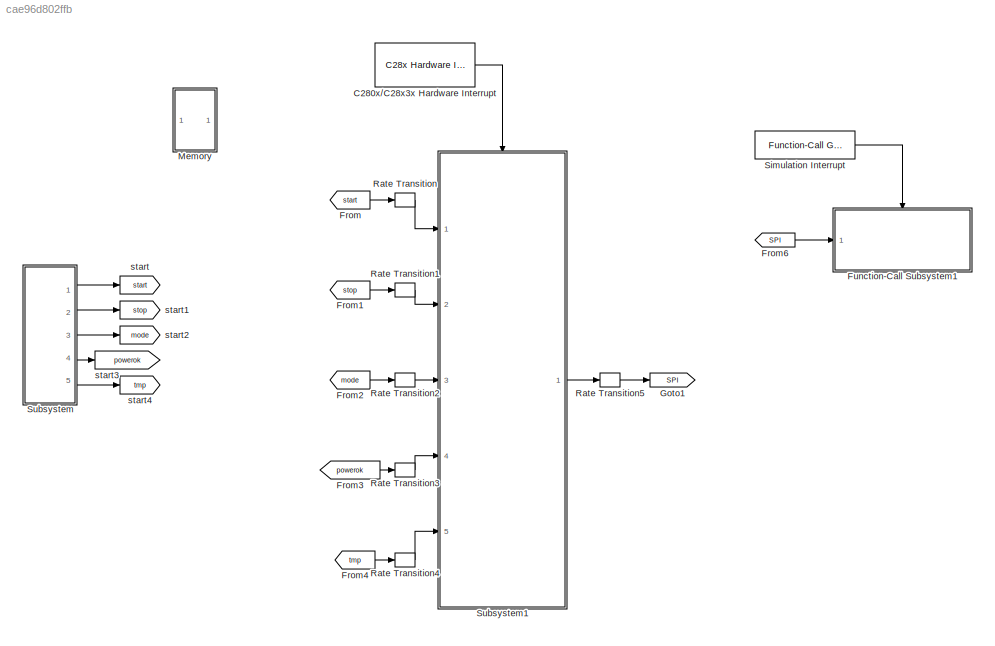
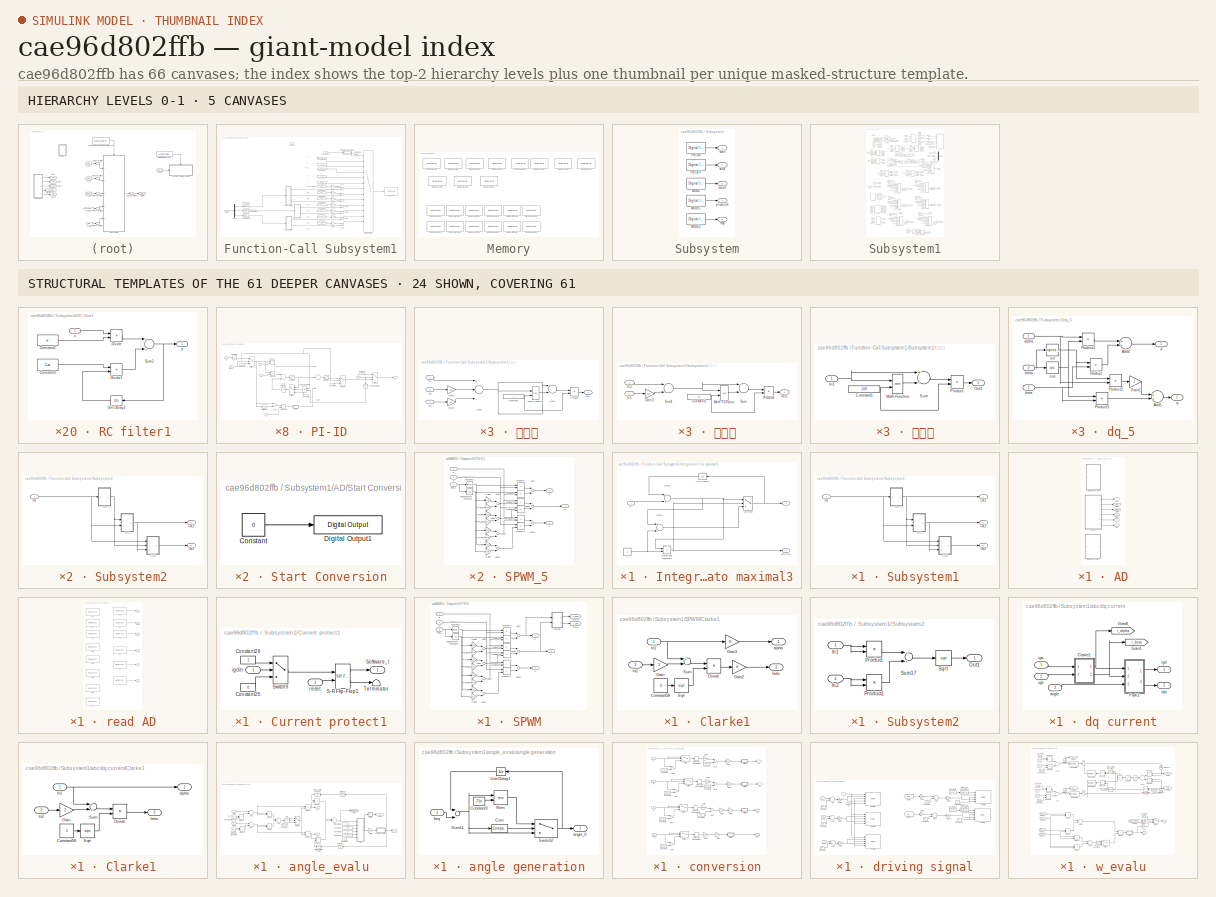
[diagram: thumbnail index - top-2 hierarchy levels (5 canvases) + 24 structural-template representatives of the remaining 61 canvases]
MODEL slx_cae96d802ffb
KIND model
CONFIG AbsTol = auto
CONFIG EnableMultiTasking = on
CONFIG FixedStep = Auto
CONFIG MaxStep = auto
CONFIG MinStep = auto
CONFIG RelTol = 1e-3
CONFIG SampleTimeConstraint = Unconstrained
CONFIG Solver = FixedStepDiscrete
CONFIG SolverName = FixedStepDiscrete
CONFIG StartTime = 0.0
CONFIG StopTime = Inf
WORKSPACE source: MAT-file member
WORKSPACE encoderResolution = 4096
WORKSPACE indexOffset = 0
BLOCK [Reference] C280x//C28x3x Hardware Interrupt  REF=c2000lib/Scheduling/C28x Hardware Interrupt
  Ports = [0, 1]
  SourceBlock = c2000lib/Scheduling/C28x Hardware Interrupt
  SourceProductBaseCode = TIC2000
  SourceProductName = Embedded Coder Support Package for Texas Instruments C2000 Processors
  SourceType = C28x Interrupt Block
BLOCK [From] From
  GotoTag = start
BLOCK [From] From1
  GotoTag = stop
BLOCK [From] From2
  GotoTag = mode
BLOCK [From] From3
  GotoTag = powerok
BLOCK [From] From4
  GotoTag = tmp
BLOCK [From] From6
  GotoTag = SPI
BLOCK [SubSystem] Function-Call Subsystem1
  Ports = [1, 0, 0, 1]
  RequestExecContextInheritance = off
  TreatAsAtomicUnit = on
BLOCK [Constant] Function-Call Subsystem1/Constant10
  OutDataTypeStr = uint16
BLOCK [Constant] Function-Call Subsystem1/Constant12
  OutDataTypeStr = uint16
  Value = 256
BLOCK [Constant] Function-Call Subsystem1/Constant14
  OutDataTypeStr = uint16
  Value = 256
BLOCK [Constant] Function-Call Subsystem1/Constant19
  OutDataTypeStr = uint16
  Value = 2823
BLOCK [Constant] Function-Call Subsystem1/Constant2
  OutDataTypeStr = uint16
  Value = 256
BLOCK [Constant] Function-Call Subsystem1/Constant20
  OutDataTypeStr = uint16
  Value = 3840
BLOCK [Constant] Function-Call Subsystem1/Constant28
  OutDataTypeStr = uint16
  Value = 256
BLOCK [Constant] Function-Call Subsystem1/Constant35
  OutDataTypeStr = uint16
  Value = 3073
BLOCK [Constant] Function-Call Subsystem1/Constant36
  OutDataTypeStr = uint16
  Value = 2566
BLOCK [Constant] Function-Call Subsystem1/Constant4
  OutDataTypeStr = uint16
  Value = 2559
BLOCK [Constant] Function-Call Subsystem1/Constant5
  OutDataTypeStr = uint16
  Value = 256
BLOCK [Constant] Function-Call Subsystem1/Constant7
  OutDataTypeStr = uint16
  Value = 256
BLOCK [Constant] Function-Call Subsystem1/Constant8
  OutDataTypeStr = uint16
  Value = 256
BLOCK [DataTypeConversion] Function-Call Subsystem1/Data Type Conversion
  OutDataTypeStr = uint16
  RndMeth = Floor
  SaturateOnIntegerOverflow = off
BLOCK [DataTypeConversion] Function-Call Subsystem1/Data Type Conversion1
  OutDataTypeStr = uint16
  RndMeth = Floor
  SaturateOnIntegerOverflow = off
BLOCK [DataTypeConversion] Function-Call Subsystem1/Data Type Conversion2
  OutDataTypeStr = uint16
  RndMeth = Floor
  SaturateOnIntegerOverflow = off
BLOCK [Demux] Function-Call Subsystem1/Demux
  DisplayOption = bar
  Outputs = 3
  Ports = [1, 3]
BLOCK [Gain] Function-Call Subsystem1/Gain1
  Gain = 2
  OutDataTypeStr = Inherit: Inherit via internal rule
  ParamDataTypeStr = Inherit: Inherit via internal rule
  SaturateOnIntegerOverflow = off
BLOCK [Gain] Function-Call Subsystem1/Gain2
  OutDataTypeStr = Inherit: Inherit via internal rule
  ParamDataTypeStr = Inherit: Inherit via internal rule
  SaturateOnIntegerOverflow = off
BLOCK [Gain] Function-Call Subsystem1/Gain3
  Gain = 3
  OutDataTypeStr = Inherit: Inherit via internal rule
  ParamDataTypeStr = Inherit: Inherit via internal rule
  SaturateOnIntegerOverflow = off
BLOCK [Gain] Function-Call Subsystem1/Gain4
  Gain = 4
  OutDataTypeStr = Inherit: Inherit via internal rule
  ParamDataTypeStr = Inherit: Inherit via internal rule
  SaturateOnIntegerOverflow = off
BLOCK [Gain] Function-Call Subsystem1/Gain5
  Gain = 5
  OutDataTypeStr = Inherit: Inherit via internal rule
  ParamDataTypeStr = Inherit: Inherit via internal rule
  SaturateOnIntegerOverflow = off
BLOCK [Gain] Function-Call Subsystem1/Gain6
  Gain = 6
  OutDataTypeStr = Inherit: Inherit via internal rule
  ParamDataTypeStr = Inherit: Inherit via internal rule
  SaturateOnIntegerOverflow = off
BLOCK [Gain] Function-Call Subsystem1/Gain7
  Gain = 7
  OutDataTypeStr = Inherit: Inherit via internal rule
  ParamDataTypeStr = Inherit: Inherit via internal rule
  SaturateOnIntegerOverflow = off
BLOCK [SubSystem] Function-Call Subsystem1/Integration 0 to maximal3
  Ports = [1, 2]
  RequestExecContextInheritance = off
BLOCK [Constant] Function-Call Subsystem1/Integration 0 to maximal3/3
  OutDataTypeStr = fixdt(1,32,16)
  Value = a
BLOCK [RelationalOperator] Function-Call Subsystem1/Integration 0 to maximal3/Relational Operator1
  InputSameDT = off
  Operator = <=
  Ports = [2, 1]
BLOCK [Sum] Function-Call Subsystem1/Integration 0 to maximal3/Sum1
  InputSameDT = off
  Inputs = +-
  OutDataTypeStr = Inherit: Inherit via internal rule
  Ports = [2, 1]
  SaturateOnIntegerOverflow = off
BLOCK [Sum] Function-Call Subsystem1/Integration 0 to maximal3/Sum2
  InputSameDT = off
  OutDataTypeStr = Inherit: Inherit via internal rule
  Ports = [2, 1]
  SaturateOnIntegerOverflow = off
BLOCK [Switch] Function-Call Subsystem1/Integration 0 to maximal3/Switch2
  Criteria = u2 > Threshold
BLOCK [UnitDelay] Function-Call Subsystem1/Integration 0 to maximal3/Unit Delay1
  InputProcessing = Elements as channels (sample based)
  SampleTime = -1
BLOCK [Outport] Function-Call Subsystem1/Integration 0 to maximal3/Zero Trig
  IconDisplay = Port number
  Port = 2
BLOCK [Inport] Function-Call Subsystem1/Integration 0 to maximal3/x
  IconDisplay = Port number
BLOCK [Outport] Function-Call Subsystem1/Integration 0 to maximal3/y
  IconDisplay = Port number
BLOCK [MultiPortSwitch] Function-Call Subsystem1/Multiport Switch
  DataPortForDefault = Additional data port
  InputSameDT = off
  Inputs = 12
  OutDataTypeStr = uint16
  Ports = [14, 1]
  SaturateOnIntegerOverflow = off
BLOCK [Reference] Function-Call Subsystem1/SPI Transmit  REF=c280xlib/SPI Transmit
  Ports = [1, 1]
  SourceBlock = c280xlib/SPI Transmit
  SourceProductBaseCode = TIC2000
  SourceProductName = Embedded Coder Support Package for Texas Instruments C2000 Processors
  SourceType = codertarget.tic2000.blocks.SPIWrite
BLOCK [Inport] Function-Call Subsystem1/SPI2
  IconDisplay = Port number
BLOCK [SubSystem] Function-Call Subsystem1/Subsystem1
  Ports = [1, 3]
  RequestExecContextInheritance = off
BLOCK [Inport] Function-Call Subsystem1/Subsystem1/In1
  IconDisplay = Port number
BLOCK [Outport] Function-Call Subsystem1/Subsystem1/Out1
  IconDisplay = Port number
BLOCK [Outport] Function-Call Subsystem1/Subsystem1/Out2
  IconDisplay = Port number
  Port = 2
BLOCK [Outport] Function-Call Subsystem1/Subsystem1/Out3
  IconDisplay = Port number
  Port = 3
BLOCK [SubSystem] Function-Call Subsystem1/Subsystem1/求个位
  Ports = [3, 1]
  RequestExecContextInheritance = off
BLOCK [Constant] Function-Call Subsystem1/Subsystem1/求个位/Constant1
  OutDataTypeStr = uint16
BLOCK [Gain] Function-Call Subsystem1/Subsystem1/求个位/Gain
  Gain = 100
  OutDataTypeStr = Inherit: Inherit via internal rule
  ParamDataTypeStr = Inherit: Inherit via internal rule
  SaturateOnIntegerOverflow = off
BLOCK [Gain] Function-Call Subsystem1/Subsystem1/求个位/Gain1
  Gain = 10
  OutDataTypeStr = Inherit: Inherit via internal rule
  ParamDataTypeStr = Inherit: Inherit via internal rule
  SaturateOnIntegerOverflow = off
BLOCK [Inport] Function-Call Subsystem1/Subsystem1/求个位/In1
  IconDisplay = Port number
BLOCK [Inport] Function-Call Subsystem1/Subsystem1/求个位/In2
  IconDisplay = Port number
  Port = 2
BLOCK [Inport] Function-Call Subsystem1/Subsystem1/求个位/In3
  IconDisplay = Port number
  Port = 3
BLOCK [Math] Function-Call Subsystem1/Subsystem1/求个位/Math Function
  Operator = rem
  Ports = [2, 1]
BLOCK [Outport] Function-Call Subsystem1/Subsystem1/求个位/Out1
  IconDisplay = Port number
BLOCK [Product] Function-Call Subsystem1/Subsystem1/求个位/Product
  InputSameDT = off
  Inputs = */
  OutDataTypeStr = Inherit: Inherit via internal rule
  Ports = [2, 1]
  RndMeth = Floor
  SaturateOnIntegerOverflow = off
BLOCK [Sum] Function-Call Subsystem1/Subsystem1/求个位/Sum
  AccumDataTypeStr = uint16
  InputSameDT = off
  Inputs = +--
  OutDataTypeStr = uint16
  Ports = [3, 1]
  SaturateOnIntegerOverflow = off
BLOCK [Sum] Function-Call Subsystem1/Subsystem1/求个位/Sum1
  InputSameDT = off
  Inputs = +-
  OutDataTypeStr = Inherit: Inherit via internal rule
  Ports = [2, 1]
  SaturateOnIntegerOverflow = off
BLOCK [SubSystem] Function-Call Subsystem1/Subsystem1/求十位
  Ports = [2, 1]
  RequestExecContextInheritance = off
BLOCK [Constant] Function-Call Subsystem1/Subsystem1/求十位/Constant1
  OutDataTypeStr = uint16
  Value = 10
BLOCK [Gain] Function-Call Subsystem1/Subsystem1/求十位/Gain1
  Gain = 100
  OutDataTypeStr = Inherit: Inherit via internal rule
  ParamDataTypeStr = Inherit: Inherit via internal rule
  SaturateOnIntegerOverflow = off
BLOCK [Inport] Function-Call Subsystem1/Subsystem1/求十位/In1
  IconDisplay = Port number
BLOCK [Inport] Function-Call Subsystem1/Subsystem1/求十位/In2
  IconDisplay = Port number
  Port = 2
BLOCK [Math] Function-Call Subsystem1/Subsystem1/求十位/Math Function
  Operator = rem
  Ports = [2, 1]
BLOCK [Outport] Function-Call Subsystem1/Subsystem1/求十位/Out1
  IconDisplay = Port number
BLOCK [Product] Function-Call Subsystem1/Subsystem1/求十位/Product
  InputSameDT = off
  Inputs = */
  OutDataTypeStr = Inherit: Inherit via internal rule
  Ports = [2, 1]
  RndMeth = Floor
  SaturateOnIntegerOverflow = off
BLOCK [Sum] Function-Call Subsystem1/Subsystem1/求十位/Sum
  InputSameDT = off
  Inputs = +-
  OutDataTypeStr = Inherit: Inherit via internal rule
  Ports = [2, 1]
  SaturateOnIntegerOverflow = off
BLOCK [Sum] Function-Call Subsystem1/Subsystem1/求十位/Sum1
  InputSameDT = off
  Inputs = +-
  OutDataTypeStr = uint16
  Ports = [2, 1]
  SaturateOnIntegerOverflow = off
BLOCK [SubSystem] Function-Call Subsystem1/Subsystem1/求百位
  Ports = [1, 1]
  RequestExecContextInheritance = off
BLOCK [Constant] Function-Call Subsystem1/Subsystem1/求百位/Constant1
  OutDataTypeStr = uint16
  Value = 100
BLOCK [Inport] Function-Call Subsystem1/Subsystem1/求百位/In1
  IconDisplay = Port number
BLOCK [Math] Function-Call Subsystem1/Subsystem1/求百位/Math Function
  Operator = rem
  Ports = [2, 1]
BLOCK [Outport] Function-Call Subsystem1/Subsystem1/求百位/Out1
  IconDisplay = Port number
BLOCK [Product] Function-Call Subsystem1/Subsystem1/求百位/Product
  InputSameDT = off
  Inputs = */
  OutDataTypeStr = Inherit: Inherit via internal rule
  Ports = [2, 1]
  RndMeth = Floor
  SaturateOnIntegerOverflow = off
BLOCK [Sum] Function-Call Subsystem1/Subsystem1/求百位/Sum
  InputSameDT = off
  Inputs = +-
  OutDataTypeStr = Inherit: Inherit via internal rule
  Ports = [2, 1]
  SaturateOnIntegerOverflow = off
BLOCK [SubSystem] Function-Call Subsystem1/Subsystem2
  Ports = [1, 2]
  RequestExecContextInheritance = off
BLOCK [Inport] Function-Call Subsystem1/Subsystem2/In1
  IconDisplay = Port number
BLOCK [Outport] Function-Call Subsystem1/Subsystem2/Out2
  IconDisplay = Port number
BLOCK [Outport] Function-Call Subsystem1/Subsystem2/Out3
  IconDisplay = Port number
  Port = 2
BLOCK [SubSystem] Function-Call Subsystem1/Subsystem2/求个位
  Ports = [3, 1]
  RequestExecContextInheritance = off
BLOCK [Constant] Function-Call Subsystem1/Subsystem2/求个位/Constant1
  OutDataTypeStr = uint16
BLOCK [Gain] Function-Call Subsystem1/Subsystem2/求个位/Gain
  Gain = 100
  OutDataTypeStr = Inherit: Inherit via internal rule
  ParamDataTypeStr = Inherit: Inherit via internal rule
  SaturateOnIntegerOverflow = off
BLOCK [Gain] Function-Call Subsystem1/Subsystem2/求个位/Gain1
  Gain = 10
  OutDataTypeStr = Inherit: Inherit via internal rule
  ParamDataTypeStr = Inherit: Inherit via internal rule
  SaturateOnIntegerOverflow = off
BLOCK [Inport] Function-Call Subsystem1/Subsystem2/求个位/In1
  IconDisplay = Port number
BLOCK [Inport] Function-Call Subsystem1/Subsystem2/求个位/In2
  IconDisplay = Port number
  Port = 2
BLOCK [Inport] Function-Call Subsystem1/Subsystem2/求个位/In3
  IconDisplay = Port number
  Port = 3
BLOCK [Math] Function-Call Subsystem1/Subsystem2/求个位/Math Function
  Operator = rem
  Ports = [2, 1]
BLOCK [Outport] Function-Call Subsystem1/Subsystem2/求个位/Out1
  IconDisplay = Port number
BLOCK [Product] Function-Call Subsystem1/Subsystem2/求个位/Product
  InputSameDT = off
  Inputs = */
  OutDataTypeStr = Inherit: Inherit via internal rule
  Ports = [2, 1]
  RndMeth = Floor
  SaturateOnIntegerOverflow = off
BLOCK [Sum] Function-Call Subsystem1/Subsystem2/求个位/Sum
  AccumDataTypeStr = uint16
  InputSameDT = off
  Inputs = +--
  OutDataTypeStr = uint16
  Ports = [3, 1]
  SaturateOnIntegerOverflow = off
BLOCK [Sum] Function-Call Subsystem1/Subsystem2/求个位/Sum1
  InputSameDT = off
  Inputs = +-
  OutDataTypeStr = Inherit: Inherit via internal rule
  Ports = [2, 1]
  SaturateOnIntegerOverflow = off
BLOCK [SubSystem] Function-Call Subsystem1/Subsystem2/求十位
  Ports = [2, 1]
  RequestExecContextInheritance = off
BLOCK [Constant] Function-Call Subsystem1/Subsystem2/求十位/Constant1
  OutDataTypeStr = uint16
  Value = 10
BLOCK [Gain] Function-Call Subsystem1/Subsystem2/求十位/Gain1
  Gain = 100
  OutDataTypeStr = Inherit: Inherit via internal rule
  ParamDataTypeStr = Inherit: Inherit via internal rule
  SaturateOnIntegerOverflow = off
BLOCK [Inport] Function-Call Subsystem1/Subsystem2/求十位/In1
  IconDisplay = Port number
BLOCK [Inport] Function-Call Subsystem1/Subsystem2/求十位/In2
  IconDisplay = Port number
  Port = 2
BLOCK [Math] Function-Call Subsystem1/Subsystem2/求十位/Math Function
  Operator = rem
  Ports = [2, 1]
BLOCK [Outport] Function-Call Subsystem1/Subsystem2/求十位/Out1
  IconDisplay = Port number
BLOCK [Product] Function-Call Subsystem1/Subsystem2/求十位/Product
  InputSameDT = off
  Inputs = */
  OutDataTypeStr = Inherit: Inherit via internal rule
  Ports = [2, 1]
  RndMeth = Floor
  SaturateOnIntegerOverflow = off
BLOCK [Sum] Function-Call Subsystem1/Subsystem2/求十位/Sum
  InputSameDT = off
  Inputs = +-
  OutDataTypeStr = Inherit: Inherit via internal rule
  Ports = [2, 1]
  SaturateOnIntegerOverflow = off
BLOCK [Sum] Function-Call Subsystem1/Subsystem2/求十位/Sum1
  InputSameDT = off
  Inputs = +-
  OutDataTypeStr = uint16
  Ports = [2, 1]
  SaturateOnIntegerOverflow = off
BLOCK [SubSystem] Function-Call Subsystem1/Subsystem2/求百位
  Ports = [1, 1]
  RequestExecContextInheritance = off
BLOCK [Constant] Function-Call Subsystem1/Subsystem2/求百位/Constant1
  OutDataTypeStr = uint16
  Value = 100
BLOCK [Inport] Function-Call Subsystem1/Subsystem2/求百位/In1
  IconDisplay = Port number
BLOCK [Math] Function-Call Subsystem1/Subsystem2/求百位/Math Function
  Operator = rem
  Ports = [2, 1]
BLOCK [Outport] Function-Call Subsystem1/Subsystem2/求百位/Out1
  IconDisplay = Port number
BLOCK [Product] Function-Call Subsystem1/Subsystem2/求百位/Product
  InputSameDT = off
  Inputs = */
  OutDataTypeStr = Inherit: Inherit via internal rule
  Ports = [2, 1]
  RndMeth = Floor
  SaturateOnIntegerOverflow = off
BLOCK [Sum] Function-Call Subsystem1/Subsystem2/求百位/Sum
  InputSameDT = off
  Inputs = +-
  OutDataTypeStr = Inherit: Inherit via internal rule
  Ports = [2, 1]
  SaturateOnIntegerOverflow = off
BLOCK [SubSystem] Function-Call Subsystem1/Subsystem3
  Ports = [1, 2]
  RequestExecContextInheritance = off
BLOCK [Inport] Function-Call Subsystem1/Subsystem3/In1
  IconDisplay = Port number
BLOCK [Outport] Function-Call Subsystem1/Subsystem3/Out2
  IconDisplay = Port number
BLOCK [Outport] Function-Call Subsystem1/Subsystem3/Out3
  IconDisplay = Port number
  Port = 2
BLOCK [SubSystem] Function-Call Subsystem1/Subsystem3/求个位
  Ports = [3, 1]
  RequestExecContextInheritance = off
BLOCK [Constant] Function-Call Subsystem1/Subsystem3/求个位/Constant1
  OutDataTypeStr = uint16
BLOCK [Gain] Function-Call Subsystem1/Subsystem3/求个位/Gain
  Gain = 100
  OutDataTypeStr = Inherit: Inherit via internal rule
  ParamDataTypeStr = Inherit: Inherit via internal rule
  SaturateOnIntegerOverflow = off
BLOCK [Gain] Function-Call Subsystem1/Subsystem3/求个位/Gain1
  Gain = 10
  OutDataTypeStr = Inherit: Inherit via internal rule
  ParamDataTypeStr = Inherit: Inherit via internal rule
  SaturateOnIntegerOverflow = off
BLOCK [Inport] Function-Call Subsystem1/Subsystem3/求个位/In1
  IconDisplay = Port number
BLOCK [Inport] Function-Call Subsystem1/Subsystem3/求个位/In2
  IconDisplay = Port number
  Port = 2
BLOCK [Inport] Function-Call Subsystem1/Subsystem3/求个位/In3
  IconDisplay = Port number
  Port = 3
BLOCK [Math] Function-Call Subsystem1/Subsystem3/求个位/Math Function
  Operator = rem
  Ports = [2, 1]
BLOCK [Outport] Function-Call Subsystem1/Subsystem3/求个位/Out1
  IconDisplay = Port number
BLOCK [Product] Function-Call Subsystem1/Subsystem3/求个位/Product
  InputSameDT = off
  Inputs = */
  OutDataTypeStr = Inherit: Inherit via internal rule
  Ports = [2, 1]
  RndMeth = Floor
  SaturateOnIntegerOverflow = off
BLOCK [Sum] Function-Call Subsystem1/Subsystem3/求个位/Sum
  AccumDataTypeStr = uint16
  InputSameDT = off
  Inputs = +--
  OutDataTypeStr = uint16
  Ports = [3, 1]
  SaturateOnIntegerOverflow = off
BLOCK [Sum] Function-Call Subsystem1/Subsystem3/求个位/Sum1
  InputSameDT = off
  Inputs = +-
  OutDataTypeStr = Inherit: Inherit via internal rule
  Ports = [2, 1]
  SaturateOnIntegerOverflow = off
BLOCK [SubSystem] Function-Call Subsystem1/Subsystem3/求十位
  Ports = [2, 1]
  RequestExecContextInheritance = off
BLOCK [Constant] Function-Call Subsystem1/Subsystem3/求十位/Constant1
  OutDataTypeStr = uint16
  Value = 10
BLOCK [Gain] Function-Call Subsystem1/Subsystem3/求十位/Gain1
  Gain = 100
  OutDataTypeStr = Inherit: Inherit via internal rule
  ParamDataTypeStr = Inherit: Inherit via internal rule
  SaturateOnIntegerOverflow = off
BLOCK [Inport] Function-Call Subsystem1/Subsystem3/求十位/In1
  IconDisplay = Port number
BLOCK [Inport] Function-Call Subsystem1/Subsystem3/求十位/In2
  IconDisplay = Port number
  Port = 2
BLOCK [Math] Function-Call Subsystem1/Subsystem3/求十位/Math Function
  Operator = rem
  Ports = [2, 1]
BLOCK [Outport] Function-Call Subsystem1/Subsystem3/求十位/Out1
  IconDisplay = Port number
BLOCK [Product] Function-Call Subsystem1/Subsystem3/求十位/Product
  InputSameDT = off
  Inputs = */
  OutDataTypeStr = Inherit: Inherit via internal rule
  Ports = [2, 1]
  RndMeth = Floor
  SaturateOnIntegerOverflow = off
BLOCK [Sum] Function-Call Subsystem1/Subsystem3/求十位/Sum
  InputSameDT = off
  Inputs = +-
  OutDataTypeStr = Inherit: Inherit via internal rule
  Ports = [2, 1]
  SaturateOnIntegerOverflow = off
BLOCK [Sum] Function-Call Subsystem1/Subsystem3/求十位/Sum1
  InputSameDT = off
  Inputs = +-
  OutDataTypeStr = uint16
  Ports = [2, 1]
  SaturateOnIntegerOverflow = off
BLOCK [SubSystem] Function-Call Subsystem1/Subsystem3/求百位
  Ports = [1, 1]
  RequestExecContextInheritance = off
BLOCK [Constant] Function-Call Subsystem1/Subsystem3/求百位/Constant1
  OutDataTypeStr = uint16
  Value = 100
BLOCK [Inport] Function-Call Subsystem1/Subsystem3/求百位/In1
  IconDisplay = Port number
BLOCK [Math] Function-Call Subsystem1/Subsystem3/求百位/Math Function
  Operator = rem
  Ports = [2, 1]
BLOCK [Outport] Function-Call Subsystem1/Subsystem3/求百位/Out1
  IconDisplay = Port number
BLOCK [Product] Function-Call Subsystem1/Subsystem3/求百位/Product
  InputSameDT = off
  Inputs = */
  OutDataTypeStr = Inherit: Inherit via internal rule
  Ports = [2, 1]
  RndMeth = Floor
  SaturateOnIntegerOverflow = off
BLOCK [Sum] Function-Call Subsystem1/Subsystem3/求百位/Sum
  InputSameDT = off
  Inputs = +-
  OutDataTypeStr = Inherit: Inherit via internal rule
  Ports = [2, 1]
  SaturateOnIntegerOverflow = off
BLOCK [Sum] Function-Call Subsystem1/Sum1
  InputSameDT = off
  OutDataTypeStr = Inherit: Inherit via internal rule
  Ports = [2, 1]
  SaturateOnIntegerOverflow = off
BLOCK [Sum] Function-Call Subsystem1/Sum2
  InputSameDT = off
  OutDataTypeStr = Inherit: Inherit via internal rule
  Ports = [2, 1]
  SaturateOnIntegerOverflow = off
BLOCK [Sum] Function-Call Subsystem1/Sum3
  InputSameDT = off
  OutDataTypeStr = Inherit: Inherit via internal rule
  Ports = [2, 1]
  SaturateOnIntegerOverflow = off
BLOCK [Sum] Function-Call Subsystem1/Sum4
  InputSameDT = off
  OutDataTypeStr = Inherit: Inherit via internal rule
  Ports = [2, 1]
  SaturateOnIntegerOverflow = off
BLOCK [Sum] Function-Call Subsystem1/Sum5
  InputSameDT = off
  OutDataTypeStr = Inherit: Inherit via internal rule
  Ports = [2, 1]
  SaturateOnIntegerOverflow = off
BLOCK [Sum] Function-Call Subsystem1/Sum6
  InputSameDT = off
  OutDataTypeStr = Inherit: Inherit via internal rule
  Ports = [2, 1]
  SaturateOnIntegerOverflow = off
BLOCK [Sum] Function-Call Subsystem1/Sum7
  InputSameDT = off
  OutDataTypeStr = Inherit: Inherit via internal rule
  Ports = [2, 1]
  SaturateOnIntegerOverflow = off
BLOCK [Terminator] Function-Call Subsystem1/Terminator4
BLOCK [TriggerPort] Function-Call Subsystem1/function
  Ports = []
  StatesWhenEnabling = held
  TriggerType = function-call
  VariantControl = (inherit)
BLOCK [Goto] Goto1
  GotoTag = SPI
BLOCK [SubSystem] Memory
  Ports = []
  RequestExecContextInheritance = off
BLOCK [Reference] Memory/Memory Allocate  REF=idelinklib_common/Memory Allocate
  Ports = []
  SourceBlock = idelinklib_common/Memory Allocate
  SourceType = Memory Allocate
BLOCK [Reference] Memory/Memory Allocate1  REF=idelinklib_common/Memory Allocate
  Ports = []
  SourceBlock = idelinklib_common/Memory Allocate
  SourceType = Memory Allocate
BLOCK [Reference] Memory/Memory Allocate10  REF=idelinklib_common/Memory Allocate
  Ports = []
  SourceBlock = idelinklib_common/Memory Allocate
  SourceType = Memory Allocate
BLOCK [Reference] Memory/Memory Allocate11  REF=idelinklib_common/Memory Allocate
  Ports = []
  SourceBlock = idelinklib_common/Memory Allocate
  SourceType = Memory Allocate
BLOCK [Reference] Memory/Memory Allocate12  REF=idelinklib_common/Memory Allocate
  Ports = []
  SourceBlock = idelinklib_common/Memory Allocate
  SourceType = Memory Allocate
BLOCK [Reference] Memory/Memory Allocate13  REF=idelinklib_common/Memory Allocate
  Ports = []
  SourceBlock = idelinklib_common/Memory Allocate
  SourceType = Memory Allocate
BLOCK [Reference] Memory/Memory Allocate14  REF=idelinklib_common/Memory Allocate
  Ports = []
  SourceBlock = idelinklib_common/Memory Allocate
  SourceType = Memory Allocate
BLOCK [Reference] Memory/Memory Allocate15  REF=idelinklib_common/Memory Allocate
  Ports = []
  SourceBlock = idelinklib_common/Memory Allocate
  SourceType = Memory Allocate
BLOCK [Reference] Memory/Memory Allocate16  REF=idelinklib_common/Memory Allocate
  Ports = []
  SourceBlock = idelinklib_common/Memory Allocate
  SourceType = Memory Allocate
BLOCK [Reference] Memory/Memory Allocate17  REF=idelinklib_common/Memory Allocate
  Ports = []
  SourceBlock = idelinklib_common/Memory Allocate
  SourceType = Memory Allocate
BLOCK [Reference] Memory/Memory Allocate18  REF=idelinklib_common/Memory Allocate
  Ports = []
  SourceBlock = idelinklib_common/Memory Allocate
  SourceType = Memory Allocate
BLOCK [Reference] Memory/Memory Allocate19  REF=idelinklib_common/Memory Allocate
  Ports = []
  SourceBlock = idelinklib_common/Memory Allocate
  SourceType = Memory Allocate
BLOCK [Reference] Memory/Memory Allocate2  REF=idelinklib_common/Memory Allocate
  Ports = []
  SourceBlock = idelinklib_common/Memory Allocate
  SourceType = Memory Allocate
BLOCK [Reference] Memory/Memory Allocate20  REF=idelinklib_common/Memory Allocate
  Ports = []
  SourceBlock = idelinklib_common/Memory Allocate
  SourceType = Memory Allocate
BLOCK [Reference] Memory/Memory Allocate21  REF=idelinklib_common/Memory Allocate
  Ports = []
  SourceBlock = idelinklib_common/Memory Allocate
  SourceType = Memory Allocate
BLOCK [Reference] Memory/Memory Allocate22  REF=idelinklib_common/Memory Allocate
  Ports = []
  SourceBlock = idelinklib_common/Memory Allocate
  SourceType = Memory Allocate
BLOCK [Reference] Memory/Memory Allocate3  REF=idelinklib_common/Memory Allocate
  Ports = []
  SourceBlock = idelinklib_common/Memory Allocate
  SourceType = Memory Allocate
BLOCK [Reference] Memory/Memory Allocate4  REF=idelinklib_common/Memory Allocate
  Ports = []
  SourceBlock = idelinklib_common/Memory Allocate
  SourceType = Memory Allocate
BLOCK [Reference] Memory/Memory Allocate5  REF=idelinklib_common/Memory Allocate
  Ports = []
  SourceBlock = idelinklib_common/Memory Allocate
  SourceType = Memory Allocate
BLOCK [Reference] Memory/Memory Allocate6  REF=idelinklib_common/Memory Allocate
  Ports = []
  SourceBlock = idelinklib_common/Memory Allocate
  SourceType = Memory Allocate
BLOCK [Reference] Memory/Memory Allocate7  REF=idelinklib_common/Memory Allocate
  Ports = []
  SourceBlock = idelinklib_common/Memory Allocate
  SourceType = Memory Allocate
BLOCK [Reference] Memory/Memory Allocate8  REF=idelinklib_common/Memory Allocate
  Ports = []
  SourceBlock = idelinklib_common/Memory Allocate
  SourceType = Memory Allocate
BLOCK [Reference] Memory/Memory Allocate9  REF=idelinklib_common/Memory Allocate
  Ports = []
  SourceBlock = idelinklib_common/Memory Allocate
  SourceType = Memory Allocate
BLOCK [RateTransition] Rate Transition
  Integrity = off
BLOCK [RateTransition] Rate Transition1
  Integrity = off
BLOCK [RateTransition] Rate Transition2
  Integrity = off
BLOCK [RateTransition] Rate Transition3
  Integrity = off
BLOCK [RateTransition] Rate Transition4
  Integrity = off
BLOCK [RateTransition] Rate Transition5
  Integrity = off
BLOCK [Reference] Simulation Interrupt  REF=simulink/Ports &
Subsystems/Function-Call
Generator
  Ports = [0, 1]
  SourceBlock = simulink/Ports &\nSubsystems/Function-Call\nGenerator
  SourceProductBaseCode = SL
  SourceProductName = Simulink
  SourceType = Function-Call Generator
BLOCK [SubSystem] Subsystem
  Ports = [0, 5]
  RequestExecContextInheritance = off
BLOCK [Reference] Subsystem/MODE  REF=c2833xlib/Digital Input
  Ports = [0, 1]
  SourceBlock = c2833xlib/Digital Input
  SourceProductBaseCode = TIC2000
  SourceProductName = Embedded Coder Support Package for Texas Instruments C2000 Processors
  SourceType = C2833x GPIO Digital Input
  UserDataPersistent = on
BLOCK [Reference] Subsystem/MODE1  REF=c2833xlib/Digital Input
  Ports = [0, 1]
  SourceBlock = c2833xlib/Digital Input
  SourceProductBaseCode = TIC2000
  SourceProductName = Embedded Coder Support Package for Texas Instruments C2000 Processors
  SourceType = C2833x GPIO Digital Input
  UserDataPersistent = on
BLOCK [Reference] Subsystem/MODE2  REF=c2833xlib/Digital Input
  Ports = [0, 1]
  SourceBlock = c2833xlib/Digital Input
  SourceProductBaseCode = TIC2000
  SourceProductName = Embedded Coder Support Package for Texas Instruments C2000 Processors
  SourceType = C2833x GPIO Digital Input
  UserDataPersistent = on
BLOCK [Reference] Subsystem/PB-OFF  REF=c2833xlib/Digital Input
  Ports = [0, 1]
  SourceBlock = c2833xlib/Digital Input
  SourceProductBaseCode = TIC2000
  SourceProductName = Embedded Coder Support Package for Texas Instruments C2000 Processors
  SourceType = C2833x GPIO Digital Input
  UserDataPersistent = on
BLOCK [Reference] Subsystem/PB-ON  REF=c2833xlib/Digital Input
  Ports = [0, 1]
  SourceBlock = c2833xlib/Digital Input
  SourceProductBaseCode = TIC2000
  SourceProductName = Embedded Coder Support Package for Texas Instruments C2000 Processors
  SourceType = C2833x GPIO Digital Input
  UserDataPersistent = on
BLOCK [Outport] Subsystem/mode
  IconDisplay = Port number
  Port = 3
BLOCK [Outport] Subsystem/powerok
  IconDisplay = Port number
  Port = 4
BLOCK [Outport] Subsystem/start
  IconDisplay = Port number
BLOCK [Outport] Subsystem/stop
  IconDisplay = Port number
  Port = 2
BLOCK [Outport] Subsystem/tmp
  IconDisplay = Port number
  Port = 5
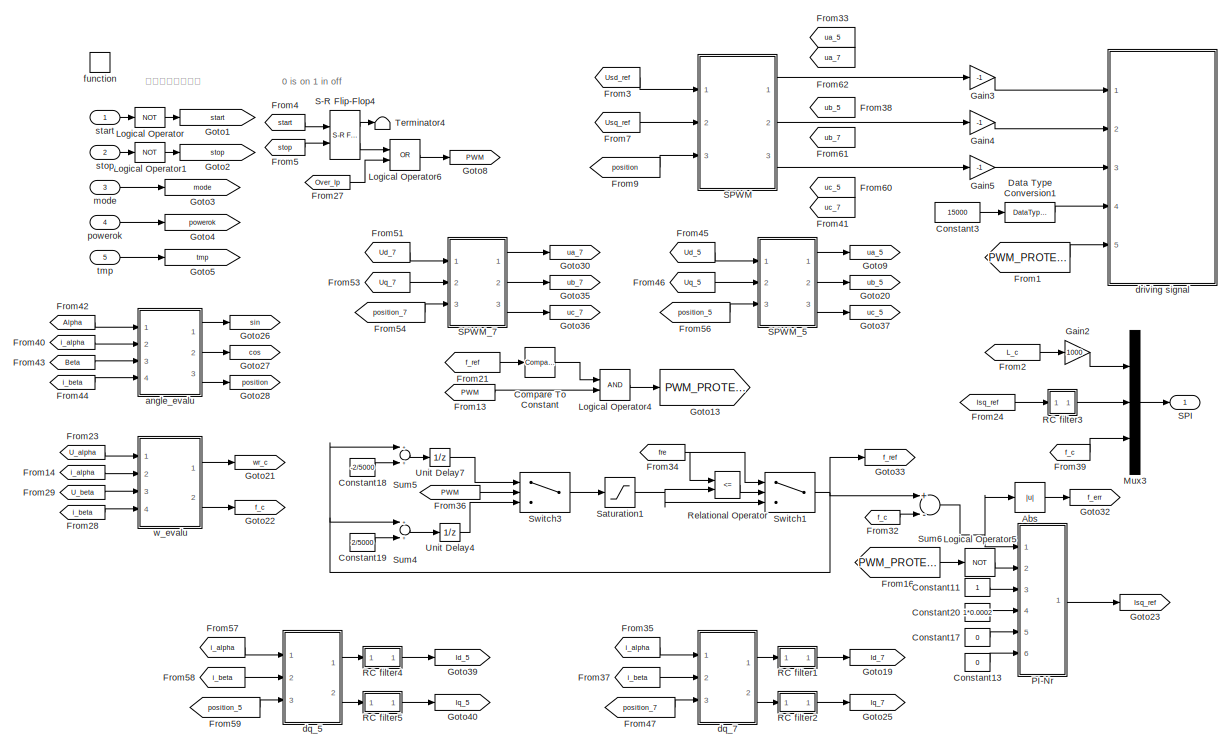
[diagram: Subsystem1 - part 1/2, full width, top band]
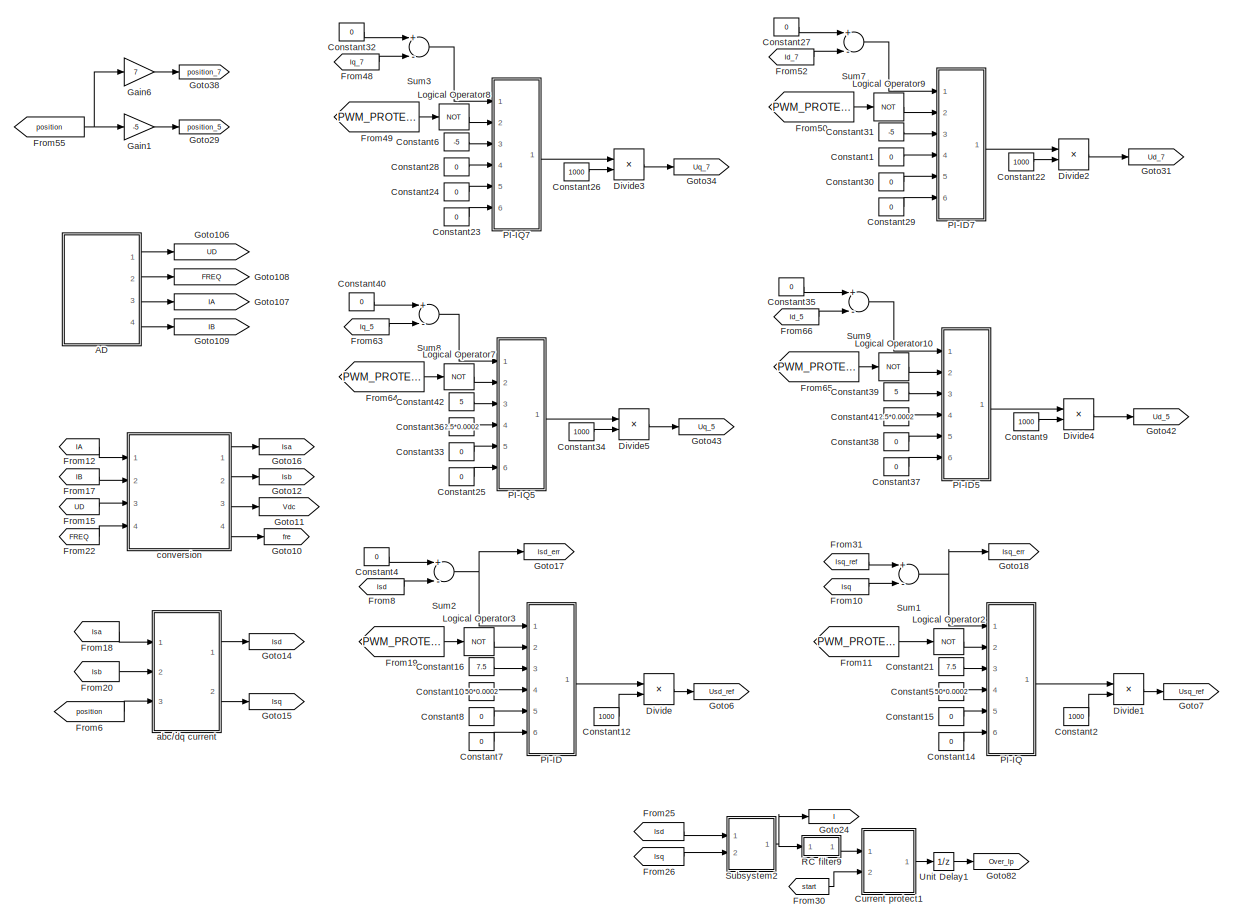
[diagram: Subsystem1 - part 2/2, full width, bottom band]
BLOCK [SubSystem] Subsystem1
  Ports = [5, 1, 0, 1]
  RequestExecContextInheritance = off
BLOCK [SubSystem] Subsystem1/AD
  Ports = [0, 4]
  RequestExecContextInheritance = off
BLOCK [Outport] Subsystem1/AD/FREQ
  IconDisplay = Port number
  Port = 2
BLOCK [Goto] Subsystem1/AD/Goto7
  GotoTag = UOUT
BLOCK [Goto] Subsystem1/AD/Goto9
  GotoTag = UOUT1
BLOCK [Outport] Subsystem1/AD/IA
  IconDisplay = Port number
  Port = 3
BLOCK [Outport] Subsystem1/AD/IB
  IconDisplay = Port number
  Port = 4
BLOCK [SubSystem] Subsystem1/AD/Start Conversion
  Ports = []
  Priority = 1
  RequestExecContextInheritance = off
BLOCK [Constant] Subsystem1/AD/Start Conversion/Constant
  OutDataTypeStr = boolean
  Value = 0
BLOCK [Reference] Subsystem1/AD/Start Conversion/Digital Output1  REF=c2833xlib/Digital Output
  Ports = [1]
  Priority = 1
  SourceBlock = c2833xlib/Digital Output
  SourceProductBaseCode = TIC2000
  SourceProductName = Embedded Coder Support Package for Texas Instruments C2000 Processors
  SourceType = C2833x GPIO Digital Output
  UserDataPersistent = on
BLOCK [SubSystem] Subsystem1/AD/Stop Conversion
  Ports = []
  Priority = 3
  RequestExecContextInheritance = off
BLOCK [Constant] Subsystem1/AD/Stop Conversion/Constant12
  OutDataTypeStr = boolean
BLOCK [Reference] Subsystem1/AD/Stop Conversion/Digital Output13  REF=c2833xlib/Digital Output
  Ports = [1]
  Priority = 8
  SourceBlock = c2833xlib/Digital Output
  SourceProductBaseCode = TIC2000
  SourceProductName = Embedded Coder Support Package for Texas Instruments C2000 Processors
  SourceType = C2833x GPIO Digital Output
  UserDataPersistent = on
BLOCK [Outport] Subsystem1/AD/UD
  IconDisplay = Port number
BLOCK [SubSystem] Subsystem1/AD/read AD
  Ports = [0, 6]
  RequestExecContextInheritance = off
BLOCK [Reference] Subsystem1/AD/read AD/CH0  REF=idelinklib_common/Memory Copy
  Ports = []
  SourceBlock = idelinklib_common/Memory Copy
  SourceType = Memory Copy
BLOCK [Reference] Subsystem1/AD/read AD/CH1  REF=idelinklib_common/Memory Copy
  Ports = []
  SourceBlock = idelinklib_common/Memory Copy
  SourceType = Memory Copy
BLOCK [Reference] Subsystem1/AD/read AD/CH2  REF=idelinklib_common/Memory Copy
  Ports = []
  SourceBlock = idelinklib_common/Memory Copy
  SourceType = Memory Copy
BLOCK [Reference] Subsystem1/AD/read AD/CH3  REF=idelinklib_common/Memory Copy
  Ports = []
  SourceBlock = idelinklib_common/Memory Copy
  SourceType = Memory Copy
BLOCK [Reference] Subsystem1/AD/read AD/CH4  REF=idelinklib_common/Memory Copy
  Ports = []
  SourceBlock = idelinklib_common/Memory Copy
  SourceType = Memory Copy
BLOCK [Reference] Subsystem1/AD/read AD/CH5  REF=idelinklib_common/Memory Copy
  Ports = []
  SourceBlock = idelinklib_common/Memory Copy
  SourceType = Memory Copy
BLOCK [Reference] Subsystem1/AD/read AD/CH6  REF=idelinklib_common/Memory Copy
  Ports = []
  SourceBlock = idelinklib_common/Memory Copy
  SourceType = Memory Copy
BLOCK [Reference] Subsystem1/AD/read AD/CH7  REF=idelinklib_common/Memory Copy
  Ports = []
  SourceBlock = idelinklib_common/Memory Copy
  SourceType = Memory Copy
BLOCK [Outport] Subsystem1/AD/read AD/FREQ
  IconDisplay = Port number
  Port = 4
BLOCK [Outport] Subsystem1/AD/read AD/IA
  IconDisplay = Port number
  Port = 5
BLOCK [Outport] Subsystem1/AD/read AD/IB
  IconDisplay = Port number
  Port = 6
BLOCK [Outport] Subsystem1/AD/read AD/UD
  IconDisplay = Port number
BLOCK [Outport] Subsystem1/AD/read AD/UOUT
  IconDisplay = Port number
  Port = 2
BLOCK [Outport] Subsystem1/AD/read AD/UOUT1
  IconDisplay = Port number
  Port = 3
BLOCK [Reference] Subsystem1/AD/read AD/p1  REF=idelinklib_common/Memory Copy
  Ports = [0, 1]
  SourceBlock = idelinklib_common/Memory Copy
  SourceType = Memory Copy
BLOCK [Reference] Subsystem1/AD/read AD/p2  REF=idelinklib_common/Memory Copy
  Ports = [0, 1]
  SourceBlock = idelinklib_common/Memory Copy
  SourceType = Memory Copy
BLOCK [Reference] Subsystem1/AD/read AD/p3  REF=idelinklib_common/Memory Copy
  Ports = [0, 1]
  SourceBlock = idelinklib_common/Memory Copy
  SourceType = Memory Copy
BLOCK [Reference] Subsystem1/AD/read AD/p5  REF=idelinklib_common/Memory Copy
  Ports = [0, 1]
  SourceBlock = idelinklib_common/Memory Copy
  SourceType = Memory Copy
BLOCK [Reference] Subsystem1/AD/read AD/p6  REF=idelinklib_common/Memory Copy
  Ports = [0, 1]
  SourceBlock = idelinklib_common/Memory Copy
  SourceType = Memory Copy
BLOCK [Reference] Subsystem1/AD/read AD/p7  REF=idelinklib_common/Memory Copy
  Ports = [0, 1]
  SourceBlock = idelinklib_common/Memory Copy
  SourceType = Memory Copy
BLOCK [Abs] Subsystem1/Abs
  SaturateOnIntegerOverflow = off
BLOCK [Reference] Subsystem1/Compare To Constant  REF=simulink/Logic and Bit
Operations/Compare
To Constant
  Ports = [1, 1]
  SourceBlock = simulink/Logic and Bit\nOperations/Compare\nTo Constant
  SourceProductBaseCode = SL
  SourceProductName = Simulink
  SourceType = Compare To Constant
BLOCK [Constant] Subsystem1/Constant1
  OutDataTypeStr = double
  Value = 0
BLOCK [Constant] Subsystem1/Constant10
  OutDataTypeStr = double
  Value = 50*0.0002
BLOCK [Constant] Subsystem1/Constant11
  OutDataTypeStr = double
BLOCK [Constant] Subsystem1/Constant12
  OutDataTypeStr = double
  Value = 1000
BLOCK [Constant] Subsystem1/Constant13
  OutDataTypeStr = double
  Value = 0
BLOCK [Constant] Subsystem1/Constant14
  OutDataTypeStr = double
  Value = 0
BLOCK [Constant] Subsystem1/Constant15
  OutDataTypeStr = double
  Value = 0
BLOCK [Constant] Subsystem1/Constant16
  OutDataTypeStr = double
  Value = 7.5
BLOCK [Constant] Subsystem1/Constant17
  OutDataTypeStr = double
  Value = 0
BLOCK [Constant] Subsystem1/Constant18
  OutDataTypeStr = double
  Value = -2/5000
BLOCK [Constant] Subsystem1/Constant19
  OutDataTypeStr = double
  Value = 2/5000
BLOCK [Constant] Subsystem1/Constant2
  OutDataTypeStr = double
  Value = 1000
BLOCK [Constant] Subsystem1/Constant20
  OutDataTypeStr = double
  Value = 1*0.0002
BLOCK [Constant] Subsystem1/Constant21
  OutDataTypeStr = double
  Value = 7.5
BLOCK [Constant] Subsystem1/Constant22
  OutDataTypeStr = double
  Value = 1000
BLOCK [Constant] Subsystem1/Constant23
  OutDataTypeStr = double
  Value = 0
BLOCK [Constant] Subsystem1/Constant24
  OutDataTypeStr = double
  Value = 0
BLOCK [Constant] Subsystem1/Constant25
  OutDataTypeStr = double
  Value = 0
BLOCK [Constant] Subsystem1/Constant26
  OutDataTypeStr = double
  Value = 1000
BLOCK [Constant] Subsystem1/Constant27
  OutDataTypeStr = double
  Value = 0
BLOCK [Constant] Subsystem1/Constant28
  OutDataTypeStr = double
  Value = 0
BLOCK [Constant] Subsystem1/Constant29
  OutDataTypeStr = double
  Value = 0
BLOCK [Constant] Subsystem1/Constant3
  OutDataTypeStr = int16
  Value = 15000
BLOCK [Constant] Subsystem1/Constant30
  OutDataTypeStr = double
  Value = 0
BLOCK [Constant] Subsystem1/Constant31
  OutDataTypeStr = double
  Value = -5
BLOCK [Constant] Subsystem1/Constant32
  OutDataTypeStr = double
  Value = 0
BLOCK [Constant] Subsystem1/Constant33
  OutDataTypeStr = double
  Value = 0
BLOCK [Constant] Subsystem1/Constant34
  OutDataTypeStr = double
  Value = 1000
BLOCK [Constant] Subsystem1/Constant35
  OutDataTypeStr = double
  Value = 0
BLOCK [Constant] Subsystem1/Constant36
  OutDataTypeStr = double
  Value = 2.5*0.0002
BLOCK [Constant] Subsystem1/Constant37
  OutDataTypeStr = double
  Value = 0
BLOCK [Constant] Subsystem1/Constant38
  OutDataTypeStr = double
  Value = 0
BLOCK [Constant] Subsystem1/Constant39
  OutDataTypeStr = double
  Value = 5
BLOCK [Constant] Subsystem1/Constant4
  OutDataTypeStr = double
  Value = 0
BLOCK [Constant] Subsystem1/Constant40
  OutDataTypeStr = double
  Value = 0
BLOCK [Constant] Subsystem1/Constant41
  OutDataTypeStr = double
  Value = 2.5*0.0002
BLOCK [Constant] Subsystem1/Constant42
  OutDataTypeStr = double
  Value = 5
BLOCK [Constant] Subsystem1/Constant5
  OutDataTypeStr = double
  Value = 50*0.0002
BLOCK [Constant] Subsystem1/Constant6
  OutDataTypeStr = double
  Value = -5
BLOCK [Constant] Subsystem1/Constant7
  OutDataTypeStr = double
  Value = 0
BLOCK [Constant] Subsystem1/Constant8
  OutDataTypeStr = double
  Value = 0
BLOCK [Constant] Subsystem1/Constant9
  OutDataTypeStr = double
  Value = 1000
BLOCK [SubSystem] Subsystem1/Current protect1
  Ports = [2, 1]
  RequestExecContextInheritance = off
BLOCK [Constant] Subsystem1/Current protect1/Constant25
  OutDataTypeStr = boolean
  Value = 0
BLOCK [Constant] Subsystem1/Current protect1/Constant26
  OutDataTypeStr = boolean
BLOCK [Reference] Subsystem1/Current protect1/S-R Flip-Flop1  REF=simulink_extras/Flip Flops/S-R
Flip-Flop
  Ports = [2, 2]
  SourceBlock = simulink_extras/Flip Flops/S-R\nFlip-Flop
  SourceProductBaseCode = SL
  SourceProductName = Simulink
  SourceType = SRFlipFlop
BLOCK [Outport] Subsystem1/Current protect1/Software_I
  IconDisplay = Port number
BLOCK [Switch] Subsystem1/Current protect1/Switch9
  Criteria = u2 > Threshold
  Threshold = 120
BLOCK [Terminator] Subsystem1/Current protect1/Terminator
BLOCK [Inport] Subsystem1/Current protect1/igdin
  IconDisplay = Port number
BLOCK [Inport] Subsystem1/Current protect1/reset
  IconDisplay = Port number
  Port = 2
BLOCK [DataTypeConversion] Subsystem1/Data Type Conversion1
  OutDataTypeStr = uint16
  RndMeth = Floor
  SaturateOnIntegerOverflow = off
BLOCK [Product] Subsystem1/Divide
  InputSameDT = off
  Inputs = */
  OutDataTypeStr = Inherit: Inherit via internal rule
  Ports = [2, 1]
  RndMeth = Floor
  SaturateOnIntegerOverflow = off
BLOCK [Product] Subsystem1/Divide1
  InputSameDT = off
  Inputs = */
  OutDataTypeStr = Inherit: Inherit via internal rule
  Ports = [2, 1]
  RndMeth = Floor
  SaturateOnIntegerOverflow = off
BLOCK [Product] Subsystem1/Divide2
  InputSameDT = off
  Inputs = */
  OutDataTypeStr = Inherit: Inherit via internal rule
  Ports = [2, 1]
  RndMeth = Floor
  SaturateOnIntegerOverflow = off
BLOCK [Product] Subsystem1/Divide3
  InputSameDT = off
  Inputs = */
  OutDataTypeStr = Inherit: Inherit via internal rule
  Ports = [2, 1]
  RndMeth = Floor
  SaturateOnIntegerOverflow = off
BLOCK [Product] Subsystem1/Divide4
  InputSameDT = off
  Inputs = */
  OutDataTypeStr = Inherit: Inherit via internal rule
  Ports = [2, 1]
  RndMeth = Floor
  SaturateOnIntegerOverflow = off
BLOCK [Product] Subsystem1/Divide5
  InputSameDT = off
  Inputs = */
  OutDataTypeStr = Inherit: Inherit via internal rule
  Ports = [2, 1]
  RndMeth = Floor
  SaturateOnIntegerOverflow = off
BLOCK [From] Subsystem1/From1
  GotoTag = PWM_PROTECT
  TagVisibility = global
BLOCK [From] Subsystem1/From10
  GotoTag = Isq
  TagVisibility = global
BLOCK [From] Subsystem1/From11
  GotoTag = PWM_PROTECT
  TagVisibility = global
BLOCK [From] Subsystem1/From12
  GotoTag = IA
  TagVisibility = global
BLOCK [From] Subsystem1/From13
  GotoTag = PWM
  TagVisibility = global
BLOCK [From] Subsystem1/From14
  GotoTag = i_alpha
  TagVisibility = global
BLOCK [From] Subsystem1/From15
  GotoTag = UD
  TagVisibility = global
BLOCK [From] Subsystem1/From16
  GotoTag = PWM_PROTECT
  TagVisibility = global
BLOCK [From] Subsystem1/From17
  GotoTag = IB
  TagVisibility = global
BLOCK [From] Subsystem1/From18
  GotoTag = Isa
  TagVisibility = global
BLOCK [From] Subsystem1/From19
  GotoTag = PWM_PROTECT
  TagVisibility = global
BLOCK [From] Subsystem1/From2
  GotoTag = L_c
BLOCK [From] Subsystem1/From20
  GotoTag = Isb
  TagVisibility = global
BLOCK [From] Subsystem1/From21
  GotoTag = f_ref
  TagVisibility = global
BLOCK [From] Subsystem1/From22
  GotoTag = FREQ
  TagVisibility = global
BLOCK [From] Subsystem1/From23
  GotoTag = U_alpha
  TagVisibility = global
BLOCK [From] Subsystem1/From24
  GotoTag = Isq_ref
  TagVisibility = global
BLOCK [From] Subsystem1/From25
  GotoTag = Isd
  TagVisibility = global
BLOCK [From] Subsystem1/From26
  GotoTag = Isq
  TagVisibility = global
BLOCK [From] Subsystem1/From27
  GotoTag = Over_Ip
  TagVisibility = global
BLOCK [From] Subsystem1/From28
  GotoTag = i_beta
  TagVisibility = global
BLOCK [From] Subsystem1/From29
  GotoTag = U_beta
  TagVisibility = global
BLOCK [From] Subsystem1/From3
  GotoTag = Usd_ref
  TagVisibility = global
BLOCK [From] Subsystem1/From30
  GotoTag = start
  TagVisibility = global
BLOCK [From] Subsystem1/From31
  GotoTag = Isq_ref
  TagVisibility = global
BLOCK [From] Subsystem1/From32
  GotoTag = f_c
  TagVisibility = global
BLOCK [From] Subsystem1/From33
  GotoTag = ua_5
  TagVisibility = global
BLOCK [From] Subsystem1/From34
  GotoTag = fre
  TagVisibility = global
BLOCK [From] Subsystem1/From35
  GotoTag = i_alpha
  TagVisibility = global
BLOCK [From] Subsystem1/From36
  GotoTag = PWM
  TagVisibility = global
BLOCK [From] Subsystem1/From37
  GotoTag = i_beta
  TagVisibility = global
BLOCK [From] Subsystem1/From38
  GotoTag = ub_5
  TagVisibility = global
BLOCK [From] Subsystem1/From39
  GotoTag = f_c
  TagVisibility = global
BLOCK [From] Subsystem1/From4
  GotoTag = start
  TagVisibility = global
BLOCK [From] Subsystem1/From40
  GotoTag = i_alpha
  TagVisibility = global
BLOCK [From] Subsystem1/From41
  GotoTag = uc_7
  TagVisibility = global
BLOCK [From] Subsystem1/From42
  GotoTag = Alpha
  TagVisibility = global
BLOCK [From] Subsystem1/From43
  GotoTag = Beta
  TagVisibility = global
BLOCK [From] Subsystem1/From44
  GotoTag = i_beta
  TagVisibility = global
BLOCK [From] Subsystem1/From45
  GotoTag = Ud_5
  TagVisibility = global
BLOCK [From] Subsystem1/From46
  GotoTag = Uq_5
  TagVisibility = global
BLOCK [From] Subsystem1/From47
  GotoTag = position_7
  TagVisibility = global
BLOCK [From] Subsystem1/From48
  GotoTag = Iq_7
  TagVisibility = global
BLOCK [From] Subsystem1/From49
  GotoTag = PWM_PROTECT
  TagVisibility = global
BLOCK [From] Subsystem1/From5
  GotoTag = stop
  TagVisibility = global
BLOCK [From] Subsystem1/From50
  GotoTag = PWM_PROTECT
  TagVisibility = global
BLOCK [From] Subsystem1/From51
  GotoTag = Ud_7
  TagVisibility = global
BLOCK [From] Subsystem1/From52
  GotoTag = Id_7
  TagVisibility = global
BLOCK [From] Subsystem1/From53
  GotoTag = Uq_7
  TagVisibility = global
BLOCK [From] Subsystem1/From54
  GotoTag = position_7
  TagVisibility = global
BLOCK [From] Subsystem1/From55
  GotoTag = position
  TagVisibility = global
BLOCK [From] Subsystem1/From56
  GotoTag = position_5
  TagVisibility = global
BLOCK [From] Subsystem1/From57
  GotoTag = i_alpha
  TagVisibility = global
BLOCK [From] Subsystem1/From58
  GotoTag = i_beta
  TagVisibility = global
BLOCK [From] Subsystem1/From59
  GotoTag = position_5
  TagVisibility = global
BLOCK [From] Subsystem1/From6
  GotoTag = position
  TagVisibility = global
BLOCK [From] Subsystem1/From60
  GotoTag = uc_5
  TagVisibility = global
BLOCK [From] Subsystem1/From61
  GotoTag = ub_7
  TagVisibility = global
BLOCK [From] Subsystem1/From62
  GotoTag = ua_7
  TagVisibility = global
BLOCK [From] Subsystem1/From63
  GotoTag = Iq_5
  TagVisibility = global
BLOCK [From] Subsystem1/From64
  GotoTag = PWM_PROTECT
  TagVisibility = global
BLOCK [From] Subsystem1/From65
  GotoTag = PWM_PROTECT
  TagVisibility = global
BLOCK [From] Subsystem1/From66
  GotoTag = Id_5
  TagVisibility = global
BLOCK [From] Subsystem1/From7
  GotoTag = Usq_ref
  TagVisibility = global
BLOCK [From] Subsystem1/From8
  GotoTag = Isd
  TagVisibility = global
BLOCK [From] Subsystem1/From9
  GotoTag = position
  TagVisibility = global
BLOCK [Gain] Subsystem1/Gain1
  Gain = -5
  OutDataTypeStr = Inherit: Inherit via internal rule
  ParamDataTypeStr = Inherit: Inherit via internal rule
  SaturateOnIntegerOverflow = off
BLOCK [Gain] Subsystem1/Gain2
  Gain = 1000
  OutDataTypeStr = Inherit: Inherit via internal rule
  ParamDataTypeStr = Inherit: Inherit via internal rule
  SaturateOnIntegerOverflow = off
BLOCK [Gain] Subsystem1/Gain3
  Gain = -1
  OutDataTypeStr = Inherit: Inherit via internal rule
  ParamDataTypeStr = Inherit: Inherit via internal rule
  SaturateOnIntegerOverflow = off
BLOCK [Gain] Subsystem1/Gain4
  Gain = -1
  OutDataTypeStr = Inherit: Inherit via internal rule
  ParamDataTypeStr = Inherit: Inherit via internal rule
  SaturateOnIntegerOverflow = off
BLOCK [Gain] Subsystem1/Gain5
  Gain = -1
  OutDataTypeStr = Inherit: Inherit via internal rule
  ParamDataTypeStr = Inherit: Inherit via internal rule
  SaturateOnIntegerOverflow = off
BLOCK [Gain] Subsystem1/Gain6
  Gain = 7
  OutDataTypeStr = Inherit: Inherit via internal rule
  ParamDataTypeStr = Inherit: Inherit via internal rule
  SaturateOnIntegerOverflow = off
BLOCK [Goto] Subsystem1/Goto1
  GotoTag = start
  TagVisibility = global
BLOCK [Goto] Subsystem1/Goto10
  GotoTag = fre
  TagVisibility = global
BLOCK [Goto] Subsystem1/Goto106
  GotoTag = UD
  TagVisibility = global
BLOCK [Goto] Subsystem1/Goto107
  GotoTag = IA
  TagVisibility = global
BLOCK [Goto] Subsystem1/Goto108
  GotoTag = FREQ
  TagVisibility = global
BLOCK [Goto] Subsystem1/Goto109
  GotoTag = IB
  TagVisibility = global
BLOCK [Goto] Subsystem1/Goto11
  GotoTag = Vdc
  TagVisibility = global
BLOCK [Goto] Subsystem1/Goto12
  GotoTag = Isb
  TagVisibility = global
BLOCK [Goto] Subsystem1/Goto13
  GotoTag = PWM_PROTECT
  TagVisibility = global
BLOCK [Goto] Subsystem1/Goto14
  GotoTag = Isd
  TagVisibility = global
BLOCK [Goto] Subsystem1/Goto15
  GotoTag = Isq
  TagVisibility = global
BLOCK [Goto] Subsystem1/Goto16
  GotoTag = Isa
  TagVisibility = global
BLOCK [Goto] Subsystem1/Goto17
  GotoTag = Isd_err
  TagVisibility = global
BLOCK [Goto] Subsystem1/Goto18
  GotoTag = Isq_err
  TagVisibility = global
BLOCK [Goto] Subsystem1/Goto19
  GotoTag = Id_7
  TagVisibility = global
BLOCK [Goto] Subsystem1/Goto2
  GotoTag = stop
  TagVisibility = global
BLOCK [Goto] Subsystem1/Goto20
  GotoTag = ub_5
  TagVisibility = global
BLOCK [Goto] Subsystem1/Goto21
  GotoTag = wr_c
  TagVisibility = global
BLOCK [Goto] Subsystem1/Goto22
  GotoTag = f_c
  TagVisibility = global
BLOCK [Goto] Subsystem1/Goto23
  GotoTag = Isq_ref
  TagVisibility = global
BLOCK [Goto] Subsystem1/Goto24
  GotoTag = I
  TagVisibility = global
BLOCK [Goto] Subsystem1/Goto25
  GotoTag = Iq_7
  TagVisibility = global
BLOCK [Goto] Subsystem1/Goto26
  GotoTag = sin
  TagVisibility = global
BLOCK [Goto] Subsystem1/Goto27
  GotoTag = cos
  TagVisibility = global
BLOCK [Goto] Subsystem1/Goto28
  GotoTag = position
  TagVisibility = global
BLOCK [Goto] Subsystem1/Goto29
  GotoTag = position_5
  TagVisibility = global
BLOCK [Goto] Subsystem1/Goto3
  GotoTag = mode
BLOCK [Goto] Subsystem1/Goto30
  GotoTag = ua_7
  TagVisibility = global
BLOCK [Goto] Subsystem1/Goto31
  GotoTag = Ud_7
  TagVisibility = global
BLOCK [Goto] Subsystem1/Goto32
  GotoTag = f_err
  TagVisibility = global
BLOCK [Goto] Subsystem1/Goto33
  GotoTag = f_ref
  TagVisibility = global
BLOCK [Goto] Subsystem1/Goto34
  GotoTag = Uq_7
  TagVisibility = global
BLOCK [Goto] Subsystem1/Goto35
  GotoTag = ub_7
  TagVisibility = global
BLOCK [Goto] Subsystem1/Goto36
  GotoTag = uc_7
  TagVisibility = global
BLOCK [Goto] Subsystem1/Goto37
  GotoTag = uc_5
  TagVisibility = global
BLOCK [Goto] Subsystem1/Goto38
  GotoTag = position_7
  TagVisibility = global
BLOCK [Goto] Subsystem1/Goto39
  GotoTag = Id_5
  TagVisibility = global
BLOCK [Goto] Subsystem1/Goto4
  GotoTag = powerok
BLOCK [Goto] Subsystem1/Goto40
  GotoTag = Iq_5
  TagVisibility = global
BLOCK [Goto] Subsystem1/Goto42
  GotoTag = Ud_5
  TagVisibility = global
BLOCK [Goto] Subsystem1/Goto43
  GotoTag = Uq_5
  TagVisibility = global
BLOCK [Goto] Subsystem1/Goto5
  GotoTag = tmp
BLOCK [Goto] Subsystem1/Goto6
  GotoTag = Usd_ref
  TagVisibility = global
BLOCK [Goto] Subsystem1/Goto7
  GotoTag = Usq_ref
  TagVisibility = global
BLOCK [Goto] Subsystem1/Goto8
  GotoTag = PWM
  TagVisibility = global
BLOCK [Goto] Subsystem1/Goto82
  GotoTag = Over_Ip
  TagVisibility = global
BLOCK [Goto] Subsystem1/Goto9
  GotoTag = ua_5
  TagVisibility = global
BLOCK [Logic] Subsystem1/Logical Operator
  AllPortsSameDT = off
  Operator = NOT
  OutDataTypeStr = boolean
  Ports = [1, 1]
BLOCK [Logic] Subsystem1/Logical Operator1
  AllPortsSameDT = off
  Operator = NOT
  OutDataTypeStr = boolean
  Ports = [1, 1]
BLOCK [Logic] Subsystem1/Logical Operator10
  AllPortsSameDT = off
  Operator = NOT
  OutDataTypeStr = boolean
  Ports = [1, 1]
BLOCK [Logic] Subsystem1/Logical Operator2
  AllPortsSameDT = off
  Operator = NOT
  OutDataTypeStr = boolean
  Ports = [1, 1]
BLOCK [Logic] Subsystem1/Logical Operator3
  AllPortsSameDT = off
  Operator = NOT
  OutDataTypeStr = boolean
  Ports = [1, 1]
BLOCK [Logic] Subsystem1/Logical Operator4
  AllPortsSameDT = off
  OutDataTypeStr = boolean
  Ports = [2, 1]
BLOCK [Logic] Subsystem1/Logical Operator5
  AllPortsSameDT = off
  Operator = NOT
  OutDataTypeStr = boolean
  Ports = [1, 1]
BLOCK [Logic] Subsystem1/Logical Operator6
  AllPortsSameDT = off
  Operator = OR
  OutDataTypeStr = boolean
  Ports = [2, 1]
BLOCK [Logic] Subsystem1/Logical Operator7
  AllPortsSameDT = off
  Operator = NOT
  OutDataTypeStr = boolean
  Ports = [1, 1]
BLOCK [Logic] Subsystem1/Logical Operator8
  AllPortsSameDT = off
  Operator = NOT
  OutDataTypeStr = boolean
  Ports = [1, 1]
BLOCK [Logic] Subsystem1/Logical Operator9
  AllPortsSameDT = off
  Operator = NOT
  OutDataTypeStr = boolean
  Ports = [1, 1]
BLOCK [Mux] Subsystem1/Mux3
  DisplayOption = bar
  Inputs = 3
  Ports = [3, 1]
BLOCK [SubSystem] Subsystem1/PI-ID
  Ports = [6, 1]
  RequestExecContextInheritance = off
BLOCK [Constant] Subsystem1/PI-ID/Constant1
  OutDataTypeStr = Inherit: Inherit via back propagation
  Value = 0
BLOCK [Constant] Subsystem1/PI-ID/Constant2
  OutDataTypeStr = Inherit: Inherit via back propagation
  Value = 25
BLOCK [Constant] Subsystem1/PI-ID/Constant3
  OutDataTypeStr = Inherit: Inherit via back propagation
  Value = 0
BLOCK [Constant] Subsystem1/PI-ID/Constant5
  OutDataTypeStr = Inherit: Inherit via back propagation
  Value = 0
BLOCK [Inport] Subsystem1/PI-ID/D
  IconDisplay = Port number
  Port = 5
BLOCK [Inport] Subsystem1/PI-ID/I
  IconDisplay = Port number
  Port = 4
BLOCK [Logic] Subsystem1/PI-ID/Logical Operator5
  AllPortsSameDT = off
  OutDataTypeStr = boolean
  Ports = [2, 1]
BLOCK [Logic] Subsystem1/PI-ID/Logical Operator6
  AllPortsSameDT = off
  Operator = NOT
  OutDataTypeStr = boolean
  Ports = [1, 1]
BLOCK [Inport] Subsystem1/PI-ID/OV
  IconDisplay = Port number
  Port = 6
BLOCK [Inport] Subsystem1/PI-ID/P
  IconDisplay = Port number
  Port = 3
BLOCK [Product] Subsystem1/PI-ID/Product
  InputSameDT = off
  OutDataTypeStr = Inherit: Inherit via internal rule
  Ports = [2, 1]
  SaturateOnIntegerOverflow = off
BLOCK [Product] Subsystem1/PI-ID/Product1
  InputSameDT = off
  OutDataTypeStr = Inherit: Inherit via internal rule
  Ports = [2, 1]
  SaturateOnIntegerOverflow = off
BLOCK [Product] Subsystem1/PI-ID/Product2
  InputSameDT = off
  OutDataTypeStr = Inherit: Inherit via internal rule
  Ports = [2, 1]
  SaturateOnIntegerOverflow = off
BLOCK [SubSystem] Subsystem1/PI-ID/RC filter8
  Ports = [1, 1]
  RequestExecContextInheritance = off
BLOCK [Constant] Subsystem1/PI-ID/RC filter8/Constant2
  OutDataTypeStr = double
  Value = a
BLOCK [Constant] Subsystem1/PI-ID/RC filter8/Constant3
  OutDataTypeStr = double
  Value = 1-a
BLOCK [Product] Subsystem1/PI-ID/RC filter8/Divide
  InputSameDT = off
  OutDataTypeStr = Inherit: Inherit via internal rule
  Ports = [2, 1]
  RndMeth = Floor
  SaturateOnIntegerOverflow = off
BLOCK [Product] Subsystem1/PI-ID/RC filter8/Divide1
  InputSameDT = off
  OutDataTypeStr = Inherit: Inherit via internal rule
  Ports = [2, 1]
  RndMeth = Floor
  SaturateOnIntegerOverflow = off
BLOCK [Sum] Subsystem1/PI-ID/RC filter8/Sum2
  InputSameDT = off
  OutDataTypeStr = Inherit: Inherit via internal rule
  Ports = [2, 1]
  SaturateOnIntegerOverflow = off
BLOCK [UnitDelay] Subsystem1/PI-ID/RC filter8/Unit Delay2
  InputProcessing = Elements as channels (sample based)
  SampleTime = -1
BLOCK [Inport] Subsystem1/PI-ID/RC filter8/x
  IconDisplay = Port number
BLOCK [Outport] Subsystem1/PI-ID/RC filter8/y
  IconDisplay = Port number
BLOCK [Saturate] Subsystem1/PI-ID/Saturation
  InputPortMap = u0
  LinearizeAsGain = off
  LowerLimit = min
  OutDataTypeStr = double
  Ports = [1, 1]
  UpperLimit = max
  ZeroCross = off
BLOCK [Saturate] Subsystem1/PI-ID/Saturation1
  InputPortMap = u0
  LinearizeAsGain = off
  LowerLimit = ermin
  OutDataTypeStr = double
  Ports = [1, 1]
  UpperLimit = ermax
  ZeroCross = off
BLOCK [Saturate] Subsystem1/PI-ID/Saturation2
  InputPortMap = u0
  LinearizeAsGain = off
  LowerLimit = min
  OutDataTypeStr = double
  Ports = [1, 1]
  UpperLimit = max
  ZeroCross = off
BLOCK [Sum] Subsystem1/PI-ID/Sum1
  InputSameDT = off
  Inputs = +++
  OutDataTypeStr = Inherit: Inherit via internal rule
  Ports = [3, 1]
  SaturateOnIntegerOverflow = off
BLOCK [Sum] Subsystem1/PI-ID/Sum2
  InputSameDT = off
  Inputs = +-
  OutDataTypeStr = Inherit: Inherit via internal rule
  Ports = [2, 1]
  SaturateOnIntegerOverflow = off
BLOCK [Sum] Subsystem1/PI-ID/Sum4
  InputSameDT = off
  OutDataTypeStr = Inherit: Inherit via internal rule
  Ports = [2, 1]
  SaturateOnIntegerOverflow = off
BLOCK [Switch] Subsystem1/PI-ID/Switch1
  Criteria = u2 > Threshold
BLOCK [Switch] Subsystem1/PI-ID/Switch2
  Criteria = u2 > Threshold
BLOCK [Switch] Subsystem1/PI-ID/Switch3
  Criteria = u2 > Threshold
BLOCK [Switch] Subsystem1/PI-ID/Switch4
  Criteria = u2 > Threshold
BLOCK [UnitDelay] Subsystem1/PI-ID/Unit Delay1
  SampleTime = -1
BLOCK [UnitDelay] Subsystem1/PI-ID/Unit Delay3
  SampleTime = -1
BLOCK [Inport] Subsystem1/PI-ID/err
  IconDisplay = Port number
BLOCK [Outport] Subsystem1/PI-ID/out
  IconDisplay = Port number
BLOCK [Inport] Subsystem1/PI-ID/reset
  IconDisplay = Port number
  Port = 2
BLOCK [SubSystem] Subsystem1/PI-ID5
  Ports = [6, 1]
  RequestExecContextInheritance = off
BLOCK [Constant] Subsystem1/PI-ID5/Constant1
  OutDataTypeStr = Inherit: Inherit via back propagation
  Value = 0
BLOCK [Constant] Subsystem1/PI-ID5/Constant2
  OutDataTypeStr = Inherit: Inherit via back propagation
  Value = 25
BLOCK [Constant] Subsystem1/PI-ID5/Constant3
  OutDataTypeStr = Inherit: Inherit via back propagation
  Value = 0
BLOCK [Constant] Subsystem1/PI-ID5/Constant5
  OutDataTypeStr = Inherit: Inherit via back propagation
  Value = 0
BLOCK [Inport] Subsystem1/PI-ID5/D
  IconDisplay = Port number
  Port = 5
BLOCK [Inport] Subsystem1/PI-ID5/I
  IconDisplay = Port number
  Port = 4
BLOCK [Logic] Subsystem1/PI-ID5/Logical Operator5
  AllPortsSameDT = off
  OutDataTypeStr = boolean
  Ports = [2, 1]
BLOCK [Logic] Subsystem1/PI-ID5/Logical Operator6
  AllPortsSameDT = off
  Operator = NOT
  OutDataTypeStr = boolean
  Ports = [1, 1]
BLOCK [Inport] Subsystem1/PI-ID5/OV
  IconDisplay = Port number
  Port = 6
BLOCK [Inport] Subsystem1/PI-ID5/P
  IconDisplay = Port number
  Port = 3
BLOCK [Product] Subsystem1/PI-ID5/Product
  InputSameDT = off
  OutDataTypeStr = Inherit: Inherit via internal rule
  Ports = [2, 1]
  SaturateOnIntegerOverflow = off
BLOCK [Product] Subsystem1/PI-ID5/Product1
  InputSameDT = off
  OutDataTypeStr = Inherit: Inherit via internal rule
  Ports = [2, 1]
  SaturateOnIntegerOverflow = off
BLOCK [Product] Subsystem1/PI-ID5/Product2
  InputSameDT = off
  OutDataTypeStr = Inherit: Inherit via internal rule
  Ports = [2, 1]
  SaturateOnIntegerOverflow = off
BLOCK [SubSystem] Subsystem1/PI-ID5/RC filter8
  Ports = [1, 1]
  RequestExecContextInheritance = off
BLOCK [Constant] Subsystem1/PI-ID5/RC filter8/Constant2
  OutDataTypeStr = double
  Value = a
BLOCK [Constant] Subsystem1/PI-ID5/RC filter8/Constant3
  OutDataTypeStr = double
  Value = 1-a
BLOCK [Product] Subsystem1/PI-ID5/RC filter8/Divide
  InputSameDT = off
  OutDataTypeStr = Inherit: Inherit via internal rule
  Ports = [2, 1]
  RndMeth = Floor
  SaturateOnIntegerOverflow = off
BLOCK [Product] Subsystem1/PI-ID5/RC filter8/Divide1
  InputSameDT = off
  OutDataTypeStr = Inherit: Inherit via internal rule
  Ports = [2, 1]
  RndMeth = Floor
  SaturateOnIntegerOverflow = off
BLOCK [Sum] Subsystem1/PI-ID5/RC filter8/Sum2
  InputSameDT = off
  OutDataTypeStr = Inherit: Inherit via internal rule
  Ports = [2, 1]
  SaturateOnIntegerOverflow = off
BLOCK [UnitDelay] Subsystem1/PI-ID5/RC filter8/Unit Delay2
  InputProcessing = Elements as channels (sample based)
  SampleTime = -1
BLOCK [Inport] Subsystem1/PI-ID5/RC filter8/x
  IconDisplay = Port number
BLOCK [Outport] Subsystem1/PI-ID5/RC filter8/y
  IconDisplay = Port number
BLOCK [Saturate] Subsystem1/PI-ID5/Saturation
  InputPortMap = u0
  LinearizeAsGain = off
  LowerLimit = min
  OutDataTypeStr = double
  Ports = [1, 1]
  UpperLimit = max
  ZeroCross = off
BLOCK [Saturate] Subsystem1/PI-ID5/Saturation1
  InputPortMap = u0
  LinearizeAsGain = off
  LowerLimit = ermin
  OutDataTypeStr = double
  Ports = [1, 1]
  UpperLimit = ermax
  ZeroCross = off
BLOCK [Saturate] Subsystem1/PI-ID5/Saturation2
  InputPortMap = u0
  LinearizeAsGain = off
  LowerLimit = min
  OutDataTypeStr = double
  Ports = [1, 1]
  UpperLimit = max
  ZeroCross = off
BLOCK [Sum] Subsystem1/PI-ID5/Sum1
  InputSameDT = off
  Inputs = +++
  OutDataTypeStr = Inherit: Inherit via internal rule
  Ports = [3, 1]
  SaturateOnIntegerOverflow = off
BLOCK [Sum] Subsystem1/PI-ID5/Sum2
  InputSameDT = off
  Inputs = +-
  OutDataTypeStr = Inherit: Inherit via internal rule
  Ports = [2, 1]
  SaturateOnIntegerOverflow = off
BLOCK [Sum] Subsystem1/PI-ID5/Sum4
  InputSameDT = off
  OutDataTypeStr = Inherit: Inherit via internal rule
  Ports = [2, 1]
  SaturateOnIntegerOverflow = off
BLOCK [Switch] Subsystem1/PI-ID5/Switch1
  Criteria = u2 > Threshold
BLOCK [Switch] Subsystem1/PI-ID5/Switch2
  Criteria = u2 > Threshold
BLOCK [Switch] Subsystem1/PI-ID5/Switch3
  Criteria = u2 > Threshold
BLOCK [Switch] Subsystem1/PI-ID5/Switch4
  Criteria = u2 > Threshold
BLOCK [UnitDelay] Subsystem1/PI-ID5/Unit Delay1
  SampleTime = -1
BLOCK [UnitDelay] Subsystem1/PI-ID5/Unit Delay3
  SampleTime = -1
BLOCK [Inport] Subsystem1/PI-ID5/err
  IconDisplay = Port number
BLOCK [Outport] Subsystem1/PI-ID5/out
  IconDisplay = Port number
BLOCK [Inport] Subsystem1/PI-ID5/reset
  IconDisplay = Port number
  Port = 2
BLOCK [SubSystem] Subsystem1/PI-ID7
  Ports = [6, 1]
  RequestExecContextInheritance = off
BLOCK [Constant] Subsystem1/PI-ID7/Constant1
  OutDataTypeStr = Inherit: Inherit via back propagation
  Value = 0
BLOCK [Constant] Subsystem1/PI-ID7/Constant2
  OutDataTypeStr = Inherit: Inherit via back propagation
  Value = 25
BLOCK [Constant] Subsystem1/PI-ID7/Constant3
  OutDataTypeStr = Inherit: Inherit via back propagation
  Value = 0
BLOCK [Constant] Subsystem1/PI-ID7/Constant5
  OutDataTypeStr = Inherit: Inherit via back propagation
  Value = 0
BLOCK [Inport] Subsystem1/PI-ID7/D
  IconDisplay = Port number
  Port = 5
BLOCK [Inport] Subsystem1/PI-ID7/I
  IconDisplay = Port number
  Port = 4
BLOCK [Logic] Subsystem1/PI-ID7/Logical Operator5
  AllPortsSameDT = off
  OutDataTypeStr = boolean
  Ports = [2, 1]
BLOCK [Logic] Subsystem1/PI-ID7/Logical Operator6
  AllPortsSameDT = off
  Operator = NOT
  OutDataTypeStr = boolean
  Ports = [1, 1]
BLOCK [Inport] Subsystem1/PI-ID7/OV
  IconDisplay = Port number
  Port = 6
BLOCK [Inport] Subsystem1/PI-ID7/P
  IconDisplay = Port number
  Port = 3
BLOCK [Product] Subsystem1/PI-ID7/Product
  InputSameDT = off
  OutDataTypeStr = Inherit: Inherit via internal rule
  Ports = [2, 1]
  SaturateOnIntegerOverflow = off
BLOCK [Product] Subsystem1/PI-ID7/Product1
  InputSameDT = off
  OutDataTypeStr = Inherit: Inherit via internal rule
  Ports = [2, 1]
  SaturateOnIntegerOverflow = off
BLOCK [Product] Subsystem1/PI-ID7/Product2
  InputSameDT = off
  OutDataTypeStr = Inherit: Inherit via internal rule
  Ports = [2, 1]
  SaturateOnIntegerOverflow = off
BLOCK [SubSystem] Subsystem1/PI-ID7/RC filter8
  Ports = [1, 1]
  RequestExecContextInheritance = off
BLOCK [Constant] Subsystem1/PI-ID7/RC filter8/Constant2
  OutDataTypeStr = double
  Value = a
BLOCK [Constant] Subsystem1/PI-ID7/RC filter8/Constant3
  OutDataTypeStr = double
  Value = 1-a
BLOCK [Product] Subsystem1/PI-ID7/RC filter8/Divide
  InputSameDT = off
  OutDataTypeStr = Inherit: Inherit via internal rule
  Ports = [2, 1]
  RndMeth = Floor
  SaturateOnIntegerOverflow = off
BLOCK [Product] Subsystem1/PI-ID7/RC filter8/Divide1
  InputSameDT = off
  OutDataTypeStr = Inherit: Inherit via internal rule
  Ports = [2, 1]
  RndMeth = Floor
  SaturateOnIntegerOverflow = off
BLOCK [Sum] Subsystem1/PI-ID7/RC filter8/Sum2
  InputSameDT = off
  OutDataTypeStr = Inherit: Inherit via internal rule
  Ports = [2, 1]
  SaturateOnIntegerOverflow = off
BLOCK [UnitDelay] Subsystem1/PI-ID7/RC filter8/Unit Delay2
  InputProcessing = Elements as channels (sample based)
  SampleTime = -1
BLOCK [Inport] Subsystem1/PI-ID7/RC filter8/x
  IconDisplay = Port number
BLOCK [Outport] Subsystem1/PI-ID7/RC filter8/y
  IconDisplay = Port number
BLOCK [Saturate] Subsystem1/PI-ID7/Saturation
  InputPortMap = u0
  LinearizeAsGain = off
  LowerLimit = min
  OutDataTypeStr = double
  Ports = [1, 1]
  UpperLimit = max
  ZeroCross = off
BLOCK [Saturate] Subsystem1/PI-ID7/Saturation1
  InputPortMap = u0
  LinearizeAsGain = off
  LowerLimit = ermin
  OutDataTypeStr = double
  Ports = [1, 1]
  UpperLimit = ermax
  ZeroCross = off
BLOCK [Saturate] Subsystem1/PI-ID7/Saturation2
  InputPortMap = u0
  LinearizeAsGain = off
  LowerLimit = min
  OutDataTypeStr = double
  Ports = [1, 1]
  UpperLimit = max
  ZeroCross = off
BLOCK [Sum] Subsystem1/PI-ID7/Sum1
  InputSameDT = off
  Inputs = +++
  OutDataTypeStr = Inherit: Inherit via internal rule
  Ports = [3, 1]
  SaturateOnIntegerOverflow = off
BLOCK [Sum] Subsystem1/PI-ID7/Sum2
  InputSameDT = off
  Inputs = +-
  OutDataTypeStr = Inherit: Inherit via internal rule
  Ports = [2, 1]
  SaturateOnIntegerOverflow = off
BLOCK [Sum] Subsystem1/PI-ID7/Sum4
  InputSameDT = off
  OutDataTypeStr = Inherit: Inherit via internal rule
  Ports = [2, 1]
  SaturateOnIntegerOverflow = off
BLOCK [Switch] Subsystem1/PI-ID7/Switch1
  Criteria = u2 > Threshold
BLOCK [Switch] Subsystem1/PI-ID7/Switch2
  Criteria = u2 > Threshold
BLOCK [Switch] Subsystem1/PI-ID7/Switch3
  Criteria = u2 > Threshold
BLOCK [Switch] Subsystem1/PI-ID7/Switch4
  Criteria = u2 > Threshold
BLOCK [UnitDelay] Subsystem1/PI-ID7/Unit Delay1
  SampleTime = -1
BLOCK [UnitDelay] Subsystem1/PI-ID7/Unit Delay3
  SampleTime = -1
BLOCK [Inport] Subsystem1/PI-ID7/err
  IconDisplay = Port number
BLOCK [Outport] Subsystem1/PI-ID7/out
  IconDisplay = Port number
BLOCK [Inport] Subsystem1/PI-ID7/reset
  IconDisplay = Port number
  Port = 2
BLOCK [SubSystem] Subsystem1/PI-IQ
  Ports = [6, 1]
  RequestExecContextInheritance = off
BLOCK [Constant] Subsystem1/PI-IQ/Constant1
  OutDataTypeStr = Inherit: Inherit via back propagation
  Value = 0
BLOCK [Constant] Subsystem1/PI-IQ/Constant2
  OutDataTypeStr = Inherit: Inherit via back propagation
  Value = 25
BLOCK [Constant] Subsystem1/PI-IQ/Constant3
  OutDataTypeStr = Inherit: Inherit via back propagation
  Value = 0
BLOCK [Constant] Subsystem1/PI-IQ/Constant5
  OutDataTypeStr = Inherit: Inherit via back propagation
  Value = 0
BLOCK [Inport] Subsystem1/PI-IQ/D
  IconDisplay = Port number
  Port = 5
BLOCK [Inport] Subsystem1/PI-IQ/I
  IconDisplay = Port number
  Port = 4
BLOCK [Logic] Subsystem1/PI-IQ/Logical Operator5
  AllPortsSameDT = off
  OutDataTypeStr = boolean
  Ports = [2, 1]
BLOCK [Logic] Subsystem1/PI-IQ/Logical Operator6
  AllPortsSameDT = off
  Operator = NOT
  OutDataTypeStr = boolean
  Ports = [1, 1]
BLOCK [Inport] Subsystem1/PI-IQ/OV
  IconDisplay = Port number
  Port = 6
BLOCK [Inport] Subsystem1/PI-IQ/P
  IconDisplay = Port number
  Port = 3
BLOCK [Product] Subsystem1/PI-IQ/Product
  InputSameDT = off
  OutDataTypeStr = Inherit: Inherit via internal rule
  Ports = [2, 1]
  SaturateOnIntegerOverflow = off
BLOCK [Product] Subsystem1/PI-IQ/Product1
  InputSameDT = off
  OutDataTypeStr = Inherit: Inherit via internal rule
  Ports = [2, 1]
  SaturateOnIntegerOverflow = off
BLOCK [Product] Subsystem1/PI-IQ/Product2
  InputSameDT = off
  OutDataTypeStr = Inherit: Inherit via internal rule
  Ports = [2, 1]
  SaturateOnIntegerOverflow = off
BLOCK [SubSystem] Subsystem1/PI-IQ/RC filter8
  Ports = [1, 1]
  RequestExecContextInheritance = off
BLOCK [Constant] Subsystem1/PI-IQ/RC filter8/Constant2
  OutDataTypeStr = double
  Value = a
BLOCK [Constant] Subsystem1/PI-IQ/RC filter8/Constant3
  OutDataTypeStr = double
  Value = 1-a
BLOCK [Product] Subsystem1/PI-IQ/RC filter8/Divide
  InputSameDT = off
  OutDataTypeStr = Inherit: Inherit via internal rule
  Ports = [2, 1]
  RndMeth = Floor
  SaturateOnIntegerOverflow = off
BLOCK [Product] Subsystem1/PI-IQ/RC filter8/Divide1
  InputSameDT = off
  OutDataTypeStr = Inherit: Inherit via internal rule
  Ports = [2, 1]
  RndMeth = Floor
  SaturateOnIntegerOverflow = off
BLOCK [Sum] Subsystem1/PI-IQ/RC filter8/Sum2
  InputSameDT = off
  OutDataTypeStr = Inherit: Inherit via internal rule
  Ports = [2, 1]
  SaturateOnIntegerOverflow = off
BLOCK [UnitDelay] Subsystem1/PI-IQ/RC filter8/Unit Delay2
  InputProcessing = Elements as channels (sample based)
  SampleTime = -1
BLOCK [Inport] Subsystem1/PI-IQ/RC filter8/x
  IconDisplay = Port number
BLOCK [Outport] Subsystem1/PI-IQ/RC filter8/y
  IconDisplay = Port number
BLOCK [Saturate] Subsystem1/PI-IQ/Saturation
  InputPortMap = u0
  LinearizeAsGain = off
  LowerLimit = min
  OutDataTypeStr = double
  Ports = [1, 1]
  UpperLimit = max
  ZeroCross = off
BLOCK [Saturate] Subsystem1/PI-IQ/Saturation1
  InputPortMap = u0
  LinearizeAsGain = off
  LowerLimit = ermin
  OutDataTypeStr = double
  Ports = [1, 1]
  UpperLimit = ermax
  ZeroCross = off
BLOCK [Saturate] Subsystem1/PI-IQ/Saturation2
  InputPortMap = u0
  LinearizeAsGain = off
  LowerLimit = min
  OutDataTypeStr = double
  Ports = [1, 1]
  UpperLimit = max
  ZeroCross = off
BLOCK [Sum] Subsystem1/PI-IQ/Sum1
  InputSameDT = off
  Inputs = +++
  OutDataTypeStr = Inherit: Inherit via internal rule
  Ports = [3, 1]
  SaturateOnIntegerOverflow = off
BLOCK [Sum] Subsystem1/PI-IQ/Sum2
  InputSameDT = off
  Inputs = +-
  OutDataTypeStr = Inherit: Inherit via internal rule
  Ports = [2, 1]
  SaturateOnIntegerOverflow = off
BLOCK [Sum] Subsystem1/PI-IQ/Sum4
  InputSameDT = off
  OutDataTypeStr = Inherit: Inherit via internal rule
  Ports = [2, 1]
  SaturateOnIntegerOverflow = off
BLOCK [Switch] Subsystem1/PI-IQ/Switch1
  Criteria = u2 > Threshold
BLOCK [Switch] Subsystem1/PI-IQ/Switch2
  Criteria = u2 > Threshold
BLOCK [Switch] Subsystem1/PI-IQ/Switch3
  Criteria = u2 > Threshold
BLOCK [Switch] Subsystem1/PI-IQ/Switch4
  Criteria = u2 > Threshold
BLOCK [UnitDelay] Subsystem1/PI-IQ/Unit Delay1
  SampleTime = -1
BLOCK [UnitDelay] Subsystem1/PI-IQ/Unit Delay3
  SampleTime = -1
BLOCK [Inport] Subsystem1/PI-IQ/err
  IconDisplay = Port number
BLOCK [Outport] Subsystem1/PI-IQ/out
  IconDisplay = Port number
BLOCK [Inport] Subsystem1/PI-IQ/reset
  IconDisplay = Port number
  Port = 2
BLOCK [SubSystem] Subsystem1/PI-IQ5
  Ports = [6, 1]
  RequestExecContextInheritance = off
BLOCK [Constant] Subsystem1/PI-IQ5/Constant1
  OutDataTypeStr = Inherit: Inherit via back propagation
  Value = 0
BLOCK [Constant] Subsystem1/PI-IQ5/Constant2
  OutDataTypeStr = Inherit: Inherit via back propagation
  Value = 25
BLOCK [Constant] Subsystem1/PI-IQ5/Constant3
  OutDataTypeStr = Inherit: Inherit via back propagation
  Value = 0
BLOCK [Constant] Subsystem1/PI-IQ5/Constant5
  OutDataTypeStr = Inherit: Inherit via back propagation
  Value = 0
BLOCK [Inport] Subsystem1/PI-IQ5/D
  IconDisplay = Port number
  Port = 5
BLOCK [Inport] Subsystem1/PI-IQ5/I
  IconDisplay = Port number
  Port = 4
BLOCK [Logic] Subsystem1/PI-IQ5/Logical Operator5
  AllPortsSameDT = off
  OutDataTypeStr = boolean
  Ports = [2, 1]
BLOCK [Logic] Subsystem1/PI-IQ5/Logical Operator6
  AllPortsSameDT = off
  Operator = NOT
  OutDataTypeStr = boolean
  Ports = [1, 1]
BLOCK [Inport] Subsystem1/PI-IQ5/OV
  IconDisplay = Port number
  Port = 6
BLOCK [Inport] Subsystem1/PI-IQ5/P
  IconDisplay = Port number
  Port = 3
BLOCK [Product] Subsystem1/PI-IQ5/Product
  InputSameDT = off
  OutDataTypeStr = Inherit: Inherit via internal rule
  Ports = [2, 1]
  SaturateOnIntegerOverflow = off
BLOCK [Product] Subsystem1/PI-IQ5/Product1
  InputSameDT = off
  OutDataTypeStr = Inherit: Inherit via internal rule
  Ports = [2, 1]
  SaturateOnIntegerOverflow = off
BLOCK [Product] Subsystem1/PI-IQ5/Product2
  InputSameDT = off
  OutDataTypeStr = Inherit: Inherit via internal rule
  Ports = [2, 1]
  SaturateOnIntegerOverflow = off
BLOCK [SubSystem] Subsystem1/PI-IQ5/RC filter8
  Ports = [1, 1]
  RequestExecContextInheritance = off
BLOCK [Constant] Subsystem1/PI-IQ5/RC filter8/Constant2
  OutDataTypeStr = double
  Value = a
BLOCK [Constant] Subsystem1/PI-IQ5/RC filter8/Constant3
  OutDataTypeStr = double
  Value = 1-a
BLOCK [Product] Subsystem1/PI-IQ5/RC filter8/Divide
  InputSameDT = off
  OutDataTypeStr = Inherit: Inherit via internal rule
  Ports = [2, 1]
  RndMeth = Floor
  SaturateOnIntegerOverflow = off
BLOCK [Product] Subsystem1/PI-IQ5/RC filter8/Divide1
  InputSameDT = off
  OutDataTypeStr = Inherit: Inherit via internal rule
  Ports = [2, 1]
  RndMeth = Floor
  SaturateOnIntegerOverflow = off
BLOCK [Sum] Subsystem1/PI-IQ5/RC filter8/Sum2
  InputSameDT = off
  OutDataTypeStr = Inherit: Inherit via internal rule
  Ports = [2, 1]
  SaturateOnIntegerOverflow = off
BLOCK [UnitDelay] Subsystem1/PI-IQ5/RC filter8/Unit Delay2
  InputProcessing = Elements as channels (sample based)
  SampleTime = -1
BLOCK [Inport] Subsystem1/PI-IQ5/RC filter8/x
  IconDisplay = Port number
BLOCK [Outport] Subsystem1/PI-IQ5/RC filter8/y
  IconDisplay = Port number
BLOCK [Saturate] Subsystem1/PI-IQ5/Saturation
  InputPortMap = u0
  LinearizeAsGain = off
  LowerLimit = min
  OutDataTypeStr = double
  Ports = [1, 1]
  UpperLimit = max
  ZeroCross = off
BLOCK [Saturate] Subsystem1/PI-IQ5/Saturation1
  InputPortMap = u0
  LinearizeAsGain = off
  LowerLimit = ermin
  OutDataTypeStr = double
  Ports = [1, 1]
  UpperLimit = ermax
  ZeroCross = off
BLOCK [Saturate] Subsystem1/PI-IQ5/Saturation2
  InputPortMap = u0
  LinearizeAsGain = off
  LowerLimit = min
  OutDataTypeStr = double
  Ports = [1, 1]
  UpperLimit = max
  ZeroCross = off
BLOCK [Sum] Subsystem1/PI-IQ5/Sum1
  InputSameDT = off
  Inputs = +++
  OutDataTypeStr = Inherit: Inherit via internal rule
  Ports = [3, 1]
  SaturateOnIntegerOverflow = off
BLOCK [Sum] Subsystem1/PI-IQ5/Sum2
  InputSameDT = off
  Inputs = +-
  OutDataTypeStr = Inherit: Inherit via internal rule
  Ports = [2, 1]
  SaturateOnIntegerOverflow = off
BLOCK [Sum] Subsystem1/PI-IQ5/Sum4
  InputSameDT = off
  OutDataTypeStr = Inherit: Inherit via internal rule
  Ports = [2, 1]
  SaturateOnIntegerOverflow = off
BLOCK [Switch] Subsystem1/PI-IQ5/Switch1
  Criteria = u2 > Threshold
BLOCK [Switch] Subsystem1/PI-IQ5/Switch2
  Criteria = u2 > Threshold
BLOCK [Switch] Subsystem1/PI-IQ5/Switch3
  Criteria = u2 > Threshold
BLOCK [Switch] Subsystem1/PI-IQ5/Switch4
  Criteria = u2 > Threshold
BLOCK [UnitDelay] Subsystem1/PI-IQ5/Unit Delay1
  SampleTime = -1
BLOCK [UnitDelay] Subsystem1/PI-IQ5/Unit Delay3
  SampleTime = -1
BLOCK [Inport] Subsystem1/PI-IQ5/err
  IconDisplay = Port number
BLOCK [Outport] Subsystem1/PI-IQ5/out
  IconDisplay = Port number
BLOCK [Inport] Subsystem1/PI-IQ5/reset
  IconDisplay = Port number
  Port = 2
BLOCK [SubSystem] Subsystem1/PI-IQ7
  Ports = [6, 1]
  RequestExecContextInheritance = off
BLOCK [Constant] Subsystem1/PI-IQ7/Constant1
  OutDataTypeStr = Inherit: Inherit via back propagation
  Value = 0
BLOCK [Constant] Subsystem1/PI-IQ7/Constant2
  OutDataTypeStr = Inherit: Inherit via back propagation
  Value = 25
BLOCK [Constant] Subsystem1/PI-IQ7/Constant3
  OutDataTypeStr = Inherit: Inherit via back propagation
  Value = 0
BLOCK [Constant] Subsystem1/PI-IQ7/Constant5
  OutDataTypeStr = Inherit: Inherit via back propagation
  Value = 0
BLOCK [Inport] Subsystem1/PI-IQ7/D
  IconDisplay = Port number
  Port = 5
BLOCK [Inport] Subsystem1/PI-IQ7/I
  IconDisplay = Port number
  Port = 4
BLOCK [Logic] Subsystem1/PI-IQ7/Logical Operator5
  AllPortsSameDT = off
  OutDataTypeStr = boolean
  Ports = [2, 1]
BLOCK [Logic] Subsystem1/PI-IQ7/Logical Operator6
  AllPortsSameDT = off
  Operator = NOT
  OutDataTypeStr = boolean
  Ports = [1, 1]
BLOCK [Inport] Subsystem1/PI-IQ7/OV
  IconDisplay = Port number
  Port = 6
BLOCK [Inport] Subsystem1/PI-IQ7/P
  IconDisplay = Port number
  Port = 3
BLOCK [Product] Subsystem1/PI-IQ7/Product
  InputSameDT = off
  OutDataTypeStr = Inherit: Inherit via internal rule
  Ports = [2, 1]
  SaturateOnIntegerOverflow = off
BLOCK [Product] Subsystem1/PI-IQ7/Product1
  InputSameDT = off
  OutDataTypeStr = Inherit: Inherit via internal rule
  Ports = [2, 1]
  SaturateOnIntegerOverflow = off
BLOCK [Product] Subsystem1/PI-IQ7/Product2
  InputSameDT = off
  OutDataTypeStr = Inherit: Inherit via internal rule
  Ports = [2, 1]
  SaturateOnIntegerOverflow = off
BLOCK [SubSystem] Subsystem1/PI-IQ7/RC filter8
  Ports = [1, 1]
  RequestExecContextInheritance = off
BLOCK [Constant] Subsystem1/PI-IQ7/RC filter8/Constant2
  OutDataTypeStr = double
  Value = a
BLOCK [Constant] Subsystem1/PI-IQ7/RC filter8/Constant3
  OutDataTypeStr = double
  Value = 1-a
BLOCK [Product] Subsystem1/PI-IQ7/RC filter8/Divide
  InputSameDT = off
  OutDataTypeStr = Inherit: Inherit via internal rule
  Ports = [2, 1]
  RndMeth = Floor
  SaturateOnIntegerOverflow = off
BLOCK [Product] Subsystem1/PI-IQ7/RC filter8/Divide1
  InputSameDT = off
  OutDataTypeStr = Inherit: Inherit via internal rule
  Ports = [2, 1]
  RndMeth = Floor
  SaturateOnIntegerOverflow = off
BLOCK [Sum] Subsystem1/PI-IQ7/RC filter8/Sum2
  InputSameDT = off
  OutDataTypeStr = Inherit: Inherit via internal rule
  Ports = [2, 1]
  SaturateOnIntegerOverflow = off
BLOCK [UnitDelay] Subsystem1/PI-IQ7/RC filter8/Unit Delay2
  InputProcessing = Elements as channels (sample based)
  SampleTime = -1
BLOCK [Inport] Subsystem1/PI-IQ7/RC filter8/x
  IconDisplay = Port number
BLOCK [Outport] Subsystem1/PI-IQ7/RC filter8/y
  IconDisplay = Port number
BLOCK [Saturate] Subsystem1/PI-IQ7/Saturation
  InputPortMap = u0
  LinearizeAsGain = off
  LowerLimit = min
  OutDataTypeStr = double
  Ports = [1, 1]
  UpperLimit = max
  ZeroCross = off
BLOCK [Saturate] Subsystem1/PI-IQ7/Saturation1
  InputPortMap = u0
  LinearizeAsGain = off
  LowerLimit = ermin
  OutDataTypeStr = double
  Ports = [1, 1]
  UpperLimit = ermax
  ZeroCross = off
BLOCK [Saturate] Subsystem1/PI-IQ7/Saturation2
  InputPortMap = u0
  LinearizeAsGain = off
  LowerLimit = min
  OutDataTypeStr = double
  Ports = [1, 1]
  UpperLimit = max
  ZeroCross = off
BLOCK [Sum] Subsystem1/PI-IQ7/Sum1
  InputSameDT = off
  Inputs = +++
  OutDataTypeStr = Inherit: Inherit via internal rule
  Ports = [3, 1]
  SaturateOnIntegerOverflow = off
BLOCK [Sum] Subsystem1/PI-IQ7/Sum2
  InputSameDT = off
  Inputs = +-
  OutDataTypeStr = Inherit: Inherit via internal rule
  Ports = [2, 1]
  SaturateOnIntegerOverflow = off
BLOCK [Sum] Subsystem1/PI-IQ7/Sum4
  InputSameDT = off
  OutDataTypeStr = Inherit: Inherit via internal rule
  Ports = [2, 1]
  SaturateOnIntegerOverflow = off
BLOCK [Switch] Subsystem1/PI-IQ7/Switch1
  Criteria = u2 > Threshold
BLOCK [Switch] Subsystem1/PI-IQ7/Switch2
  Criteria = u2 > Threshold
BLOCK [Switch] Subsystem1/PI-IQ7/Switch3
  Criteria = u2 > Threshold
BLOCK [Switch] Subsystem1/PI-IQ7/Switch4
  Criteria = u2 > Threshold
BLOCK [UnitDelay] Subsystem1/PI-IQ7/Unit Delay1
  SampleTime = -1
BLOCK [UnitDelay] Subsystem1/PI-IQ7/Unit Delay3
  SampleTime = -1
BLOCK [Inport] Subsystem1/PI-IQ7/err
  IconDisplay = Port number
BLOCK [Outport] Subsystem1/PI-IQ7/out
  IconDisplay = Port number
BLOCK [Inport] Subsystem1/PI-IQ7/reset
  IconDisplay = Port number
  Port = 2
BLOCK [SubSystem] Subsystem1/PI-Nr
  Ports = [6, 1]
  RequestExecContextInheritance = off
BLOCK [Constant] Subsystem1/PI-Nr/Constant1
  OutDataTypeStr = Inherit: Inherit via back propagation
  Value = 0
BLOCK [Constant] Subsystem1/PI-Nr/Constant2
  OutDataTypeStr = Inherit: Inherit via back propagation
  Value = 25
BLOCK [Constant] Subsystem1/PI-Nr/Constant3
  OutDataTypeStr = Inherit: Inherit via back propagation
  Value = 0
BLOCK [Constant] Subsystem1/PI-Nr/Constant5
  OutDataTypeStr = Inherit: Inherit via back propagation
  Value = 0
BLOCK [Inport] Subsystem1/PI-Nr/D
  IconDisplay = Port number
  Port = 5
BLOCK [Inport] Subsystem1/PI-Nr/I
  IconDisplay = Port number
  Port = 4
BLOCK [Logic] Subsystem1/PI-Nr/Logical Operator5
  AllPortsSameDT = off
  OutDataTypeStr = boolean
  Ports = [2, 1]
BLOCK [Logic] Subsystem1/PI-Nr/Logical Operator6
  AllPortsSameDT = off
  Operator = NOT
  OutDataTypeStr = boolean
  Ports = [1, 1]
BLOCK [Inport] Subsystem1/PI-Nr/OV
  IconDisplay = Port number
  Port = 6
BLOCK [Inport] Subsystem1/PI-Nr/P
  IconDisplay = Port number
  Port = 3
BLOCK [Product] Subsystem1/PI-Nr/Product
  InputSameDT = off
  OutDataTypeStr = Inherit: Inherit via internal rule
  Ports = [2, 1]
  SaturateOnIntegerOverflow = off
BLOCK [Product] Subsystem1/PI-Nr/Product1
  InputSameDT = off
  OutDataTypeStr = Inherit: Inherit via internal rule
  Ports = [2, 1]
  SaturateOnIntegerOverflow = off
BLOCK [Product] Subsystem1/PI-Nr/Product2
  InputSameDT = off
  OutDataTypeStr = Inherit: Inherit via internal rule
  Ports = [2, 1]
  SaturateOnIntegerOverflow = off
BLOCK [SubSystem] Subsystem1/PI-Nr/RC filter8
  Ports = [1, 1]
  RequestExecContextInheritance = off
BLOCK [Constant] Subsystem1/PI-Nr/RC filter8/Constant2
  OutDataTypeStr = double
  Value = a
BLOCK [Constant] Subsystem1/PI-Nr/RC filter8/Constant3
  OutDataTypeStr = double
  Value = 1-a
BLOCK [Product] Subsystem1/PI-Nr/RC filter8/Divide
  InputSameDT = off
  OutDataTypeStr = Inherit: Inherit via internal rule
  Ports = [2, 1]
  RndMeth = Floor
  SaturateOnIntegerOverflow = off
BLOCK [Product] Subsystem1/PI-Nr/RC filter8/Divide1
  InputSameDT = off
  OutDataTypeStr = Inherit: Inherit via internal rule
  Ports = [2, 1]
  RndMeth = Floor
  SaturateOnIntegerOverflow = off
BLOCK [Sum] Subsystem1/PI-Nr/RC filter8/Sum2
  InputSameDT = off
  OutDataTypeStr = Inherit: Inherit via internal rule
  Ports = [2, 1]
  SaturateOnIntegerOverflow = off
BLOCK [UnitDelay] Subsystem1/PI-Nr/RC filter8/Unit Delay2
  InputProcessing = Elements as channels (sample based)
  SampleTime = -1
BLOCK [Inport] Subsystem1/PI-Nr/RC filter8/x
  IconDisplay = Port number
BLOCK [Outport] Subsystem1/PI-Nr/RC filter8/y
  IconDisplay = Port number
BLOCK [Saturate] Subsystem1/PI-Nr/Saturation
  InputPortMap = u0
  LinearizeAsGain = off
  LowerLimit = min
  OutDataTypeStr = double
  Ports = [1, 1]
  UpperLimit = max
  ZeroCross = off
BLOCK [Saturate] Subsystem1/PI-Nr/Saturation1
  InputPortMap = u0
  LinearizeAsGain = off
  LowerLimit = ermin
  OutDataTypeStr = double
  Ports = [1, 1]
  UpperLimit = ermax
  ZeroCross = off
BLOCK [Saturate] Subsystem1/PI-Nr/Saturation2
  InputPortMap = u0
  LinearizeAsGain = off
  LowerLimit = min
  OutDataTypeStr = double
  Ports = [1, 1]
  UpperLimit = max
  ZeroCross = off
BLOCK [Sum] Subsystem1/PI-Nr/Sum1
  InputSameDT = off
  Inputs = +++
  OutDataTypeStr = Inherit: Inherit via internal rule
  Ports = [3, 1]
  SaturateOnIntegerOverflow = off
BLOCK [Sum] Subsystem1/PI-Nr/Sum2
  InputSameDT = off
  Inputs = +-
  OutDataTypeStr = Inherit: Inherit via internal rule
  Ports = [2, 1]
  SaturateOnIntegerOverflow = off
BLOCK [Sum] Subsystem1/PI-Nr/Sum4
  InputSameDT = off
  OutDataTypeStr = Inherit: Inherit via internal rule
  Ports = [2, 1]
  SaturateOnIntegerOverflow = off
BLOCK [Switch] Subsystem1/PI-Nr/Switch1
  Criteria = u2 > Threshold
BLOCK [Switch] Subsystem1/PI-Nr/Switch2
  Criteria = u2 > Threshold
BLOCK [Switch] Subsystem1/PI-Nr/Switch3
  Criteria = u2 > Threshold
BLOCK [Switch] Subsystem1/PI-Nr/Switch4
  Criteria = u2 > Threshold
BLOCK [UnitDelay] Subsystem1/PI-Nr/Unit Delay1
  SampleTime = -1
BLOCK [UnitDelay] Subsystem1/PI-Nr/Unit Delay3
  SampleTime = -1
BLOCK [Inport] Subsystem1/PI-Nr/err
  IconDisplay = Port number
BLOCK [Outport] Subsystem1/PI-Nr/out
  IconDisplay = Port number
BLOCK [Inport] Subsystem1/PI-Nr/reset
  IconDisplay = Port number
  Port = 2
BLOCK [SubSystem] Subsystem1/RC filter1
  Ports = [1, 1]
  RequestExecContextInheritance = off
BLOCK [Constant] Subsystem1/RC filter1/Constant2
  OutDataTypeStr = double
  Value = a
BLOCK [Constant] Subsystem1/RC filter1/Constant3
  OutDataTypeStr = double
  Value = 1-a
BLOCK [Product] Subsystem1/RC filter1/Divide
  InputSameDT = off
  OutDataTypeStr = Inherit: Inherit via internal rule
  Ports = [2, 1]
  RndMeth = Floor
  SaturateOnIntegerOverflow = off
BLOCK [Product] Subsystem1/RC filter1/Divide1
  InputSameDT = off
  OutDataTypeStr = Inherit: Inherit via internal rule
  Ports = [2, 1]
  RndMeth = Floor
  SaturateOnIntegerOverflow = off
BLOCK [Sum] Subsystem1/RC filter1/Sum2
  InputSameDT = off
  OutDataTypeStr = Inherit: Inherit via internal rule
  Ports = [2, 1]
  SaturateOnIntegerOverflow = off
BLOCK [UnitDelay] Subsystem1/RC filter1/Unit Delay2
  InputProcessing = Elements as channels (sample based)
  SampleTime = -1
BLOCK [Inport] Subsystem1/RC filter1/x
  IconDisplay = Port number
BLOCK [Outport] Subsystem1/RC filter1/y
  IconDisplay = Port number
BLOCK [SubSystem] Subsystem1/RC filter2
  Ports = [1, 1]
  RequestExecContextInheritance = off
BLOCK [Constant] Subsystem1/RC filter2/Constant2
  OutDataTypeStr = double
  Value = a
BLOCK [Constant] Subsystem1/RC filter2/Constant3
  OutDataTypeStr = double
  Value = 1-a
BLOCK [Product] Subsystem1/RC filter2/Divide
  InputSameDT = off
  OutDataTypeStr = Inherit: Inherit via internal rule
  Ports = [2, 1]
  RndMeth = Floor
  SaturateOnIntegerOverflow = off
BLOCK [Product] Subsystem1/RC filter2/Divide1
  InputSameDT = off
  OutDataTypeStr = Inherit: Inherit via internal rule
  Ports = [2, 1]
  RndMeth = Floor
  SaturateOnIntegerOverflow = off
BLOCK [Sum] Subsystem1/RC filter2/Sum2
  InputSameDT = off
  OutDataTypeStr = Inherit: Inherit via internal rule
  Ports = [2, 1]
  SaturateOnIntegerOverflow = off
BLOCK [UnitDelay] Subsystem1/RC filter2/Unit Delay2
  InputProcessing = Elements as channels (sample based)
  SampleTime = -1
BLOCK [Inport] Subsystem1/RC filter2/x
  IconDisplay = Port number
BLOCK [Outport] Subsystem1/RC filter2/y
  IconDisplay = Port number
BLOCK [SubSystem] Subsystem1/RC filter3
  Ports = [1, 1]
  RequestExecContextInheritance = off
BLOCK [Constant] Subsystem1/RC filter3/Constant2
  OutDataTypeStr = double
  Value = a
BLOCK [Constant] Subsystem1/RC filter3/Constant3
  OutDataTypeStr = double
  Value = 1-a
BLOCK [Product] Subsystem1/RC filter3/Divide
  InputSameDT = off
  OutDataTypeStr = Inherit: Inherit via internal rule
  Ports = [2, 1]
  RndMeth = Floor
  SaturateOnIntegerOverflow = off
BLOCK [Product] Subsystem1/RC filter3/Divide1
  InputSameDT = off
  OutDataTypeStr = Inherit: Inherit via internal rule
  Ports = [2, 1]
  RndMeth = Floor
  SaturateOnIntegerOverflow = off
BLOCK [Sum] Subsystem1/RC filter3/Sum2
  InputSameDT = off
  OutDataTypeStr = Inherit: Inherit via internal rule
  Ports = [2, 1]
  SaturateOnIntegerOverflow = off
BLOCK [UnitDelay] Subsystem1/RC filter3/Unit Delay2
  InputProcessing = Elements as channels (sample based)
  SampleTime = -1
BLOCK [Inport] Subsystem1/RC filter3/x
  IconDisplay = Port number
BLOCK [Outport] Subsystem1/RC filter3/y
  IconDisplay = Port number
BLOCK [SubSystem] Subsystem1/RC filter4
  Ports = [1, 1]
  RequestExecContextInheritance = off
BLOCK [Constant] Subsystem1/RC filter4/Constant2
  OutDataTypeStr = double
  Value = a
BLOCK [Constant] Subsystem1/RC filter4/Constant3
  OutDataTypeStr = double
  Value = 1-a
BLOCK [Product] Subsystem1/RC filter4/Divide
  InputSameDT = off
  OutDataTypeStr = Inherit: Inherit via internal rule
  Ports = [2, 1]
  RndMeth = Floor
  SaturateOnIntegerOverflow = off
BLOCK [Product] Subsystem1/RC filter4/Divide1
  InputSameDT = off
  OutDataTypeStr = Inherit: Inherit via internal rule
  Ports = [2, 1]
  RndMeth = Floor
  SaturateOnIntegerOverflow = off
BLOCK [Sum] Subsystem1/RC filter4/Sum2
  InputSameDT = off
  OutDataTypeStr = Inherit: Inherit via internal rule
  Ports = [2, 1]
  SaturateOnIntegerOverflow = off
BLOCK [UnitDelay] Subsystem1/RC filter4/Unit Delay2
  InputProcessing = Elements as channels (sample based)
  SampleTime = -1
BLOCK [Inport] Subsystem1/RC filter4/x
  IconDisplay = Port number
BLOCK [Outport] Subsystem1/RC filter4/y
  IconDisplay = Port number
BLOCK [SubSystem] Subsystem1/RC filter5
  Ports = [1, 1]
  RequestExecContextInheritance = off
BLOCK [Constant] Subsystem1/RC filter5/Constant2
  OutDataTypeStr = double
  Value = a
BLOCK [Constant] Subsystem1/RC filter5/Constant3
  OutDataTypeStr = double
  Value = 1-a
BLOCK [Product] Subsystem1/RC filter5/Divide
  InputSameDT = off
  OutDataTypeStr = Inherit: Inherit via internal rule
  Ports = [2, 1]
  RndMeth = Floor
  SaturateOnIntegerOverflow = off
BLOCK [Product] Subsystem1/RC filter5/Divide1
  InputSameDT = off
  OutDataTypeStr = Inherit: Inherit via internal rule
  Ports = [2, 1]
  RndMeth = Floor
  SaturateOnIntegerOverflow = off
BLOCK [Sum] Subsystem1/RC filter5/Sum2
  InputSameDT = off
  OutDataTypeStr = Inherit: Inherit via internal rule
  Ports = [2, 1]
  SaturateOnIntegerOverflow = off
BLOCK [UnitDelay] Subsystem1/RC filter5/Unit Delay2
  InputProcessing = Elements as channels (sample based)
  SampleTime = -1
BLOCK [Inport] Subsystem1/RC filter5/x
  IconDisplay = Port number
BLOCK [Outport] Subsystem1/RC filter5/y
  IconDisplay = Port number
BLOCK [SubSystem] Subsystem1/RC filter9
  Ports = [1, 1]
  RequestExecContextInheritance = off
BLOCK [Constant] Subsystem1/RC filter9/Constant2
  OutDataTypeStr = double
  Value = a
BLOCK [Constant] Subsystem1/RC filter9/Constant3
  OutDataTypeStr = double
  Value = 1-a
BLOCK [Product] Subsystem1/RC filter9/Divide
  InputSameDT = off
  OutDataTypeStr = Inherit: Inherit via internal rule
  Ports = [2, 1]
  RndMeth = Floor
  SaturateOnIntegerOverflow = off
BLOCK [Product] Subsystem1/RC filter9/Divide1
  InputSameDT = off
  OutDataTypeStr = Inherit: Inherit via internal rule
  Ports = [2, 1]
  RndMeth = Floor
  SaturateOnIntegerOverflow = off
BLOCK [Sum] Subsystem1/RC filter9/Sum2
  InputSameDT = off
  OutDataTypeStr = Inherit: Inherit via internal rule
  Ports = [2, 1]
  SaturateOnIntegerOverflow = off
BLOCK [UnitDelay] Subsystem1/RC filter9/Unit Delay2
  InputProcessing = Elements as channels (sample based)
  SampleTime = -1
BLOCK [Inport] Subsystem1/RC filter9/x
  IconDisplay = Port number
BLOCK [Outport] Subsystem1/RC filter9/y
  IconDisplay = Port number
BLOCK [RelationalOperator] Subsystem1/Relational Operator
  InputSameDT = off
  Operator = <=
  OutDataTypeStr = boolean
  Ports = [2, 1]
BLOCK [Reference] Subsystem1/S-R Flip-Flop4  REF=simulink_extras/Flip Flops/S-R
Flip-Flop
  Ports = [2, 2]
  SourceBlock = simulink_extras/Flip Flops/S-R\nFlip-Flop
  SourceProductBaseCode = SL
  SourceProductName = Simulink
  SourceType = SRFlipFlop
BLOCK [Outport] Subsystem1/SPI
  IconDisplay = Port number
BLOCK [SubSystem] Subsystem1/SPWM
  Ports = [3, 3]
  RequestExecContextInheritance = off
BLOCK [Sum] Subsystem1/SPWM/Add10
  InputSameDT = off
  Inputs = +-
  OutDataTypeStr = Inherit: Inherit via internal rule
  Ports = [2, 1]
  SaturateOnIntegerOverflow = off
BLOCK [Sum] Subsystem1/SPWM/Add11
  InputSameDT = off
  Inputs = +-
  OutDataTypeStr = Inherit: Inherit via internal rule
  Ports = [2, 1]
  SaturateOnIntegerOverflow = off
BLOCK [Sum] Subsystem1/SPWM/Add12
  InputSameDT = off
  Inputs = --
  OutDataTypeStr = Inherit: Inherit via internal rule
  Ports = [2, 1]
  SaturateOnIntegerOverflow = off
BLOCK [Sum] Subsystem1/SPWM/Add13
  InputSameDT = off
  Inputs = -+
  OutDataTypeStr = Inherit: Inherit via internal rule
  Ports = [2, 1]
  SaturateOnIntegerOverflow = off
BLOCK [Sum] Subsystem1/SPWM/Add7
  InputSameDT = off
  Inputs = -+
  OutDataTypeStr = Inherit: Inherit via internal rule
  Ports = [2, 1]
  SaturateOnIntegerOverflow = off
BLOCK [Sum] Subsystem1/SPWM/Add8
  InputSameDT = off
  Inputs = -+
  OutDataTypeStr = Inherit: Inherit via internal rule
  Ports = [2, 1]
  SaturateOnIntegerOverflow = off
BLOCK [Sum] Subsystem1/SPWM/Add9
  InputSameDT = off
  Inputs = --
  OutDataTypeStr = Inherit: Inherit via internal rule
  Ports = [2, 1]
  SaturateOnIntegerOverflow = off
BLOCK [SubSystem] Subsystem1/SPWM/Clarke1
  Ports = [2, 2]
  RequestExecContextInheritance = off
BLOCK [Constant] Subsystem1/SPWM/Clarke1/Constant58
  OutDataTypeStr = double
  Value = 3
BLOCK [Product] Subsystem1/SPWM/Clarke1/Divide
  InputSameDT = off
  Inputs = */
  OutDataTypeStr = Inherit: Inherit via internal rule
  Ports = [2, 1]
  RndMeth = Floor
  SaturateOnIntegerOverflow = off
BLOCK [Gain] Subsystem1/SPWM/Clarke1/Gain
  Gain = 2
  OutDataTypeStr = Inherit: Inherit via internal rule
  ParamDataTypeStr = Inherit: Inherit via internal rule
  SaturateOnIntegerOverflow = off
BLOCK [Gain] Subsystem1/SPWM/Clarke1/Gain1
  OutDataTypeStr = Inherit: Inherit via internal rule
  ParamDataTypeStr = Inherit: Inherit via internal rule
  SaturateOnIntegerOverflow = off
BLOCK [Gain] Subsystem1/SPWM/Clarke1/Gain2
  OutDataTypeStr = Inherit: Inherit via internal rule
  ParamDataTypeStr = Inherit: Inherit via internal rule
  SaturateOnIntegerOverflow = off
BLOCK [Inport] Subsystem1/SPWM/Clarke1/In1
  IconDisplay = Port number
BLOCK [Inport] Subsystem1/SPWM/Clarke1/In2
  IconDisplay = Port number
  Port = 2
BLOCK [Sqrt] Subsystem1/SPWM/Clarke1/Sqrt
BLOCK [Sum] Subsystem1/SPWM/Clarke1/Sum
  InputSameDT = off
  OutDataTypeStr = Inherit: Inherit via internal rule
  Ports = [2, 1]
  SaturateOnIntegerOverflow = off
BLOCK [Outport] Subsystem1/SPWM/Clarke1/alpha
  IconDisplay = Port number
BLOCK [Outport] Subsystem1/SPWM/Clarke1/beta
  IconDisplay = Port number
  Port = 2
BLOCK [Inport] Subsystem1/SPWM/D
  IconDisplay = Port number
BLOCK [Gain] Subsystem1/SPWM/Gain10
  Gain = sqrt(3)/2
  OutDataTypeStr = Inherit: Inherit via internal rule
  ParamDataTypeStr = Inherit: Inherit via internal rule
  SaturateOnIntegerOverflow = off
BLOCK [Gain] Subsystem1/SPWM/Gain3
  Gain = 1/2
  OutDataTypeStr = Inherit: Inherit via internal rule
  ParamDataTypeStr = Inherit: Inherit via internal rule
  SaturateOnIntegerOverflow = off
BLOCK [Gain] Subsystem1/SPWM/Gain4
  Gain = 1/2
  OutDataTypeStr = Inherit: Inherit via internal rule
  ParamDataTypeStr = Inherit: Inherit via internal rule
  SaturateOnIntegerOverflow = off
BLOCK [Gain] Subsystem1/SPWM/Gain5
  Gain = 1/2
  OutDataTypeStr = Inherit: Inherit via internal rule
  ParamDataTypeStr = Inherit: Inherit via internal rule
  SaturateOnIntegerOverflow = off
BLOCK [Gain] Subsystem1/SPWM/Gain6
  Gain = 1/2
  OutDataTypeStr = Inherit: Inherit via internal rule
  ParamDataTypeStr = Inherit: Inherit via internal rule
  SaturateOnIntegerOverflow = off
BLOCK [Gain] Subsystem1/SPWM/Gain7
  Gain = sqrt(3)/2
  OutDataTypeStr = Inherit: Inherit via internal rule
  ParamDataTypeStr = Inherit: Inherit via internal rule
  SaturateOnIntegerOverflow = off
BLOCK [Gain] Subsystem1/SPWM/Gain8
  Gain = sqrt(3)/2
  OutDataTypeStr = Inherit: Inherit via internal rule
  ParamDataTypeStr = Inherit: Inherit via internal rule
  SaturateOnIntegerOverflow = off
BLOCK [Gain] Subsystem1/SPWM/Gain9
  Gain = sqrt(3)/2
  OutDataTypeStr = Inherit: Inherit via internal rule
  ParamDataTypeStr = Inherit: Inherit via internal rule
  SaturateOnIntegerOverflow = off
BLOCK [Goto] Subsystem1/SPWM/Goto1
  GotoTag = U_beta
  TagVisibility = global
BLOCK [Goto] Subsystem1/SPWM/Goto4
  GotoTag = U_alpha
  TagVisibility = global
BLOCK [Product] Subsystem1/SPWM/Product12
  InputSameDT = off
  OutDataTypeStr = Inherit: Inherit via internal rule
  Ports = [2, 1]
  SaturateOnIntegerOverflow = off
BLOCK [Product] Subsystem1/SPWM/Product13
  InputSameDT = off
  OutDataTypeStr = Inherit: Inherit via internal rule
  Ports = [2, 1]
  SaturateOnIntegerOverflow = off
BLOCK [Product] Subsystem1/SPWM/Product16
  InputSameDT = off
  OutDataTypeStr = Inherit: Inherit via internal rule
  Ports = [2, 1]
  SaturateOnIntegerOverflow = off
BLOCK [Product] Subsystem1/SPWM/Product17
  InputSameDT = off
  OutDataTypeStr = Inherit: Inherit via internal rule
  Ports = [2, 1]
  SaturateOnIntegerOverflow = off
BLOCK [Product] Subsystem1/SPWM/Product8
  InputSameDT = off
  OutDataTypeStr = Inherit: Inherit via internal rule
  Ports = [2, 1]
  SaturateOnIntegerOverflow = off
BLOCK [Product] Subsystem1/SPWM/Product9
  InputSameDT = off
  OutDataTypeStr = Inherit: Inherit via internal rule
  Ports = [2, 1]
  SaturateOnIntegerOverflow = off
BLOCK [Inport] Subsystem1/SPWM/Q
  IconDisplay = Port number
  Port = 2
BLOCK [Inport] Subsystem1/SPWM/Theta
  IconDisplay = Port number
  Port = 3
BLOCK [Trigonometry] Subsystem1/SPWM/Trigonometric Function1
  Ports = [1, 1]
BLOCK [Trigonometry] Subsystem1/SPWM/Trigonometric Function4
  Operator = cos
  Ports = [1, 1]
BLOCK [Outport] Subsystem1/SPWM/a
  IconDisplay = Port number
BLOCK [Outport] Subsystem1/SPWM/b
  IconDisplay = Port number
  Port = 2
BLOCK [Outport] Subsystem1/SPWM/c
  IconDisplay = Port number
  Port = 3
BLOCK [SubSystem] Subsystem1/SPWM_5
  Ports = [3, 3]
  RequestExecContextInheritance = off
BLOCK [Sum] Subsystem1/SPWM_5/Add10
  InputSameDT = off
  Inputs = +-
  OutDataTypeStr = Inherit: Inherit via internal rule
  Ports = [2, 1]
  SaturateOnIntegerOverflow = off
BLOCK [Sum] Subsystem1/SPWM_5/Add11
  InputSameDT = off
  Inputs = +-
  OutDataTypeStr = Inherit: Inherit via internal rule
  Ports = [2, 1]
  SaturateOnIntegerOverflow = off
BLOCK [Sum] Subsystem1/SPWM_5/Add12
  InputSameDT = off
  Inputs = --
  OutDataTypeStr = Inherit: Inherit via internal rule
  Ports = [2, 1]
  SaturateOnIntegerOverflow = off
BLOCK [Sum] Subsystem1/SPWM_5/Add13
  InputSameDT = off
  Inputs = -+
  OutDataTypeStr = Inherit: Inherit via internal rule
  Ports = [2, 1]
  SaturateOnIntegerOverflow = off
BLOCK [Sum] Subsystem1/SPWM_5/Add7
  InputSameDT = off
  Inputs = -+
  OutDataTypeStr = Inherit: Inherit via internal rule
  Ports = [2, 1]
  SaturateOnIntegerOverflow = off
BLOCK [Sum] Subsystem1/SPWM_5/Add8
  InputSameDT = off
  Inputs = -+
  OutDataTypeStr = Inherit: Inherit via internal rule
  Ports = [2, 1]
  SaturateOnIntegerOverflow = off
BLOCK [Sum] Subsystem1/SPWM_5/Add9
  InputSameDT = off
  Inputs = --
  OutDataTypeStr = Inherit: Inherit via internal rule
  Ports = [2, 1]
  SaturateOnIntegerOverflow = off
BLOCK [Inport] Subsystem1/SPWM_5/D
  IconDisplay = Port number
BLOCK [Gain] Subsystem1/SPWM_5/Gain10
  Gain = sqrt(3)/2
  OutDataTypeStr = Inherit: Inherit via internal rule
  ParamDataTypeStr = Inherit: Inherit via internal rule
  SaturateOnIntegerOverflow = off
BLOCK [Gain] Subsystem1/SPWM_5/Gain3
  Gain = 1/2
  OutDataTypeStr = Inherit: Inherit via internal rule
  ParamDataTypeStr = Inherit: Inherit via internal rule
  SaturateOnIntegerOverflow = off
BLOCK [Gain] Subsystem1/SPWM_5/Gain4
  Gain = 1/2
  OutDataTypeStr = Inherit: Inherit via internal rule
  ParamDataTypeStr = Inherit: Inherit via internal rule
  SaturateOnIntegerOverflow = off
BLOCK [Gain] Subsystem1/SPWM_5/Gain5
  Gain = 1/2
  OutDataTypeStr = Inherit: Inherit via internal rule
  ParamDataTypeStr = Inherit: Inherit via internal rule
  SaturateOnIntegerOverflow = off
BLOCK [Gain] Subsystem1/SPWM_5/Gain6
  Gain = 1/2
  OutDataTypeStr = Inherit: Inherit via internal rule
  ParamDataTypeStr = Inherit: Inherit via internal rule
  SaturateOnIntegerOverflow = off
BLOCK [Gain] Subsystem1/SPWM_5/Gain7
  Gain = sqrt(3)/2
  OutDataTypeStr = Inherit: Inherit via internal rule
  ParamDataTypeStr = Inherit: Inherit via internal rule
  SaturateOnIntegerOverflow = off
BLOCK [Gain] Subsystem1/SPWM_5/Gain8
  Gain = sqrt(3)/2
  OutDataTypeStr = Inherit: Inherit via internal rule
  ParamDataTypeStr = Inherit: Inherit via internal rule
  SaturateOnIntegerOverflow = off
BLOCK [Gain] Subsystem1/SPWM_5/Gain9
  Gain = sqrt(3)/2
  OutDataTypeStr = Inherit: Inherit via internal rule
  ParamDataTypeStr = Inherit: Inherit via internal rule
  SaturateOnIntegerOverflow = off
BLOCK [Product] Subsystem1/SPWM_5/Product12
  InputSameDT = off
  OutDataTypeStr = Inherit: Inherit via internal rule
  Ports = [2, 1]
  SaturateOnIntegerOverflow = off
BLOCK [Product] Subsystem1/SPWM_5/Product13
  InputSameDT = off
  OutDataTypeStr = Inherit: Inherit via internal rule
  Ports = [2, 1]
  SaturateOnIntegerOverflow = off
BLOCK [Product] Subsystem1/SPWM_5/Product16
  InputSameDT = off
  OutDataTypeStr = Inherit: Inherit via internal rule
  Ports = [2, 1]
  SaturateOnIntegerOverflow = off
BLOCK [Product] Subsystem1/SPWM_5/Product17
  InputSameDT = off
  OutDataTypeStr = Inherit: Inherit via internal rule
  Ports = [2, 1]
  SaturateOnIntegerOverflow = off
BLOCK [Product] Subsystem1/SPWM_5/Product8
  InputSameDT = off
  OutDataTypeStr = Inherit: Inherit via internal rule
  Ports = [2, 1]
  SaturateOnIntegerOverflow = off
BLOCK [Product] Subsystem1/SPWM_5/Product9
  InputSameDT = off
  OutDataTypeStr = Inherit: Inherit via internal rule
  Ports = [2, 1]
  SaturateOnIntegerOverflow = off
BLOCK [Inport] Subsystem1/SPWM_5/Q
  IconDisplay = Port number
  Port = 2
BLOCK [Inport] Subsystem1/SPWM_5/Theta
  IconDisplay = Port number
  Port = 3
BLOCK [Trigonometry] Subsystem1/SPWM_5/Trigonometric Function1
  Ports = [1, 1]
BLOCK [Trigonometry] Subsystem1/SPWM_5/Trigonometric Function4
  Operator = cos
  Ports = [1, 1]
BLOCK [Outport] Subsystem1/SPWM_5/a
  IconDisplay = Port number
BLOCK [Outport] Subsystem1/SPWM_5/b
  IconDisplay = Port number
  Port = 2
BLOCK [Outport] Subsystem1/SPWM_5/c
  IconDisplay = Port number
  Port = 3
BLOCK [SubSystem] Subsystem1/SPWM_7
  Ports = [3, 3]
  RequestExecContextInheritance = off
BLOCK [Sum] Subsystem1/SPWM_7/Add10
  InputSameDT = off
  Inputs = +-
  OutDataTypeStr = Inherit: Inherit via internal rule
  Ports = [2, 1]
  SaturateOnIntegerOverflow = off
BLOCK [Sum] Subsystem1/SPWM_7/Add11
  InputSameDT = off
  Inputs = +-
  OutDataTypeStr = Inherit: Inherit via internal rule
  Ports = [2, 1]
  SaturateOnIntegerOverflow = off
BLOCK [Sum] Subsystem1/SPWM_7/Add12
  InputSameDT = off
  Inputs = --
  OutDataTypeStr = Inherit: Inherit via internal rule
  Ports = [2, 1]
  SaturateOnIntegerOverflow = off
BLOCK [Sum] Subsystem1/SPWM_7/Add13
  InputSameDT = off
  Inputs = -+
  OutDataTypeStr = Inherit: Inherit via internal rule
  Ports = [2, 1]
  SaturateOnIntegerOverflow = off
BLOCK [Sum] Subsystem1/SPWM_7/Add7
  InputSameDT = off
  Inputs = -+
  OutDataTypeStr = Inherit: Inherit via internal rule
  Ports = [2, 1]
  SaturateOnIntegerOverflow = off
BLOCK [Sum] Subsystem1/SPWM_7/Add8
  InputSameDT = off
  Inputs = -+
  OutDataTypeStr = Inherit: Inherit via internal rule
  Ports = [2, 1]
  SaturateOnIntegerOverflow = off
BLOCK [Sum] Subsystem1/SPWM_7/Add9
  InputSameDT = off
  Inputs = --
  OutDataTypeStr = Inherit: Inherit via internal rule
  Ports = [2, 1]
  SaturateOnIntegerOverflow = off
BLOCK [Inport] Subsystem1/SPWM_7/D
  IconDisplay = Port number
BLOCK [Gain] Subsystem1/SPWM_7/Gain10
  Gain = sqrt(3)/2
  OutDataTypeStr = Inherit: Inherit via internal rule
  ParamDataTypeStr = Inherit: Inherit via internal rule
  SaturateOnIntegerOverflow = off
BLOCK [Gain] Subsystem1/SPWM_7/Gain3
  Gain = 1/2
  OutDataTypeStr = Inherit: Inherit via internal rule
  ParamDataTypeStr = Inherit: Inherit via internal rule
  SaturateOnIntegerOverflow = off
BLOCK [Gain] Subsystem1/SPWM_7/Gain4
  Gain = 1/2
  OutDataTypeStr = Inherit: Inherit via internal rule
  ParamDataTypeStr = Inherit: Inherit via internal rule
  SaturateOnIntegerOverflow = off
BLOCK [Gain] Subsystem1/SPWM_7/Gain5
  Gain = 1/2
  OutDataTypeStr = Inherit: Inherit via internal rule
  ParamDataTypeStr = Inherit: Inherit via internal rule
  SaturateOnIntegerOverflow = off
BLOCK [Gain] Subsystem1/SPWM_7/Gain6
  Gain = 1/2
  OutDataTypeStr = Inherit: Inherit via internal rule
  ParamDataTypeStr = Inherit: Inherit via internal rule
  SaturateOnIntegerOverflow = off
BLOCK [Gain] Subsystem1/SPWM_7/Gain7
  Gain = sqrt(3)/2
  OutDataTypeStr = Inherit: Inherit via internal rule
  ParamDataTypeStr = Inherit: Inherit via internal rule
  SaturateOnIntegerOverflow = off
BLOCK [Gain] Subsystem1/SPWM_7/Gain8
  Gain = sqrt(3)/2
  OutDataTypeStr = Inherit: Inherit via internal rule
  ParamDataTypeStr = Inherit: Inherit via internal rule
  SaturateOnIntegerOverflow = off
BLOCK [Gain] Subsystem1/SPWM_7/Gain9
  Gain = sqrt(3)/2
  OutDataTypeStr = Inherit: Inherit via internal rule
  ParamDataTypeStr = Inherit: Inherit via internal rule
  SaturateOnIntegerOverflow = off
BLOCK [Product] Subsystem1/SPWM_7/Product12
  InputSameDT = off
  OutDataTypeStr = Inherit: Inherit via internal rule
  Ports = [2, 1]
  SaturateOnIntegerOverflow = off
BLOCK [Product] Subsystem1/SPWM_7/Product13
  InputSameDT = off
  OutDataTypeStr = Inherit: Inherit via internal rule
  Ports = [2, 1]
  SaturateOnIntegerOverflow = off
BLOCK [Product] Subsystem1/SPWM_7/Product16
  InputSameDT = off
  OutDataTypeStr = Inherit: Inherit via internal rule
  Ports = [2, 1]
  SaturateOnIntegerOverflow = off
BLOCK [Product] Subsystem1/SPWM_7/Product17
  InputSameDT = off
  OutDataTypeStr = Inherit: Inherit via internal rule
  Ports = [2, 1]
  SaturateOnIntegerOverflow = off
BLOCK [Product] Subsystem1/SPWM_7/Product8
  InputSameDT = off
  OutDataTypeStr = Inherit: Inherit via internal rule
  Ports = [2, 1]
  SaturateOnIntegerOverflow = off
BLOCK [Product] Subsystem1/SPWM_7/Product9
  InputSameDT = off
  OutDataTypeStr = Inherit: Inherit via internal rule
  Ports = [2, 1]
  SaturateOnIntegerOverflow = off
BLOCK [Inport] Subsystem1/SPWM_7/Q
  IconDisplay = Port number
  Port = 2
BLOCK [Inport] Subsystem1/SPWM_7/Theta
  IconDisplay = Port number
  Port = 3
BLOCK [Trigonometry] Subsystem1/SPWM_7/Trigonometric Function1
  Ports = [1, 1]
BLOCK [Trigonometry] Subsystem1/SPWM_7/Trigonometric Function4
  Operator = cos
  Ports = [1, 1]
BLOCK [Outport] Subsystem1/SPWM_7/a
  IconDisplay = Port number
BLOCK [Outport] Subsystem1/SPWM_7/b
  IconDisplay = Port number
  Port = 2
BLOCK [Outport] Subsystem1/SPWM_7/c
  IconDisplay = Port number
  Port = 3
BLOCK [Saturate] Subsystem1/Saturation1
  InputPortMap = u0
  LinearizeAsGain = off
  LowerLimit = 0
  OutDataTypeStr = double
  Ports = [1, 1]
  UpperLimit = 40
  ZeroCross = off
BLOCK [SubSystem] Subsystem1/Subsystem2
  Ports = [2, 1]
  RequestExecContextInheritance = off
BLOCK [Inport] Subsystem1/Subsystem2/In1
  IconDisplay = Port number
BLOCK [Inport] Subsystem1/Subsystem2/In2
  IconDisplay = Port number
  Port = 2
BLOCK [Outport] Subsystem1/Subsystem2/Out1
  IconDisplay = Port number
BLOCK [Product] Subsystem1/Subsystem2/Product
  InputSameDT = off
  OutDataTypeStr = Inherit: Inherit via internal rule
  Ports = [2, 1]
  SaturateOnIntegerOverflow = off
BLOCK [Product] Subsystem1/Subsystem2/Product1
  InputSameDT = off
  OutDataTypeStr = Inherit: Inherit via internal rule
  Ports = [2, 1]
  SaturateOnIntegerOverflow = off
BLOCK [Sqrt] Subsystem1/Subsystem2/Sqrt
BLOCK [Sum] Subsystem1/Subsystem2/Sum17
  InputSameDT = off
  OutDataTypeStr = Inherit: Inherit via internal rule
  Ports = [2, 1]
  SaturateOnIntegerOverflow = off
BLOCK [Sum] Subsystem1/Sum1
  InputSameDT = off
  Inputs = +-
  OutDataTypeStr = Inherit: Inherit via internal rule
  Ports = [2, 1]
  SaturateOnIntegerOverflow = off
BLOCK [Sum] Subsystem1/Sum2
  InputSameDT = off
  Inputs = +-
  OutDataTypeStr = Inherit: Inherit via internal rule
  Ports = [2, 1]
  SaturateOnIntegerOverflow = off
BLOCK [Sum] Subsystem1/Sum3
  InputSameDT = off
  Inputs = +-
  OutDataTypeStr = Inherit: Inherit via internal rule
  Ports = [2, 1]
  SaturateOnIntegerOverflow = off
BLOCK [Sum] Subsystem1/Sum4
  InputSameDT = off
  OutDataTypeStr = Inherit: Inherit via internal rule
  Ports = [2, 1]
  SaturateOnIntegerOverflow = off
BLOCK [Sum] Subsystem1/Sum5
  InputSameDT = off
  OutDataTypeStr = Inherit: Inherit via internal rule
  Ports = [2, 1]
  SaturateOnIntegerOverflow = off
BLOCK [Sum] Subsystem1/Sum6
  InputSameDT = off
  Inputs = +-
  OutDataTypeStr = Inherit: Inherit via internal rule
  Ports = [2, 1]
  SaturateOnIntegerOverflow = off
BLOCK [Sum] Subsystem1/Sum7
  InputSameDT = off
  Inputs = +-
  OutDataTypeStr = Inherit: Inherit via internal rule
  Ports = [2, 1]
  SaturateOnIntegerOverflow = off
BLOCK [Sum] Subsystem1/Sum8
  InputSameDT = off
  Inputs = +-
  OutDataTypeStr = Inherit: Inherit via internal rule
  Ports = [2, 1]
  SaturateOnIntegerOverflow = off
BLOCK [Sum] Subsystem1/Sum9
  InputSameDT = off
  Inputs = +-
  OutDataTypeStr = Inherit: Inherit via internal rule
  Ports = [2, 1]
  SaturateOnIntegerOverflow = off
BLOCK [Switch] Subsystem1/Switch1
  InputSameDT = off
  SaturateOnIntegerOverflow = off
  Threshold = 1
BLOCK [Switch] Subsystem1/Switch3
  InputSameDT = off
  SaturateOnIntegerOverflow = off
  Threshold = 1
BLOCK [Terminator] Subsystem1/Terminator4
BLOCK [UnitDelay] Subsystem1/Unit Delay1
  InputProcessing = Elements as channels (sample based)
  SampleTime = -1
BLOCK [UnitDelay] Subsystem1/Unit Delay4
  InputProcessing = Elements as channels (sample based)
  SampleTime = -1
BLOCK [UnitDelay] Subsystem1/Unit Delay7
  InputProcessing = Elements as channels (sample based)
  SampleTime = -1
BLOCK [SubSystem] Subsystem1/abc//dq current
  Ports = [3, 2]
  RequestExecContextInheritance = off
BLOCK [SubSystem] Subsystem1/abc//dq current/Clarke1
  Ports = [2, 2]
  RequestExecContextInheritance = off
BLOCK [Constant] Subsystem1/abc//dq current/Clarke1/Constant58
  OutDataTypeStr = double
  Value = 3
BLOCK [Product] Subsystem1/abc//dq current/Clarke1/Divide
  InputSameDT = off
  Inputs = */
  OutDataTypeStr = Inherit: Inherit via internal rule
  Ports = [2, 1]
  RndMeth = Floor
  SaturateOnIntegerOverflow = off
BLOCK [Gain] Subsystem1/abc//dq current/Clarke1/Gain
  Gain = 2
  OutDataTypeStr = Inherit: Inherit via internal rule
  ParamDataTypeStr = Inherit: Inherit via internal rule
  SaturateOnIntegerOverflow = off
BLOCK [Inport] Subsystem1/abc//dq current/Clarke1/In1
  IconDisplay = Port number
BLOCK [Inport] Subsystem1/abc//dq current/Clarke1/In2
  IconDisplay = Port number
  Port = 2
BLOCK [Sqrt] Subsystem1/abc//dq current/Clarke1/Sqrt
BLOCK [Sum] Subsystem1/abc//dq current/Clarke1/Sum
  InputSameDT = off
  OutDataTypeStr = Inherit: Inherit via internal rule
  Ports = [2, 1]
  SaturateOnIntegerOverflow = off
BLOCK [Outport] Subsystem1/abc//dq current/Clarke1/alpha
  IconDisplay = Port number
BLOCK [Outport] Subsystem1/abc//dq current/Clarke1/beta
  IconDisplay = Port number
  Port = 2
BLOCK [Goto] Subsystem1/abc//dq current/Goto1
  GotoTag = i_beta
  TagVisibility = global
BLOCK [Goto] Subsystem1/abc//dq current/Goto8
  GotoTag = i_alpha
  TagVisibility = global
BLOCK [SubSystem] Subsystem1/abc//dq current/Park1
  Ports = [3, 2]
  RequestExecContextInheritance = off
BLOCK [Sum] Subsystem1/abc//dq current/Park1/Add4
  InputSameDT = off
  OutDataTypeStr = Inherit: Inherit via internal rule
  Ports = [2, 1]
  SaturateOnIntegerOverflow = off
BLOCK [Sum] Subsystem1/abc//dq current/Park1/Add5
  InputSameDT = off
  OutDataTypeStr = Inherit: Inherit via internal rule
  Ports = [2, 1]
  SaturateOnIntegerOverflow = off
BLOCK [Gain] Subsystem1/abc//dq current/Park1/Gain1
  Gain = -1
  OutDataTypeStr = Inherit: Inherit via internal rule
  ParamDataTypeStr = Inherit: Inherit via internal rule
  SaturateOnIntegerOverflow = off
BLOCK [Product] Subsystem1/abc//dq current/Park1/Product
  InputSameDT = off
  OutDataTypeStr = Inherit: Inherit via internal rule
  Ports = [2, 1]
  SaturateOnIntegerOverflow = off
BLOCK [Product] Subsystem1/abc//dq current/Park1/Product1
  InputSameDT = off
  OutDataTypeStr = Inherit: Inherit via internal rule
  Ports = [2, 1]
  SaturateOnIntegerOverflow = off
BLOCK [Product] Subsystem1/abc//dq current/Park1/Product2
  InputSameDT = off
  OutDataTypeStr = Inherit: Inherit via internal rule
  Ports = [2, 1]
  SaturateOnIntegerOverflow = off
BLOCK [Product] Subsystem1/abc//dq current/Park1/Product3
  InputSameDT = off
  OutDataTypeStr = Inherit: Inherit via internal rule
  Ports = [2, 1]
  SaturateOnIntegerOverflow = off
BLOCK [Inport] Subsystem1/abc//dq current/Park1/alpha
  IconDisplay = Port number
BLOCK [Inport] Subsystem1/abc//dq current/Park1/beta
  IconDisplay = Port number
  Port = 2
BLOCK [Trigonometry] Subsystem1/abc//dq current/Park1/cos
  Operator = cos
  Ports = [1, 1]
BLOCK [Outport] Subsystem1/abc//dq current/Park1/d
  IconDisplay = Port number
BLOCK [Outport] Subsystem1/abc//dq current/Park1/q
  IconDisplay = Port number
  Port = 2
BLOCK [Trigonometry] Subsystem1/abc//dq current/Park1/sin
  Ports = [1, 1]
BLOCK [Inport] Subsystem1/abc//dq current/Park1/theta
  IconDisplay = Port number
  Port = 3
BLOCK [Inport] Subsystem1/abc//dq current/angle
  IconDisplay = Port number
  Port = 3
BLOCK [Inport] Subsystem1/abc//dq current/iga
  IconDisplay = Port number
BLOCK [Inport] Subsystem1/abc//dq current/igb
  IconDisplay = Port number
  Port = 2
BLOCK [Outport] Subsystem1/abc//dq current/igd
  IconDisplay = Port number
BLOCK [Outport] Subsystem1/abc//dq current/igq
  IconDisplay = Port number
  Port = 2
BLOCK [SubSystem] Subsystem1/angle_evalu
  Ports = [4, 3]
  RequestExecContextInheritance = off
BLOCK [Sum] Subsystem1/angle_evalu/Add2
  InputSameDT = off
  OutDataTypeStr = Inherit: Inherit via internal rule
  Ports = [2, 1]
  SaturateOnIntegerOverflow = off
BLOCK [Sum] Subsystem1/angle_evalu/Add3
  InputSameDT = off
  Inputs = +-
  OutDataTypeStr = Inherit: Inherit via internal rule
  Ports = [2, 1]
  SaturateOnIntegerOverflow = off
BLOCK [Sum] Subsystem1/angle_evalu/Add4
  InputSameDT = off
  Inputs = +-
  OutDataTypeStr = Inherit: Inherit via internal rule
  Ports = [2, 1]
  SaturateOnIntegerOverflow = off
BLOCK [Sum] Subsystem1/angle_evalu/Add5
  InputSameDT = off
  Inputs = +-
  OutDataTypeStr = Inherit: Inherit via internal rule
  Ports = [2, 1]
  SaturateOnIntegerOverflow = off
BLOCK [Constant] Subsystem1/angle_evalu/Constant1
  OutDataTypeStr = double
  Value = 0
BLOCK [Constant] Subsystem1/angle_evalu/Constant12
  OutDataTypeStr = double
  Value = 0
BLOCK [Constant] Subsystem1/angle_evalu/Constant13
  OutDataTypeStr = double
  Value = 10
BLOCK [Constant] Subsystem1/angle_evalu/Constant14
  OutDataTypeStr = double
  Value = 1000
BLOCK [Constant] Subsystem1/angle_evalu/Constant17
  OutDataTypeStr = double
BLOCK [Constant] Subsystem1/angle_evalu/Constant2
  OutDataTypeStr = double
  Value = 0.000001
BLOCK [Constant] Subsystem1/angle_evalu/Constant3
  OutDataTypeStr = double
  Value = 0.003
BLOCK [Constant] Subsystem1/angle_evalu/Constant4
  OutDataTypeStr = double
  Value = 0.003
BLOCK [Product] Subsystem1/angle_evalu/Divide1
  InputSameDT = off
  Inputs = **
  OutDataTypeStr = Inherit: Inherit via internal rule
  Ports = [2, 1]
  RndMeth = Floor
  SaturateOnIntegerOverflow = off
BLOCK [Product] Subsystem1/angle_evalu/Divide10
  InputSameDT = off
  Inputs = **
  OutDataTypeStr = Inherit: Inherit via internal rule
  Ports = [2, 1]
  RndMeth = Floor
  SaturateOnIntegerOverflow = off
BLOCK [Product] Subsystem1/angle_evalu/Divide2
  InputSameDT = off
  Inputs = **
  OutDataTypeStr = Inherit: Inherit via internal rule
  Ports = [2, 1]
  RndMeth = Floor
  SaturateOnIntegerOverflow = off
BLOCK [Product] Subsystem1/angle_evalu/Divide5
  InputSameDT = off
  Inputs = **
  OutDataTypeStr = Inherit: Inherit via internal rule
  Ports = [2, 1]
  RndMeth = Floor
  SaturateOnIntegerOverflow = off
BLOCK [Product] Subsystem1/angle_evalu/Divide6
  InputSameDT = off
  Inputs = **
  OutDataTypeStr = Inherit: Inherit via internal rule
  Ports = [2, 1]
  RndMeth = Floor
  SaturateOnIntegerOverflow = off
BLOCK [Product] Subsystem1/angle_evalu/Divide7
  InputSameDT = off
  Inputs = */
  OutDataTypeStr = Inherit: Inherit via internal rule
  Ports = [2, 1]
  RndMeth = Floor
  SaturateOnIntegerOverflow = off
BLOCK [Product] Subsystem1/angle_evalu/Divide8
  InputSameDT = off
  Inputs = **
  OutDataTypeStr = Inherit: Inherit via internal rule
  Ports = [2, 1]
  RndMeth = Floor
  SaturateOnIntegerOverflow = off
BLOCK [Product] Subsystem1/angle_evalu/Divide9
  InputSameDT = off
  Inputs = */
  OutDataTypeStr = Inherit: Inherit via internal rule
  Ports = [2, 1]
  RndMeth = Floor
  SaturateOnIntegerOverflow = off
BLOCK [Gain] Subsystem1/angle_evalu/Gain
  Gain = 1/5000
  OutDataTypeStr = Inherit: Inherit via internal rule
  ParamDataTypeStr = Inherit: Inherit via internal rule
  SaturateOnIntegerOverflow = off
BLOCK [Goto] Subsystem1/angle_evalu/Goto1
  GotoTag = angle_err
  TagVisibility = global
BLOCK [Goto] Subsystem1/angle_evalu/Goto2
  GotoTag = w1
  TagVisibility = global
BLOCK [Inport] Subsystem1/angle_evalu/Is_α
  IconDisplay = Port number
  Port = 2
BLOCK [Inport] Subsystem1/angle_evalu/Is_β
  IconDisplay = Port number
  Port = 4
BLOCK [SubSystem] Subsystem1/angle_evalu/PI-ID3
  Ports = [6, 1]
  RequestExecContextInheritance = off
BLOCK [Constant] Subsystem1/angle_evalu/PI-ID3/Constant1
  OutDataTypeStr = Inherit: Inherit via back propagation
  Value = 0
BLOCK [Constant] Subsystem1/angle_evalu/PI-ID3/Constant2
  OutDataTypeStr = Inherit: Inherit via back propagation
  Value = 25
BLOCK [Constant] Subsystem1/angle_evalu/PI-ID3/Constant3
  OutDataTypeStr = Inherit: Inherit via back propagation
  Value = 0
BLOCK [Constant] Subsystem1/angle_evalu/PI-ID3/Constant5
  OutDataTypeStr = Inherit: Inherit via back propagation
  Value = 0
BLOCK [Inport] Subsystem1/angle_evalu/PI-ID3/D
  IconDisplay = Port number
  Port = 5
BLOCK [Inport] Subsystem1/angle_evalu/PI-ID3/I
  IconDisplay = Port number
  Port = 4
BLOCK [Logic] Subsystem1/angle_evalu/PI-ID3/Logical Operator5
  AllPortsSameDT = off
  OutDataTypeStr = boolean
  Ports = [2, 1]
BLOCK [Logic] Subsystem1/angle_evalu/PI-ID3/Logical Operator6
  AllPortsSameDT = off
  Operator = NOT
  OutDataTypeStr = boolean
  Ports = [1, 1]
BLOCK [Inport] Subsystem1/angle_evalu/PI-ID3/OV
  IconDisplay = Port number
  Port = 6
BLOCK [Inport] Subsystem1/angle_evalu/PI-ID3/P
  IconDisplay = Port number
  Port = 3
BLOCK [Product] Subsystem1/angle_evalu/PI-ID3/Product
  InputSameDT = off
  OutDataTypeStr = Inherit: Inherit via internal rule
  Ports = [2, 1]
  SaturateOnIntegerOverflow = off
BLOCK [Product] Subsystem1/angle_evalu/PI-ID3/Product1
  InputSameDT = off
  OutDataTypeStr = Inherit: Inherit via internal rule
  Ports = [2, 1]
  SaturateOnIntegerOverflow = off
BLOCK [Product] Subsystem1/angle_evalu/PI-ID3/Product2
  InputSameDT = off
  OutDataTypeStr = Inherit: Inherit via internal rule
  Ports = [2, 1]
  SaturateOnIntegerOverflow = off
BLOCK [SubSystem] Subsystem1/angle_evalu/PI-ID3/RC filter8
  Ports = [1, 1]
  RequestExecContextInheritance = off
BLOCK [Constant] Subsystem1/angle_evalu/PI-ID3/RC filter8/Constant2
  OutDataTypeStr = double
  Value = a
BLOCK [Constant] Subsystem1/angle_evalu/PI-ID3/RC filter8/Constant3
  OutDataTypeStr = double
  Value = 1-a
BLOCK [Product] Subsystem1/angle_evalu/PI-ID3/RC filter8/Divide
  InputSameDT = off
  OutDataTypeStr = Inherit: Inherit via internal rule
  Ports = [2, 1]
  RndMeth = Floor
  SaturateOnIntegerOverflow = off
BLOCK [Product] Subsystem1/angle_evalu/PI-ID3/RC filter8/Divide1
  InputSameDT = off
  OutDataTypeStr = Inherit: Inherit via internal rule
  Ports = [2, 1]
  RndMeth = Floor
  SaturateOnIntegerOverflow = off
BLOCK [Sum] Subsystem1/angle_evalu/PI-ID3/RC filter8/Sum2
  InputSameDT = off
  OutDataTypeStr = Inherit: Inherit via internal rule
  Ports = [2, 1]
  SaturateOnIntegerOverflow = off
BLOCK [UnitDelay] Subsystem1/angle_evalu/PI-ID3/RC filter8/Unit Delay2
  InputProcessing = Elements as channels (sample based)
  SampleTime = -1
BLOCK [Inport] Subsystem1/angle_evalu/PI-ID3/RC filter8/x
  IconDisplay = Port number
BLOCK [Outport] Subsystem1/angle_evalu/PI-ID3/RC filter8/y
  IconDisplay = Port number
BLOCK [Saturate] Subsystem1/angle_evalu/PI-ID3/Saturation
  InputPortMap = u0
  LinearizeAsGain = off
  LowerLimit = min
  OutDataTypeStr = double
  Ports = [1, 1]
  UpperLimit = max
  ZeroCross = off
BLOCK [Saturate] Subsystem1/angle_evalu/PI-ID3/Saturation1
  InputPortMap = u0
  LinearizeAsGain = off
  LowerLimit = ermin
  OutDataTypeStr = double
  Ports = [1, 1]
  UpperLimit = ermax
  ZeroCross = off
BLOCK [Saturate] Subsystem1/angle_evalu/PI-ID3/Saturation2
  InputPortMap = u0
  LinearizeAsGain = off
  LowerLimit = min
  OutDataTypeStr = double
  Ports = [1, 1]
  UpperLimit = max
  ZeroCross = off
BLOCK [Sum] Subsystem1/angle_evalu/PI-ID3/Sum1
  InputSameDT = off
  Inputs = +++
  OutDataTypeStr = Inherit: Inherit via internal rule
  Ports = [3, 1]
  SaturateOnIntegerOverflow = off
BLOCK [Sum] Subsystem1/angle_evalu/PI-ID3/Sum2
  InputSameDT = off
  Inputs = +-
  OutDataTypeStr = Inherit: Inherit via internal rule
  Ports = [2, 1]
  SaturateOnIntegerOverflow = off
BLOCK [Sum] Subsystem1/angle_evalu/PI-ID3/Sum4
  InputSameDT = off
  OutDataTypeStr = Inherit: Inherit via internal rule
  Ports = [2, 1]
  SaturateOnIntegerOverflow = off
BLOCK [Switch] Subsystem1/angle_evalu/PI-ID3/Switch1
  Criteria = u2 > Threshold
BLOCK [Switch] Subsystem1/angle_evalu/PI-ID3/Switch2
  Criteria = u2 > Threshold
BLOCK [Switch] Subsystem1/angle_evalu/PI-ID3/Switch3
  Criteria = u2 > Threshold
BLOCK [Switch] Subsystem1/angle_evalu/PI-ID3/Switch4
  Criteria = u2 > Threshold
BLOCK [UnitDelay] Subsystem1/angle_evalu/PI-ID3/Unit Delay1
  SampleTime = -1
BLOCK [UnitDelay] Subsystem1/angle_evalu/PI-ID3/Unit Delay3
  SampleTime = -1
BLOCK [Inport] Subsystem1/angle_evalu/PI-ID3/err
  IconDisplay = Port number
BLOCK [Outport] Subsystem1/angle_evalu/PI-ID3/out
  IconDisplay = Port number
BLOCK [Inport] Subsystem1/angle_evalu/PI-ID3/reset
  IconDisplay = Port number
  Port = 2
BLOCK [SubSystem] Subsystem1/angle_evalu/RC filter3
  Ports = [1, 1]
  RequestExecContextInheritance = off
BLOCK [Constant] Subsystem1/angle_evalu/RC filter3/Constant2
  OutDataTypeStr = double
  Value = a
BLOCK [Constant] Subsystem1/angle_evalu/RC filter3/Constant3
  OutDataTypeStr = double
  Value = 1-a
BLOCK [Product] Subsystem1/angle_evalu/RC filter3/Divide
  InputSameDT = off
  OutDataTypeStr = Inherit: Inherit via internal rule
  Ports = [2, 1]
  RndMeth = Floor
  SaturateOnIntegerOverflow = off
BLOCK [Product] Subsystem1/angle_evalu/RC filter3/Divide1
  InputSameDT = off
  OutDataTypeStr = Inherit: Inherit via internal rule
  Ports = [2, 1]
  RndMeth = Floor
  SaturateOnIntegerOverflow = off
BLOCK [Sum] Subsystem1/angle_evalu/RC filter3/Sum2
  InputSameDT = off
  OutDataTypeStr = Inherit: Inherit via internal rule
  Ports = [2, 1]
  SaturateOnIntegerOverflow = off
BLOCK [UnitDelay] Subsystem1/angle_evalu/RC filter3/Unit Delay2
  InputProcessing = Elements as channels (sample based)
  SampleTime = -1
BLOCK [Inport] Subsystem1/angle_evalu/RC filter3/x
  IconDisplay = Port number
BLOCK [Outport] Subsystem1/angle_evalu/RC filter3/y
  IconDisplay = Port number
BLOCK [Sqrt] Subsystem1/angle_evalu/Sqrt
BLOCK [Switch] Subsystem1/angle_evalu/Switch1
  Criteria = u2 ~= 0
  InputSameDT = off
  SaturateOnIntegerOverflow = off
BLOCK [Trigonometry] Subsystem1/angle_evalu/Trigonometric Function
  Ports = [1, 1]
BLOCK [Trigonometry] Subsystem1/angle_evalu/Trigonometric Function1
  Operator = cos
  Ports = [1, 1]
BLOCK [UnitDelay] Subsystem1/angle_evalu/Unit Delay1
  InputProcessing = Elements as channels (sample based)
  SampleTime = -1
BLOCK [UnitDelay] Subsystem1/angle_evalu/Unit Delay5
  InputProcessing = Elements as channels (sample based)
  SampleTime = -1
BLOCK [Inport] Subsystem1/angle_evalu/alpha
  IconDisplay = Port number
BLOCK [SubSystem] Subsystem1/angle_evalu/angle generation
  Ports = [1, 1]
  RequestExecContextInheritance = off
BLOCK [Reference] Subsystem1/angle_evalu/angle generation/Com  REF=simulink/Logic and Bit
Operations/Compare
To Constant
  Ports = [1, 1]
  SourceBlock = simulink/Logic and Bit\nOperations/Compare\nTo Constant
  SourceProductBaseCode = SL
  SourceProductName = Simulink
  SourceType = Compare To Constant
BLOCK [Constant] Subsystem1/angle_evalu/angle generation/Constant3
  OutDataTypeStr = double
  Value = 2*pi
BLOCK [Math] Subsystem1/angle_evalu/angle generation/Rem
  Operator = rem
  Ports = [2, 1]
BLOCK [Sum] Subsystem1/angle_evalu/angle generation/Sum11
  InputSameDT = off
  OutDataTypeStr = Inherit: Inherit via internal rule
  Ports = [2, 1]
  SaturateOnIntegerOverflow = off
BLOCK [Switch] Subsystem1/angle_evalu/angle generation/Switch2
  InputSameDT = off
  SaturateOnIntegerOverflow = off
  Threshold = 1
BLOCK [UnitDelay] Subsystem1/angle_evalu/angle generation/Unit Delay1
  InputProcessing = Elements as channels (sample based)
  SampleTime = -1
BLOCK [Outport] Subsystem1/angle_evalu/angle generation/angle_0
  IconDisplay = Port number
BLOCK [Inport] Subsystem1/angle_evalu/angle generation/freq
  IconDisplay = Port number
BLOCK [Outport] Subsystem1/angle_evalu/angle_c
  IconDisplay = Port number
  Port = 3
BLOCK [Inport] Subsystem1/angle_evalu/belta
  IconDisplay = Port number
  Port = 3
BLOCK [Outport] Subsystem1/angle_evalu/cos
  IconDisplay = Port number
  Port = 2
BLOCK [Outport] Subsystem1/angle_evalu/sin
  IconDisplay = Port number
BLOCK [SubSystem] Subsystem1/conversion
  Ports = [4, 4]
  RequestExecContextInheritance = off
BLOCK [Sum] Subsystem1/conversion/Add1
  InputSameDT = off
  Inputs = +-
  OutDataTypeStr = Inherit: Inherit via internal rule
  Ports = [2, 1]
  SaturateOnIntegerOverflow = off
BLOCK [Sum] Subsystem1/conversion/Add2
  InputSameDT = off
  Inputs = +-
  OutDataTypeStr = Inherit: Inherit via internal rule
  Ports = [2, 1]
  SaturateOnIntegerOverflow = off
BLOCK [Sum] Subsystem1/conversion/Add3
  InputSameDT = off
  Inputs = +-
  OutDataTypeStr = Inherit: Inherit via internal rule
  Ports = [2, 1]
  SaturateOnIntegerOverflow = off
BLOCK [Sum] Subsystem1/conversion/Add4
  InputSameDT = off
  Inputs = +-
  OutDataTypeStr = Inherit: Inherit via internal rule
  Ports = [2, 1]
  SaturateOnIntegerOverflow = off
BLOCK [Sum] Subsystem1/conversion/Add5
  InputSameDT = off
  Inputs = +-
  OutDataTypeStr = Inherit: Inherit via internal rule
  Ports = [2, 1]
  SaturateOnIntegerOverflow = off
BLOCK [Sum] Subsystem1/conversion/Add6
  InputSameDT = off
  Inputs = +-
  OutDataTypeStr = Inherit: Inherit via internal rule
  Ports = [2, 1]
  SaturateOnIntegerOverflow = off
BLOCK [Sum] Subsystem1/conversion/Add7
  InputSameDT = off
  Inputs = +-
  OutDataTypeStr = Inherit: Inherit via internal rule
  Ports = [2, 1]
  SaturateOnIntegerOverflow = off
BLOCK [Constant] Subsystem1/conversion/Constant1
  OutDataTypeStr = int16
  Value = -16384
BLOCK [Constant] Subsystem1/conversion/Constant4
  OutDataTypeStr = double
  Value = 0.146
BLOCK [Constant] Subsystem1/conversion/Constant5
  OutDataTypeStr = int16
  Value = -16384
BLOCK [Constant] Subsystem1/conversion/Constant6
  OutDataTypeStr = double
  Value = 0.146
BLOCK [Constant] Subsystem1/conversion/Constant7
  OutDataTypeStr = int16
  Value = -16384
BLOCK [Constant] Subsystem1/conversion/Constant8
  OutDataTypeStr = int16
  Value = -16384
BLOCK [Constant] Subsystem1/conversion/Constant9
  OutDataTypeStr = double
  Value = 0.192
BLOCK [DataTypeConversion] Subsystem1/conversion/Data Type Conversion1
  OutDataTypeStr = double
  RndMeth = Floor
  SaturateOnIntegerOverflow = off
BLOCK [DataTypeConversion] Subsystem1/conversion/Data Type Conversion2
  OutDataTypeStr = double
  RndMeth = Floor
  SaturateOnIntegerOverflow = off
BLOCK [DataTypeConversion] Subsystem1/conversion/Data Type Conversion3
  OutDataTypeStr = double
  RndMeth = Floor
  SaturateOnIntegerOverflow = off
BLOCK [DataTypeConversion] Subsystem1/conversion/Data Type Conversion9
  OutDataTypeStr = double
  RndMeth = Floor
  SaturateOnIntegerOverflow = off
BLOCK [Inport] Subsystem1/conversion/FREQ
  IconDisplay = Port number
  Port = 4
BLOCK [Gain] Subsystem1/conversion/Gain1
  Gain = 0.0012903
  OutDataTypeStr = Inherit: Inherit via internal rule
  ParamDataTypeStr = Inherit: Inherit via internal rule
  SaturateOnIntegerOverflow = off
BLOCK [Gain] Subsystem1/conversion/Gain2
  Gain = 62
  OutDataTypeStr = Inherit: Inherit via internal rule
  ParamDataTypeStr = Inherit: Inherit via internal rule
  SaturateOnIntegerOverflow = off
BLOCK [Gain] Subsystem1/conversion/Gain3
  Gain = 62
  OutDataTypeStr = Inherit: Inherit via internal rule
  ParamDataTypeStr = Inherit: Inherit via internal rule
  SaturateOnIntegerOverflow = off
BLOCK [Gain] Subsystem1/conversion/Gain4
  Gain = 0.0012903
  OutDataTypeStr = Inherit: Inherit via internal rule
  ParamDataTypeStr = Inherit: Inherit via internal rule
  SaturateOnIntegerOverflow = off
BLOCK [Gain] Subsystem1/conversion/Gain5
  Gain = 0.0012903
  OutDataTypeStr = Inherit: Inherit via internal rule
  ParamDataTypeStr = Inherit: Inherit via internal rule
  SaturateOnIntegerOverflow = off
BLOCK [Gain] Subsystem1/conversion/Gain6
  Gain = 0.0012903
  OutDataTypeStr = Inherit: Inherit via internal rule
  ParamDataTypeStr = Inherit: Inherit via internal rule
  SaturateOnIntegerOverflow = off
BLOCK [Gain] Subsystem1/conversion/Gain7
  Gain = 2.21875
  OutDataTypeStr = Inherit: Inherit via internal rule
  ParamDataTypeStr = Inherit: Inherit via internal rule
  SaturateOnIntegerOverflow = off
BLOCK [Gain] Subsystem1/conversion/Gain8
  Gain = 0.137*40.9
  OutDataTypeStr = Inherit: Inherit via internal rule
  ParamDataTypeStr = Inherit: Inherit via internal rule
  SaturateOnIntegerOverflow = off
BLOCK [Gain] Subsystem1/conversion/Gain9
  Gain = 97
  OutDataTypeStr = Inherit: Inherit via internal rule
  ParamDataTypeStr = Inherit: Inherit via internal rule
  SaturateOnIntegerOverflow = off
BLOCK [Inport] Subsystem1/conversion/IA
  IconDisplay = Port number
BLOCK [Inport] Subsystem1/conversion/IB
  IconDisplay = Port number
  Port = 2
BLOCK [Outport] Subsystem1/conversion/Isa
  IconDisplay = Port number
BLOCK [Outport] Subsystem1/conversion/Isb
  IconDisplay = Port number
  Port = 2
BLOCK [SubSystem] Subsystem1/conversion/RC filter1
  Ports = [1, 1]
  RequestExecContextInheritance = off
BLOCK [Constant] Subsystem1/conversion/RC filter1/Constant2
  OutDataTypeStr = double
  Value = a
BLOCK [Constant] Subsystem1/conversion/RC filter1/Constant3
  OutDataTypeStr = double
  Value = 1-a
BLOCK [Product] Subsystem1/conversion/RC filter1/Divide
  InputSameDT = off
  OutDataTypeStr = Inherit: Inherit via internal rule
  Ports = [2, 1]
  RndMeth = Floor
  SaturateOnIntegerOverflow = off
BLOCK [Product] Subsystem1/conversion/RC filter1/Divide1
  InputSameDT = off
  OutDataTypeStr = Inherit: Inherit via internal rule
  Ports = [2, 1]
  RndMeth = Floor
  SaturateOnIntegerOverflow = off
BLOCK [Sum] Subsystem1/conversion/RC filter1/Sum2
  InputSameDT = off
  OutDataTypeStr = Inherit: Inherit via internal rule
  Ports = [2, 1]
  SaturateOnIntegerOverflow = off
BLOCK [UnitDelay] Subsystem1/conversion/RC filter1/Unit Delay2
  InputProcessing = Elements as channels (sample based)
  SampleTime = -1
BLOCK [Inport] Subsystem1/conversion/RC filter1/x
  IconDisplay = Port number
BLOCK [Outport] Subsystem1/conversion/RC filter1/y
  IconDisplay = Port number
BLOCK [SubSystem] Subsystem1/conversion/RC filter2
  Ports = [1, 1]
  RequestExecContextInheritance = off
BLOCK [Constant] Subsystem1/conversion/RC filter2/Constant2
  OutDataTypeStr = double
  Value = a
BLOCK [Constant] Subsystem1/conversion/RC filter2/Constant3
  OutDataTypeStr = double
  Value = 1-a
BLOCK [Product] Subsystem1/conversion/RC filter2/Divide
  InputSameDT = off
  OutDataTypeStr = Inherit: Inherit via internal rule
  Ports = [2, 1]
  RndMeth = Floor
  SaturateOnIntegerOverflow = off
BLOCK [Product] Subsystem1/conversion/RC filter2/Divide1
  InputSameDT = off
  OutDataTypeStr = Inherit: Inherit via internal rule
  Ports = [2, 1]
  RndMeth = Floor
  SaturateOnIntegerOverflow = off
BLOCK [Sum] Subsystem1/conversion/RC filter2/Sum2
  InputSameDT = off
  OutDataTypeStr = Inherit: Inherit via internal rule
  Ports = [2, 1]
  SaturateOnIntegerOverflow = off
BLOCK [UnitDelay] Subsystem1/conversion/RC filter2/Unit Delay2
  InputProcessing = Elements as channels (sample based)
  SampleTime = -1
BLOCK [Inport] Subsystem1/conversion/RC filter2/x
  IconDisplay = Port number
BLOCK [Outport] Subsystem1/conversion/RC filter2/y
  IconDisplay = Port number
BLOCK [SubSystem] Subsystem1/conversion/RC filter3
  Ports = [1, 1]
  RequestExecContextInheritance = off
BLOCK [Constant] Subsystem1/conversion/RC filter3/Constant2
  OutDataTypeStr = double
  Value = a
BLOCK [Constant] Subsystem1/conversion/RC filter3/Constant3
  OutDataTypeStr = double
  Value = 1-a
BLOCK [Product] Subsystem1/conversion/RC filter3/Divide
  InputSameDT = off
  OutDataTypeStr = Inherit: Inherit via internal rule
  Ports = [2, 1]
  RndMeth = Floor
  SaturateOnIntegerOverflow = off
BLOCK [Product] Subsystem1/conversion/RC filter3/Divide1
  InputSameDT = off
  OutDataTypeStr = Inherit: Inherit via internal rule
  Ports = [2, 1]
  RndMeth = Floor
  SaturateOnIntegerOverflow = off
BLOCK [Sum] Subsystem1/conversion/RC filter3/Sum2
  InputSameDT = off
  OutDataTypeStr = Inherit: Inherit via internal rule
  Ports = [2, 1]
  SaturateOnIntegerOverflow = off
BLOCK [UnitDelay] Subsystem1/conversion/RC filter3/Unit Delay2
  InputProcessing = Elements as channels (sample based)
  SampleTime = -1
BLOCK [Inport] Subsystem1/conversion/RC filter3/x
  IconDisplay = Port number
BLOCK [Outport] Subsystem1/conversion/RC filter3/y
  IconDisplay = Port number
BLOCK [SubSystem] Subsystem1/conversion/RC filter4
  Ports = [1, 1]
  RequestExecContextInheritance = off
BLOCK [Constant] Subsystem1/conversion/RC filter4/Constant2
  OutDataTypeStr = double
  Value = a
BLOCK [Constant] Subsystem1/conversion/RC filter4/Constant3
  OutDataTypeStr = double
  Value = 1-a
BLOCK [Product] Subsystem1/conversion/RC filter4/Divide
  InputSameDT = off
  OutDataTypeStr = Inherit: Inherit via internal rule
  Ports = [2, 1]
  RndMeth = Floor
  SaturateOnIntegerOverflow = off
BLOCK [Product] Subsystem1/conversion/RC filter4/Divide1
  InputSameDT = off
  OutDataTypeStr = Inherit: Inherit via internal rule
  Ports = [2, 1]
  RndMeth = Floor
  SaturateOnIntegerOverflow = off
BLOCK [Sum] Subsystem1/conversion/RC filter4/Sum2
  InputSameDT = off
  OutDataTypeStr = Inherit: Inherit via internal rule
  Ports = [2, 1]
  SaturateOnIntegerOverflow = off
BLOCK [UnitDelay] Subsystem1/conversion/RC filter4/Unit Delay2
  InputProcessing = Elements as channels (sample based)
  SampleTime = -1
BLOCK [Inport] Subsystem1/conversion/RC filter4/x
  IconDisplay = Port number
BLOCK [Outport] Subsystem1/conversion/RC filter4/y
  IconDisplay = Port number
BLOCK [Switch] Subsystem1/conversion/Switch
  InputSameDT = off
  SaturateOnIntegerOverflow = off
  Threshold = -8192
BLOCK [Switch] Subsystem1/conversion/Switch1
  InputSameDT = off
  SaturateOnIntegerOverflow = off
  Threshold = -8192
BLOCK [Switch] Subsystem1/conversion/Switch2
  InputSameDT = off
  SaturateOnIntegerOverflow = off
  Threshold = -8192
BLOCK [Switch] Subsystem1/conversion/Switch3
  InputSameDT = off
  SaturateOnIntegerOverflow = off
  Threshold = -8192
BLOCK [Inport] Subsystem1/conversion/UD
  IconDisplay = Port number
  Port = 3
BLOCK [Outport] Subsystem1/conversion/Vdc
  IconDisplay = Port number
  Port = 3
BLOCK [Outport] Subsystem1/conversion/freq
  IconDisplay = Port number
  Port = 4
BLOCK [SubSystem] Subsystem1/dq_5
  Ports = [3, 2]
  RequestExecContextInheritance = off
BLOCK [Sum] Subsystem1/dq_5/Add4
  InputSameDT = off
  OutDataTypeStr = Inherit: Inherit via internal rule
  Ports = [2, 1]
  SaturateOnIntegerOverflow = off
BLOCK [Sum] Subsystem1/dq_5/Add5
  InputSameDT = off
  OutDataTypeStr = Inherit: Inherit via internal rule
  Ports = [2, 1]
  SaturateOnIntegerOverflow = off
BLOCK [Gain] Subsystem1/dq_5/Gain1
  Gain = -1
  OutDataTypeStr = Inherit: Inherit via internal rule
  ParamDataTypeStr = Inherit: Inherit via internal rule
  SaturateOnIntegerOverflow = off
BLOCK [Product] Subsystem1/dq_5/Product
  InputSameDT = off
  OutDataTypeStr = Inherit: Inherit via internal rule
  Ports = [2, 1]
  SaturateOnIntegerOverflow = off
BLOCK [Product] Subsystem1/dq_5/Product1
  InputSameDT = off
  OutDataTypeStr = Inherit: Inherit via internal rule
  Ports = [2, 1]
  SaturateOnIntegerOverflow = off
BLOCK [Product] Subsystem1/dq_5/Product2
  InputSameDT = off
  OutDataTypeStr = Inherit: Inherit via internal rule
  Ports = [2, 1]
  SaturateOnIntegerOverflow = off
BLOCK [Product] Subsystem1/dq_5/Product3
  InputSameDT = off
  OutDataTypeStr = Inherit: Inherit via internal rule
  Ports = [2, 1]
  SaturateOnIntegerOverflow = off
BLOCK [Inport] Subsystem1/dq_5/alpha
  IconDisplay = Port number
BLOCK [Inport] Subsystem1/dq_5/beta
  IconDisplay = Port number
  Port = 2
BLOCK [Trigonometry] Subsystem1/dq_5/cos
  Operator = cos
  Ports = [1, 1]
BLOCK [Outport] Subsystem1/dq_5/d
  IconDisplay = Port number
BLOCK [Outport] Subsystem1/dq_5/q
  IconDisplay = Port number
  Port = 2
BLOCK [Trigonometry] Subsystem1/dq_5/sin
  Ports = [1, 1]
BLOCK [Inport] Subsystem1/dq_5/theta
  IconDisplay = Port number
  Port = 3
BLOCK [SubSystem] Subsystem1/dq_7
  Ports = [3, 2]
  RequestExecContextInheritance = off
BLOCK [Sum] Subsystem1/dq_7/Add4
  InputSameDT = off
  OutDataTypeStr = Inherit: Inherit via internal rule
  Ports = [2, 1]
  SaturateOnIntegerOverflow = off
BLOCK [Sum] Subsystem1/dq_7/Add5
  InputSameDT = off
  OutDataTypeStr = Inherit: Inherit via internal rule
  Ports = [2, 1]
  SaturateOnIntegerOverflow = off
BLOCK [Gain] Subsystem1/dq_7/Gain1
  Gain = -1
  OutDataTypeStr = Inherit: Inherit via internal rule
  ParamDataTypeStr = Inherit: Inherit via internal rule
  SaturateOnIntegerOverflow = off
BLOCK [Product] Subsystem1/dq_7/Product
  InputSameDT = off
  OutDataTypeStr = Inherit: Inherit via internal rule
  Ports = [2, 1]
  SaturateOnIntegerOverflow = off
BLOCK [Product] Subsystem1/dq_7/Product1
  InputSameDT = off
  OutDataTypeStr = Inherit: Inherit via internal rule
  Ports = [2, 1]
  SaturateOnIntegerOverflow = off
BLOCK [Product] Subsystem1/dq_7/Product2
  InputSameDT = off
  OutDataTypeStr = Inherit: Inherit via internal rule
  Ports = [2, 1]
  SaturateOnIntegerOverflow = off
BLOCK [Product] Subsystem1/dq_7/Product3
  InputSameDT = off
  OutDataTypeStr = Inherit: Inherit via internal rule
  Ports = [2, 1]
  SaturateOnIntegerOverflow = off
BLOCK [Inport] Subsystem1/dq_7/alpha
  IconDisplay = Port number
BLOCK [Inport] Subsystem1/dq_7/beta
  IconDisplay = Port number
  Port = 2
BLOCK [Trigonometry] Subsystem1/dq_7/cos
  Operator = cos
  Ports = [1, 1]
BLOCK [Outport] Subsystem1/dq_7/d
  IconDisplay = Port number
BLOCK [Outport] Subsystem1/dq_7/q
  IconDisplay = Port number
  Port = 2
BLOCK [Trigonometry] Subsystem1/dq_7/sin
  Ports = [1, 1]
BLOCK [Inport] Subsystem1/dq_7/theta
  IconDisplay = Port number
  Port = 3
BLOCK [SubSystem] Subsystem1/driving signal
  Ports = [5]
  RequestExecContextInheritance = off
BLOCK [Sum] Subsystem1/driving signal/Add
  InputSameDT = off
  OutDataTypeStr = Inherit: Inherit via internal rule
  Ports = [2, 1]
  SaturateOnIntegerOverflow = off
BLOCK [Sum] Subsystem1/driving signal/Add1
  InputSameDT = off
  OutDataTypeStr = Inherit: Inherit via internal rule
  Ports = [2, 1]
  SaturateOnIntegerOverflow = off
BLOCK [Sum] Subsystem1/driving signal/Add2
  InputSameDT = off
  OutDataTypeStr = Inherit: Inherit via internal rule
  Ports = [2, 1]
  SaturateOnIntegerOverflow = off
BLOCK [Sum] Subsystem1/driving signal/Add3
  InputSameDT = off
  OutDataTypeStr = Inherit: Inherit via internal rule
  Ports = [2, 1]
  SaturateOnIntegerOverflow = off
BLOCK [Sum] Subsystem1/driving signal/Add4
  InputSameDT = off
  OutDataTypeStr = Inherit: Inherit via internal rule
  Ports = [2, 1]
  SaturateOnIntegerOverflow = off
BLOCK [Constant] Subsystem1/driving signal/Constant1
  OutDataTypeStr = double
  Value = 0.5
BLOCK [Constant] Subsystem1/driving signal/Constant10
  OutDataTypeStr = int16
  Value = 15000
BLOCK [Constant] Subsystem1/driving signal/Constant14
  OutDataTypeStr = boolean
  Value = 0
BLOCK [Constant] Subsystem1/driving signal/Constant2
  OutDataTypeStr = double
  Value = 0.5
BLOCK [Constant] Subsystem1/driving signal/Constant3
  OutDataTypeStr = double
  Value = 0.5
BLOCK [Constant] Subsystem1/driving signal/Constant4
  OutDataTypeStr = double
  Value = 0.5
BLOCK [Constant] Subsystem1/driving signal/Constant5
  OutDataTypeStr = int16
  Value = 15000
BLOCK [Constant] Subsystem1/driving signal/Constant6
  OutDataTypeStr = boolean
  Value = 0
BLOCK [Constant] Subsystem1/driving signal/Constant7
  OutDataTypeStr = double
  Value = 0.5
BLOCK [DataTypeConversion] Subsystem1/driving signal/Data Type Conversion2
  OutDataTypeStr = uint16
  RndMeth = Floor
  SaturateOnIntegerOverflow = off
BLOCK [DataTypeConversion] Subsystem1/driving signal/Data Type Conversion5
  OutDataTypeStr = uint16
  RndMeth = Floor
  SaturateOnIntegerOverflow = off
BLOCK [From] Subsystem1/driving signal/From1
  GotoTag = Id_7
  TagVisibility = global
BLOCK [From] Subsystem1/driving signal/From2
  GotoTag = Id_5
  TagVisibility = global
BLOCK [Gain] Subsystem1/driving signal/Gain1
  Gain = 98
  OutDataTypeStr = Inherit: Inherit via internal rule
  ParamDataTypeStr = Inherit: Inherit via internal rule
  SaturateOnIntegerOverflow = off
BLOCK [Gain] Subsystem1/driving signal/Gain2
  Gain = 98
  OutDataTypeStr = Inherit: Inherit via internal rule
  ParamDataTypeStr = Inherit: Inherit via internal rule
  SaturateOnIntegerOverflow = off
BLOCK [Gain] Subsystem1/driving signal/Gain3
  Gain = 0.5
  OutDataTypeStr = Inherit: Inherit via internal rule
  ParamDataTypeStr = Inherit: Inherit via internal rule
  SaturateOnIntegerOverflow = off
BLOCK [Gain] Subsystem1/driving signal/Gain4
  Gain = 98
  OutDataTypeStr = Inherit: Inherit via internal rule
  ParamDataTypeStr = Inherit: Inherit via internal rule
  SaturateOnIntegerOverflow = off
BLOCK [Gain] Subsystem1/driving signal/Gain5
  Gain = 0.5
  OutDataTypeStr = Inherit: Inherit via internal rule
  ParamDataTypeStr = Inherit: Inherit via internal rule
  SaturateOnIntegerOverflow = off
BLOCK [Gain] Subsystem1/driving signal/Gain6
  Gain = 100
  OutDataTypeStr = Inherit: Inherit via internal rule
  ParamDataTypeStr = Inherit: Inherit via internal rule
  SaturateOnIntegerOverflow = off
BLOCK [Gain] Subsystem1/driving signal/Gain7
  Gain = 100
  OutDataTypeStr = Inherit: Inherit via internal rule
  ParamDataTypeStr = Inherit: Inherit via internal rule
  SaturateOnIntegerOverflow = off
BLOCK [Inport] Subsystem1/driving signal/SF
  IconDisplay = Port number
  Port = 5
BLOCK [Inport] Subsystem1/driving signal/T
  IconDisplay = Port number
  Port = 4
BLOCK [Reference] Subsystem1/driving signal/ePWM1  REF=c280xlib/ePWM
  Ports = [5]
  SourceBlock = c280xlib/ePWM
  SourceProductBaseCode = TIC2000
  SourceProductName = Embedded Coder Support Package for Texas Instruments C2000 Processors
  SourceType = C280x/C2833x ePWM
BLOCK [Reference] Subsystem1/driving signal/ePWM2  REF=c280xlib/ePWM
  Ports = [5]
  SourceBlock = c280xlib/ePWM
  SourceProductBaseCode = TIC2000
  SourceProductName = Embedded Coder Support Package for Texas Instruments C2000 Processors
  SourceType = C280x/C2833x ePWM
BLOCK [Reference] Subsystem1/driving signal/ePWM3  REF=c280xlib/ePWM
  Ports = [5]
  SourceBlock = c280xlib/ePWM
  SourceProductBaseCode = TIC2000
  SourceProductName = Embedded Coder Support Package for Texas Instruments C2000 Processors
  SourceType = C280x/C2833x ePWM
BLOCK [Reference] Subsystem1/driving signal/ePWM4  REF=c280xlib/ePWM
  Ports = [5]
  SourceBlock = c280xlib/ePWM
  SourceProductBaseCode = TIC2000
  SourceProductName = Embedded Coder Support Package for Texas Instruments C2000 Processors
  SourceType = C280x/C2833x ePWM
BLOCK [Reference] Subsystem1/driving signal/ePWM5  REF=c280xlib/ePWM
  Ports = [5]
  SourceBlock = c280xlib/ePWM
  SourceProductBaseCode = TIC2000
  SourceProductName = Embedded Coder Support Package for Texas Instruments C2000 Processors
  SourceType = C280x/C2833x ePWM
BLOCK [Inport] Subsystem1/driving signal/ref_ua
  IconDisplay = Port number
BLOCK [Inport] Subsystem1/driving signal/ref_ub
  IconDisplay = Port number
  Port = 2
BLOCK [Inport] Subsystem1/driving signal/ref_uc
  IconDisplay = Port number
  Port = 3
BLOCK [TriggerPort] Subsystem1/function
  Ports = []
  StatesWhenEnabling = held
  TriggerType = function-call
  VariantControl = (inherit)
BLOCK [Inport] Subsystem1/mode
  IconDisplay = Port number
  Port = 3
BLOCK [Inport] Subsystem1/powerok
  IconDisplay = Port number
  Port = 4
BLOCK [Inport] Subsystem1/start
  IconDisplay = Port number
BLOCK [Inport] Subsystem1/stop
  IconDisplay = Port number
  Port = 2
BLOCK [Inport] Subsystem1/tmp
  IconDisplay = Port number
  Port = 5
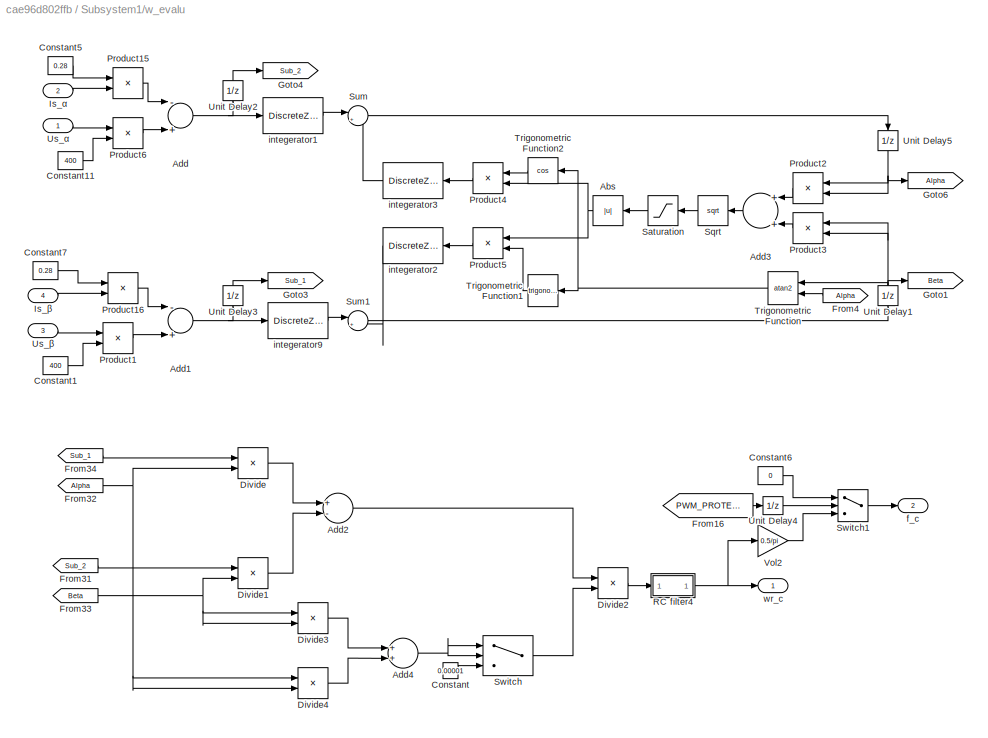
BLOCK [SubSystem] Subsystem1/w_evalu
  Ports = [4, 2]
  RequestExecContextInheritance = off
BLOCK [Abs] Subsystem1/w_evalu/Abs
  SaturateOnIntegerOverflow = off
BLOCK [Sum] Subsystem1/w_evalu/Add
  InputSameDT = off
  Inputs = -+
  OutDataTypeStr = Inherit: Inherit via internal rule
  Ports = [2, 1]
  SaturateOnIntegerOverflow = off
BLOCK [Sum] Subsystem1/w_evalu/Add1
  InputSameDT = off
  Inputs = -+
  OutDataTypeStr = Inherit: Inherit via internal rule
  Ports = [2, 1]
  SaturateOnIntegerOverflow = off
BLOCK [Sum] Subsystem1/w_evalu/Add2
  InputSameDT = off
  Inputs = +-
  OutDataTypeStr = Inherit: Inherit via internal rule
  Ports = [2, 1]
  SaturateOnIntegerOverflow = off
BLOCK [Sum] Subsystem1/w_evalu/Add3
  InputSameDT = off
  OutDataTypeStr = Inherit: Inherit via internal rule
  Ports = [2, 1]
  SaturateOnIntegerOverflow = off
BLOCK [Sum] Subsystem1/w_evalu/Add4
  InputSameDT = off
  OutDataTypeStr = Inherit: Inherit via internal rule
  Ports = [2, 1]
  SaturateOnIntegerOverflow = off
BLOCK [Constant] Subsystem1/w_evalu/Constant
  Value = 0.00001
BLOCK [Constant] Subsystem1/w_evalu/Constant1
  OutDataTypeStr = double
  Value = 400
BLOCK [Constant] Subsystem1/w_evalu/Constant11
  OutDataTypeStr = double
  Value = 400
BLOCK [Constant] Subsystem1/w_evalu/Constant5
  OutDataTypeStr = double
  Value = 0.28
BLOCK [Constant] Subsystem1/w_evalu/Constant6
  OutDataTypeStr = double
  Value = 0
BLOCK [Constant] Subsystem1/w_evalu/Constant7
  OutDataTypeStr = double
  Value = 0.28
BLOCK [Product] Subsystem1/w_evalu/Divide
  InputSameDT = off
  Inputs = **
  OutDataTypeStr = Inherit: Inherit via internal rule
  Ports = [2, 1]
  RndMeth = Floor
  SaturateOnIntegerOverflow = off
BLOCK [Product] Subsystem1/w_evalu/Divide1
  InputSameDT = off
  Inputs = **
  OutDataTypeStr = Inherit: Inherit via internal rule
  Ports = [2, 1]
  RndMeth = Floor
  SaturateOnIntegerOverflow = off
BLOCK [Product] Subsystem1/w_evalu/Divide2
  InputSameDT = off
  Inputs = */
  OutDataTypeStr = Inherit: Inherit via internal rule
  Ports = [2, 1]
  RndMeth = Floor
  SaturateOnIntegerOverflow = off
BLOCK [Product] Subsystem1/w_evalu/Divide3
  InputSameDT = off
  Inputs = **
  OutDataTypeStr = Inherit: Inherit via internal rule
  Ports = [2, 1]
  RndMeth = Floor
  SaturateOnIntegerOverflow = off
BLOCK [Product] Subsystem1/w_evalu/Divide4
  InputSameDT = off
  Inputs = **
  OutDataTypeStr = Inherit: Inherit via internal rule
  Ports = [2, 1]
  RndMeth = Floor
  SaturateOnIntegerOverflow = off
BLOCK [From] Subsystem1/w_evalu/From16
  GotoTag = PWM_PROTECT
  TagVisibility = global
BLOCK [From] Subsystem1/w_evalu/From31
  GotoTag = Sub_2
  TagVisibility = global
BLOCK [From] Subsystem1/w_evalu/From32
  GotoTag = Alpha
  TagVisibility = global
BLOCK [From] Subsystem1/w_evalu/From33
  GotoTag = Beta
  TagVisibility = global
BLOCK [From] Subsystem1/w_evalu/From34
  GotoTag = Sub_1
  TagVisibility = global
BLOCK [From] Subsystem1/w_evalu/From4
  GotoTag = Alpha
  TagVisibility = global
BLOCK [Goto] Subsystem1/w_evalu/Goto1
  GotoTag = Beta
  TagVisibility = global
BLOCK [Goto] Subsystem1/w_evalu/Goto3
  GotoTag = Sub_1
  TagVisibility = global
BLOCK [Goto] Subsystem1/w_evalu/Goto4
  GotoTag = Sub_2
  TagVisibility = global
BLOCK [Goto] Subsystem1/w_evalu/Goto6
  GotoTag = Alpha
  TagVisibility = global
BLOCK [Inport] Subsystem1/w_evalu/Is_α
  IconDisplay = Port number
  Port = 2
BLOCK [Inport] Subsystem1/w_evalu/Is_β
  IconDisplay = Port number
  Port = 4
BLOCK [Product] Subsystem1/w_evalu/Product1
  InputSameDT = off
  OutDataTypeStr = Inherit: Inherit via internal rule
  Ports = [2, 1]
  SaturateOnIntegerOverflow = off
BLOCK [Product] Subsystem1/w_evalu/Product15
  InputSameDT = off
  OutDataTypeStr = Inherit: Inherit via internal rule
  Ports = [2, 1]
  SaturateOnIntegerOverflow = off
BLOCK [Product] Subsystem1/w_evalu/Product16
  InputSameDT = off
  OutDataTypeStr = Inherit: Inherit via internal rule
  Ports = [2, 1]
  SaturateOnIntegerOverflow = off
BLOCK [Product] Subsystem1/w_evalu/Product2
  InputSameDT = off
  OutDataTypeStr = Inherit: Inherit via internal rule
  Ports = [2, 1]
  SaturateOnIntegerOverflow = off
BLOCK [Product] Subsystem1/w_evalu/Product3
  InputSameDT = off
  OutDataTypeStr = Inherit: Inherit via internal rule
  Ports = [2, 1]
  SaturateOnIntegerOverflow = off
BLOCK [Product] Subsystem1/w_evalu/Product4
  InputSameDT = off
  OutDataTypeStr = Inherit: Inherit via internal rule
  Ports = [2, 1]
  SaturateOnIntegerOverflow = off
BLOCK [Product] Subsystem1/w_evalu/Product5
  InputSameDT = off
  OutDataTypeStr = Inherit: Inherit via internal rule
  Ports = [2, 1]
  SaturateOnIntegerOverflow = off
BLOCK [Product] Subsystem1/w_evalu/Product6
  InputSameDT = off
  OutDataTypeStr = Inherit: Inherit via internal rule
  Ports = [2, 1]
  SaturateOnIntegerOverflow = off
BLOCK [SubSystem] Subsystem1/w_evalu/RC filter4
  Ports = [1, 1]
  RequestExecContextInheritance = off
BLOCK [Constant] Subsystem1/w_evalu/RC filter4/Constant2
  OutDataTypeStr = double
  Value = a
BLOCK [Constant] Subsystem1/w_evalu/RC filter4/Constant3
  OutDataTypeStr = double
  Value = 1-a
BLOCK [Product] Subsystem1/w_evalu/RC filter4/Divide
  InputSameDT = off
  OutDataTypeStr = Inherit: Inherit via internal rule
  Ports = [2, 1]
  RndMeth = Floor
  SaturateOnIntegerOverflow = off
BLOCK [Product] Subsystem1/w_evalu/RC filter4/Divide1
  InputSameDT = off
  OutDataTypeStr = Inherit: Inherit via internal rule
  Ports = [2, 1]
  RndMeth = Floor
  SaturateOnIntegerOverflow = off
BLOCK [Sum] Subsystem1/w_evalu/RC filter4/Sum2
  InputSameDT = off
  OutDataTypeStr = Inherit: Inherit via internal rule
  Ports = [2, 1]
  SaturateOnIntegerOverflow = off
BLOCK [UnitDelay] Subsystem1/w_evalu/RC filter4/Unit Delay2
  InputProcessing = Elements as channels (sample based)
  SampleTime = -1
BLOCK [Inport] Subsystem1/w_evalu/RC filter4/x
  IconDisplay = Port number
BLOCK [Outport] Subsystem1/w_evalu/RC filter4/y
  IconDisplay = Port number
BLOCK [Saturate] Subsystem1/w_evalu/Saturation
  InputPortMap = u0
  LowerLimit = -0.56
  Ports = [1, 1]
  UpperLimit = 0.56
BLOCK [Sqrt] Subsystem1/w_evalu/Sqrt
BLOCK [Sum] Subsystem1/w_evalu/Sum
  IconShape = round
  InputSameDT = off
  Inputs = |++
  OutDataTypeStr = Inherit: Inherit via internal rule
  Ports = [2, 1]
  SaturateOnIntegerOverflow = off
BLOCK [Sum] Subsystem1/w_evalu/Sum1
  IconShape = round
  InputSameDT = off
  Inputs = |++
  OutDataTypeStr = Inherit: Inherit via internal rule
  Ports = [2, 1]
  SaturateOnIntegerOverflow = off
BLOCK [Switch] Subsystem1/w_evalu/Switch
  Criteria = u2 ~= 0
  InputSameDT = off
  SaturateOnIntegerOverflow = off
BLOCK [Switch] Subsystem1/w_evalu/Switch1
  Criteria = u2 ~= 0
  InputSameDT = off
  SaturateOnIntegerOverflow = off
BLOCK [Trigonometry] Subsystem1/w_evalu/Trigonometric Function
  Operator = atan2
  Ports = [2, 1]
BLOCK [Trigonometry] Subsystem1/w_evalu/Trigonometric Function1
  Ports = [1, 1]
BLOCK [Trigonometry] Subsystem1/w_evalu/Trigonometric Function2
  Operator = cos
  Ports = [1, 1]
BLOCK [UnitDelay] Subsystem1/w_evalu/Unit Delay1
  InputProcessing = Elements as channels (sample based)
  SampleTime = -1
BLOCK [UnitDelay] Subsystem1/w_evalu/Unit Delay2
  InputProcessing = Elements as channels (sample based)
  SampleTime = -1
BLOCK [UnitDelay] Subsystem1/w_evalu/Unit Delay3
  InputProcessing = Elements as channels (sample based)
  SampleTime = -1
BLOCK [UnitDelay] Subsystem1/w_evalu/Unit Delay4
  InputProcessing = Elements as channels (sample based)
  SampleTime = -1
BLOCK [UnitDelay] Subsystem1/w_evalu/Unit Delay5
  InputProcessing = Elements as channels (sample based)
  SampleTime = -1
BLOCK [Inport] Subsystem1/w_evalu/Us_α
  IconDisplay = Port number
BLOCK [Inport] Subsystem1/w_evalu/Us_β
  IconDisplay = Port number
  Port = 3
BLOCK [Gain] Subsystem1/w_evalu/Vol2
  Gain = 0.5/pi
  OutDataTypeStr = Inherit: Inherit via internal rule
  ParamDataTypeStr = Inherit: Inherit via internal rule
  SaturateOnIntegerOverflow = off
BLOCK [Outport] Subsystem1/w_evalu/f_c
  IconDisplay = Port number
  Port = 2
BLOCK [DiscreteZeroPole] Subsystem1/w_evalu/integerator1
  Gain = 0.0002/1.03
  Poles = [1/1.03]
  SampleTime = -1
  Zeros = [0]
BLOCK [DiscreteZeroPole] Subsystem1/w_evalu/integerator2
  Gain = 0.0002/1.03*150
  Poles = [1/1.03]
  SampleTime = -1
  Zeros = [0]
BLOCK [DiscreteZeroPole] Subsystem1/w_evalu/integerator3
  Gain = 0.0002/1.03*150
  Poles = [1/1.03]
  SampleTime = -1
  Zeros = [0]
BLOCK [DiscreteZeroPole] Subsystem1/w_evalu/integerator9
  Gain = 0.0002/1.03
  Poles = [1/1.03]
  SampleTime = -1
  Zeros = [0]
BLOCK [Outport] Subsystem1/w_evalu/wr_c
  IconDisplay = Port number
BLOCK [Goto] start
  GotoTag = start
BLOCK [Goto] start1
  GotoTag = stop
BLOCK [Goto] start2
  GotoTag = mode
BLOCK [Goto] start3
  GotoTag = powerok
BLOCK [Goto] start4
  GotoTag = tmp
ANNOTATION Function-Call Subsystem1: BCD解码
ANNOTATION Function-Call Subsystem1: DIG1
ANNOTATION Function-Call Subsystem1: DIG2
ANNOTATION Function-Call Subsystem1: DIG3
ANNOTATION Function-Call Subsystem1: DIG4
ANNOTATION Function-Call Subsystem1: DIG5
ANNOTATION Function-Call Subsystem1: DIG6
ANNOTATION Function-Call Subsystem1: DIG7
ANNOTATION Function-Call Subsystem1: 亮度
ANNOTATION Function-Call Subsystem1: 关闭
ANNOTATION Function-Call Subsystem1: 扫描范围
ANNOTATION Function-Call Subsystem1: 测试模式
ANNOTATION Subsystem1: 0 is on 1 in off
ANNOTATION Subsystem1: 开关机高电平有效
LINE C280x//C28x3x Hardware Interrupt:1 -> Subsystem1:trigger
LINE From1:1 -> Rate Transition1:1
LINE From2:1 -> Rate Transition2:1
LINE From3:1 -> Rate Transition3:1
LINE From4:1 -> Rate Transition4:1
LINE From6:1 -> Function-Call Subsystem1:1
LINE From:1 -> Rate Transition:1
LINE Function-Call Subsystem1/Constant10:1 -> Function-Call Subsystem1/Integration 0 to maximal3:1
LINE Function-Call Subsystem1/Constant12:1 -> Function-Call Subsystem1/Gain6:1
LINE Function-Call Subsystem1/Constant14:1 -> Function-Call Subsystem1/Gain7:1
LINE Function-Call Subsystem1/Constant19:1 -> Function-Call Subsystem1/Multiport Switch:3
LINE Function-Call Subsystem1/Constant20:1 -> Function-Call Subsystem1/Multiport Switch:2
LINE Function-Call Subsystem1/Constant28:1 -> Function-Call Subsystem1/Gain2:1
LINE Function-Call Subsystem1/Constant2:1 -> Function-Call Subsystem1/Gain1:1
LINE Function-Call Subsystem1/Constant35:1 -> Function-Call Subsystem1/Multiport Switch:5
LINE Function-Call Subsystem1/Constant36:1 -> Function-Call Subsystem1/Multiport Switch:6
LINE Function-Call Subsystem1/Constant4:1 -> Function-Call Subsystem1/Multiport Switch:4
LINE Function-Call Subsystem1/Constant5:1 -> Function-Call Subsystem1/Gain3:1
LINE Function-Call Subsystem1/Constant7:1 -> Function-Call Subsystem1/Gain5:1
LINE Function-Call Subsystem1/Constant8:1 -> Function-Call Subsystem1/Gain4:1
LINE Function-Call Subsystem1/Data Type Conversion1:1 -> Function-Call Subsystem1/Subsystem2:1
LINE Function-Call Subsystem1/Data Type Conversion2:1 -> Function-Call Subsystem1/Subsystem3:1
LINE Function-Call Subsystem1/Data Type Conversion:1 -> Function-Call Subsystem1/Subsystem1:1
LINE Function-Call Subsystem1/Demux:1 -> Function-Call Subsystem1/Data Type Conversion:1
LINE Function-Call Subsystem1/Demux:2 -> Function-Call Subsystem1/Data Type Conversion1:1
LINE Function-Call Subsystem1/Demux:3 -> Function-Call Subsystem1/Data Type Conversion2:1
LINE Function-Call Subsystem1/Gain1:1 -> Function-Call Subsystem1/Sum1:1
LINE Function-Call Subsystem1/Gain2:1 -> Function-Call Subsystem1/Sum5:1
LINE Function-Call Subsystem1/Gain3:1 -> Function-Call Subsystem1/Sum2:1
LINE Function-Call Subsystem1/Gain4:1 -> Function-Call Subsystem1/Sum6:1
LINE Function-Call Subsystem1/Gain5:1 -> Function-Call Subsystem1/Sum3:1
LINE Function-Call Subsystem1/Gain6:1 -> Function-Call Subsystem1/Sum4:1
LINE Function-Call Subsystem1/Gain7:1 -> Function-Call Subsystem1/Sum7:1
NET Function-Call Subsystem1/Integration 0 to maximal3/3:1 -> Function-Call Subsystem1/Integration 0 to maximal3/Relational Operator1:2, Function-Call Subsystem1/Integration 0 to maximal3/Sum1:2
NET Function-Call Subsystem1/Integration 0 to maximal3/Relational Operator1:1 -> Function-Call Subsystem1/Integration 0 to maximal3/Switch2:2, Function-Call Subsystem1/Integration 0 to maximal3/Zero Trig:1
LINE Function-Call Subsystem1/Integration 0 to maximal3/Sum1:1 -> Function-Call Subsystem1/Integration 0 to maximal3/Switch2:3
NET Function-Call Subsystem1/Integration 0 to maximal3/Sum2:1 -> Function-Call Subsystem1/Integration 0 to maximal3/Relational Operator1:1, Function-Call Subsystem1/Integration 0 to maximal3/Sum1:1, Function-Call Subsystem1/Integration 0 to maximal3/Switch2:1
NET Function-Call Subsystem1/Integration 0 to maximal3/Switch2:1 -> Function-Call Subsystem1/Integration 0 to maximal3/Unit Delay1:1, Function-Call Subsystem1/Integration 0 to maximal3/y:1
LINE Function-Call Subsystem1/Integration 0 to maximal3/Unit Delay1:1 -> Function-Call Subsystem1/Integration 0 to maximal3/Sum2:1
LINE Function-Call Subsystem1/Integration 0 to maximal3/x:1 -> Function-Call Subsystem1/Integration 0 to maximal3/Sum2:2
LINE Function-Call Subsystem1/Integration 0 to maximal3:1 -> Function-Call Subsystem1/Multiport Switch:1
LINE Function-Call Subsystem1/Integration 0 to maximal3:2 -> Function-Call Subsystem1/Terminator4:1
LINE Function-Call Subsystem1/Multiport Switch:1 -> Function-Call Subsystem1/SPI Transmit:1
LINE Function-Call Subsystem1/SPI2:1 -> Function-Call Subsystem1/Demux:1
NET Function-Call Subsystem1/Subsystem1/In1:1 -> Function-Call Subsystem1/Subsystem1/求个位:1, Function-Call Subsystem1/Subsystem1/求十位:2, Function-Call Subsystem1/Subsystem1/求百位:1
NET Function-Call Subsystem1/Subsystem1/求个位/Constant1:1 -> Function-Call Subsystem1/Subsystem1/求个位/Math Function:2, Function-Call Subsystem1/Subsystem1/求个位/Product:2
LINE Function-Call Subsystem1/Subsystem1/求个位/Gain1:1 -> Function-Call Subsystem1/Subsystem1/求个位/Sum:3
LINE Function-Call Subsystem1/Subsystem1/求个位/Gain:1 -> Function-Call Subsystem1/Subsystem1/求个位/Sum:2
LINE Function-Call Subsystem1/Subsystem1/求个位/In1:1 -> Function-Call Subsystem1/Subsystem1/求个位/Sum:1
LINE Function-Call Subsystem1/Subsystem1/求个位/In2:1 -> Function-Call Subsystem1/Subsystem1/求个位/Gain:1
LINE Function-Call Subsystem1/Subsystem1/求个位/In3:1 -> Function-Call Subsystem1/Subsystem1/求个位/Gain1:1
LINE Function-Call Subsystem1/Subsystem1/求个位/Math Function:1 -> Function-Call Subsystem1/Subsystem1/求个位/Sum1:2
LINE Function-Call Subsystem1/Subsystem1/求个位/Product:1 -> Function-Call Subsystem1/Subsystem1/求个位/Out1:1
LINE Function-Call Subsystem1/Subsystem1/求个位/Sum1:1 -> Function-Call Subsystem1/Subsystem1/求个位/Product:1
NET Function-Call Subsystem1/Subsystem1/求个位/Sum:1 -> Function-Call Subsystem1/Subsystem1/求个位/Math Function:1, Function-Call Subsystem1/Subsystem1/求个位/Sum1:1
LINE Function-Call Subsystem1/Subsystem1/求个位:1 -> Function-Call Subsystem1/Subsystem1/Out3:1
NET Function-Call Subsystem1/Subsystem1/求十位/Constant1:1 -> Function-Call Subsystem1/Subsystem1/求十位/Math Function:2, Function-Call Subsystem1/Subsystem1/求十位/Product:2
LINE Function-Call Subsystem1/Subsystem1/求十位/Gain1:1 -> Function-Call Subsystem1/Subsystem1/求十位/Sum1:2
LINE Function-Call Subsystem1/Subsystem1/求十位/In1:1 -> Function-Call Subsystem1/Subsystem1/求十位/Gain1:1
LINE Function-Call Subsystem1/Subsystem1/求十位/In2:1 -> Function-Call Subsystem1/Subsystem1/求十位/Sum1:1
LINE Function-Call Subsystem1/Subsystem1/求十位/Math Function:1 -> Function-Call Subsystem1/Subsystem1/求十位/Sum:2
LINE Function-Call Subsystem1/Subsystem1/求十位/Product:1 -> Function-Call Subsystem1/Subsystem1/求十位/Out1:1
NET Function-Call Subsystem1/Subsystem1/求十位/Sum1:1 -> Function-Call Subsystem1/Subsystem1/求十位/Math Function:1, Function-Call Subsystem1/Subsystem1/求十位/Sum:1
LINE Function-Call Subsystem1/Subsystem1/求十位/Sum:1 -> Function-Call Subsystem1/Subsystem1/求十位/Product:1
NET Function-Call Subsystem1/Subsystem1/求十位:1 -> Function-Call Subsystem1/Subsystem1/Out2:1, Function-Call Subsystem1/Subsystem1/求个位:3
NET Function-Call Subsystem1/Subsystem1/求百位/Constant1:1 -> Function-Call Subsystem1/Subsystem1/求百位/Math Function:2, Function-Call Subsystem1/Subsystem1/求百位/Product:2
NET Function-Call Subsystem1/Subsystem1/求百位/In1:1 -> Function-Call Subsystem1/Subsystem1/求百位/Math Function:1, Function-Call Subsystem1/Subsystem1/求百位/Sum:1
LINE Function-Call Subsystem1/Subsystem1/求百位/Math Function:1 -> Function-Call Subsystem1/Subsystem1/求百位/Sum:2
LINE Function-Call Subsystem1/Subsystem1/求百位/Product:1 -> Function-Call Subsystem1/Subsystem1/求百位/Out1:1
LINE Function-Call Subsystem1/Subsystem1/求百位/Sum:1 -> Function-Call Subsystem1/Subsystem1/求百位/Product:1
NET Function-Call Subsystem1/Subsystem1/求百位:1 -> Function-Call Subsystem1/Subsystem1/Out1:1, Function-Call Subsystem1/Subsystem1/求个位:2, Function-Call Subsystem1/Subsystem1/求十位:1
LINE Function-Call Subsystem1/Subsystem1:1 -> Function-Call Subsystem1/Sum5:2
LINE Function-Call Subsystem1/Subsystem1:2 -> Function-Call Subsystem1/Sum1:2
LINE Function-Call Subsystem1/Subsystem1:3 -> Function-Call Subsystem1/Sum2:2
NET Function-Call Subsystem1/Subsystem2/In1:1 -> Function-Call Subsystem1/Subsystem2/求个位:1, Function-Call Subsystem1/Subsystem2/求十位:2, Function-Call Subsystem1/Subsystem2/求百位:1
NET Function-Call Subsystem1/Subsystem2/求个位/Constant1:1 -> Function-Call Subsystem1/Subsystem2/求个位/Math Function:2, Function-Call Subsystem1/Subsystem2/求个位/Product:2
LINE Function-Call Subsystem1/Subsystem2/求个位/Gain1:1 -> Function-Call Subsystem1/Subsystem2/求个位/Sum:3
LINE Function-Call Subsystem1/Subsystem2/求个位/Gain:1 -> Function-Call Subsystem1/Subsystem2/求个位/Sum:2
LINE Function-Call Subsystem1/Subsystem2/求个位/In1:1 -> Function-Call Subsystem1/Subsystem2/求个位/Sum:1
LINE Function-Call Subsystem1/Subsystem2/求个位/In2:1 -> Function-Call Subsystem1/Subsystem2/求个位/Gain:1
LINE Function-Call Subsystem1/Subsystem2/求个位/In3:1 -> Function-Call Subsystem1/Subsystem2/求个位/Gain1:1
LINE Function-Call Subsystem1/Subsystem2/求个位/Math Function:1 -> Function-Call Subsystem1/Subsystem2/求个位/Sum1:2
LINE Function-Call Subsystem1/Subsystem2/求个位/Product:1 -> Function-Call Subsystem1/Subsystem2/求个位/Out1:1
LINE Function-Call Subsystem1/Subsystem2/求个位/Sum1:1 -> Function-Call Subsystem1/Subsystem2/求个位/Product:1
NET Function-Call Subsystem1/Subsystem2/求个位/Sum:1 -> Function-Call Subsystem1/Subsystem2/求个位/Math Function:1, Function-Call Subsystem1/Subsystem2/求个位/Sum1:1
LINE Function-Call Subsystem1/Subsystem2/求个位:1 -> Function-Call Subsystem1/Subsystem2/Out3:1
NET Function-Call Subsystem1/Subsystem2/求十位/Constant1:1 -> Function-Call Subsystem1/Subsystem2/求十位/Math Function:2, Function-Call Subsystem1/Subsystem2/求十位/Product:2
LINE Function-Call Subsystem1/Subsystem2/求十位/Gain1:1 -> Function-Call Subsystem1/Subsystem2/求十位/Sum1:2
LINE Function-Call Subsystem1/Subsystem2/求十位/In1:1 -> Function-Call Subsystem1/Subsystem2/求十位/Gain1:1
LINE Function-Call Subsystem1/Subsystem2/求十位/In2:1 -> Function-Call Subsystem1/Subsystem2/求十位/Sum1:1
LINE Function-Call Subsystem1/Subsystem2/求十位/Math Function:1 -> Function-Call Subsystem1/Subsystem2/求十位/Sum:2
LINE Function-Call Subsystem1/Subsystem2/求十位/Product:1 -> Function-Call Subsystem1/Subsystem2/求十位/Out1:1
NET Function-Call Subsystem1/Subsystem2/求十位/Sum1:1 -> Function-Call Subsystem1/Subsystem2/求十位/Math Function:1, Function-Call Subsystem1/Subsystem2/求十位/Sum:1
LINE Function-Call Subsystem1/Subsystem2/求十位/Sum:1 -> Function-Call Subsystem1/Subsystem2/求十位/Product:1
NET Function-Call Subsystem1/Subsystem2/求十位:1 -> Function-Call Subsystem1/Subsystem2/Out2:1, Function-Call Subsystem1/Subsystem2/求个位:3
NET Function-Call Subsystem1/Subsystem2/求百位/Constant1:1 -> Function-Call Subsystem1/Subsystem2/求百位/Math Function:2, Function-Call Subsystem1/Subsystem2/求百位/Product:2
NET Function-Call Subsystem1/Subsystem2/求百位/In1:1 -> Function-Call Subsystem1/Subsystem2/求百位/Math Function:1, Function-Call Subsystem1/Subsystem2/求百位/Sum:1
LINE Function-Call Subsystem1/Subsystem2/求百位/Math Function:1 -> Function-Call Subsystem1/Subsystem2/求百位/Sum:2
LINE Function-Call Subsystem1/Subsystem2/求百位/Product:1 -> Function-Call Subsystem1/Subsystem2/求百位/Out1:1
LINE Function-Call Subsystem1/Subsystem2/求百位/Sum:1 -> Function-Call Subsystem1/Subsystem2/求百位/Product:1
NET Function-Call Subsystem1/Subsystem2/求百位:1 -> Function-Call Subsystem1/Subsystem2/求个位:2, Function-Call Subsystem1/Subsystem2/求十位:1
LINE Function-Call Subsystem1/Subsystem2:1 -> Function-Call Subsystem1/Sum6:2
LINE Function-Call Subsystem1/Subsystem2:2 -> Function-Call Subsystem1/Sum3:2
NET Function-Call Subsystem1/Subsystem3/In1:1 -> Function-Call Subsystem1/Subsystem3/求个位:1, Function-Call Subsystem1/Subsystem3/求十位:2, Function-Call Subsystem1/Subsystem3/求百位:1
NET Function-Call Subsystem1/Subsystem3/求个位/Constant1:1 -> Function-Call Subsystem1/Subsystem3/求个位/Math Function:2, Function-Call Subsystem1/Subsystem3/求个位/Product:2
LINE Function-Call Subsystem1/Subsystem3/求个位/Gain1:1 -> Function-Call Subsystem1/Subsystem3/求个位/Sum:3
LINE Function-Call Subsystem1/Subsystem3/求个位/Gain:1 -> Function-Call Subsystem1/Subsystem3/求个位/Sum:2
LINE Function-Call Subsystem1/Subsystem3/求个位/In1:1 -> Function-Call Subsystem1/Subsystem3/求个位/Sum:1
LINE Function-Call Subsystem1/Subsystem3/求个位/In2:1 -> Function-Call Subsystem1/Subsystem3/求个位/Gain:1
LINE Function-Call Subsystem1/Subsystem3/求个位/In3:1 -> Function-Call Subsystem1/Subsystem3/求个位/Gain1:1
LINE Function-Call Subsystem1/Subsystem3/求个位/Math Function:1 -> Function-Call Subsystem1/Subsystem3/求个位/Sum1:2
LINE Function-Call Subsystem1/Subsystem3/求个位/Product:1 -> Function-Call Subsystem1/Subsystem3/求个位/Out1:1
LINE Function-Call Subsystem1/Subsystem3/求个位/Sum1:1 -> Function-Call Subsystem1/Subsystem3/求个位/Product:1
NET Function-Call Subsystem1/Subsystem3/求个位/Sum:1 -> Function-Call Subsystem1/Subsystem3/求个位/Math Function:1, Function-Call Subsystem1/Subsystem3/求个位/Sum1:1
LINE Function-Call Subsystem1/Subsystem3/求个位:1 -> Function-Call Subsystem1/Subsystem3/Out3:1
NET Function-Call Subsystem1/Subsystem3/求十位/Constant1:1 -> Function-Call Subsystem1/Subsystem3/求十位/Math Function:2, Function-Call Subsystem1/Subsystem3/求十位/Product:2
LINE Function-Call Subsystem1/Subsystem3/求十位/Gain1:1 -> Function-Call Subsystem1/Subsystem3/求十位/Sum1:2
LINE Function-Call Subsystem1/Subsystem3/求十位/In1:1 -> Function-Call Subsystem1/Subsystem3/求十位/Gain1:1
LINE Function-Call Subsystem1/Subsystem3/求十位/In2:1 -> Function-Call Subsystem1/Subsystem3/求十位/Sum1:1
LINE Function-Call Subsystem1/Subsystem3/求十位/Math Function:1 -> Function-Call Subsystem1/Subsystem3/求十位/Sum:2
LINE Function-Call Subsystem1/Subsystem3/求十位/Product:1 -> Function-Call Subsystem1/Subsystem3/求十位/Out1:1
NET Function-Call Subsystem1/Subsystem3/求十位/Sum1:1 -> Function-Call Subsystem1/Subsystem3/求十位/Math Function:1, Function-Call Subsystem1/Subsystem3/求十位/Sum:1
LINE Function-Call Subsystem1/Subsystem3/求十位/Sum:1 -> Function-Call Subsystem1/Subsystem3/求十位/Product:1
NET Function-Call Subsystem1/Subsystem3/求十位:1 -> Function-Call Subsystem1/Subsystem3/Out2:1, Function-Call Subsystem1/Subsystem3/求个位:3
NET Function-Call Subsystem1/Subsystem3/求百位/Constant1:1 -> Function-Call Subsystem1/Subsystem3/求百位/Math Function:2, Function-Call Subsystem1/Subsystem3/求百位/Product:2
NET Function-Call Subsystem1/Subsystem3/求百位/In1:1 -> Function-Call Subsystem1/Subsystem3/求百位/Math Function:1, Function-Call Subsystem1/Subsystem3/求百位/Sum:1
LINE Function-Call Subsystem1/Subsystem3/求百位/Math Function:1 -> Function-Call Subsystem1/Subsystem3/求百位/Sum:2
LINE Function-Call Subsystem1/Subsystem3/求百位/Product:1 -> Function-Call Subsystem1/Subsystem3/求百位/Out1:1
LINE Function-Call Subsystem1/Subsystem3/求百位/Sum:1 -> Function-Call Subsystem1/Subsystem3/求百位/Product:1
NET Function-Call Subsystem1/Subsystem3/求百位:1 -> Function-Call Subsystem1/Subsystem3/求个位:2, Function-Call Subsystem1/Subsystem3/求十位:1
LINE Function-Call Subsystem1/Subsystem3:1 -> Function-Call Subsystem1/Sum4:2
LINE Function-Call Subsystem1/Subsystem3:2 -> Function-Call Subsystem1/Sum7:2
LINE Function-Call Subsystem1/Sum1:1 -> Function-Call Subsystem1/Multiport Switch:8
LINE Function-Call Subsystem1/Sum2:1 -> Function-Call Subsystem1/Multiport Switch:9
LINE Function-Call Subsystem1/Sum3:1 -> Function-Call Subsystem1/Multiport Switch:11
LINE Function-Call Subsystem1/Sum4:1 -> Function-Call Subsystem1/Multiport Switch:12
LINE Function-Call Subsystem1/Sum5:1 -> Function-Call Subsystem1/Multiport Switch:7
LINE Function-Call Subsystem1/Sum6:1 -> Function-Call Subsystem1/Multiport Switch:10
LINE Function-Call Subsystem1/Sum7:1 -> Function-Call Subsystem1/Multiport Switch:13
LINE Rate Transition1:1 -> Subsystem1:2
LINE Rate Transition2:1 -> Subsystem1:3
LINE Rate Transition3:1 -> Subsystem1:4
LINE Rate Transition4:1 -> Subsystem1:5
LINE Rate Transition5:1 -> Goto1:1
LINE Rate Transition:1 -> Subsystem1:1
LINE Simulation Interrupt:1 -> Function-Call Subsystem1:trigger
LINE Subsystem/MODE1:1 -> Subsystem/powerok:1
LINE Subsystem/MODE2:1 -> Subsystem/tmp:1
LINE Subsystem/MODE:1 -> Subsystem/mode:1
LINE Subsystem/PB-OFF:1 -> Subsystem/stop:1
LINE Subsystem/PB-ON:1 -> Subsystem/start:1
LINE Subsystem1/AD/Start Conversion/Constant:1 -> Subsystem1/AD/Start Conversion/Digital Output1:1
LINE Subsystem1/AD/Stop Conversion/Constant12:1 -> Subsystem1/AD/Stop Conversion/Digital Output13:1
LINE Subsystem1/AD/read AD/p1:1 -> Subsystem1/AD/read AD/UD:1
LINE Subsystem1/AD/read AD/p2:1 -> Subsystem1/AD/read AD/UOUT:1
LINE Subsystem1/AD/read AD/p3:1 -> Subsystem1/AD/read AD/UOUT1:1
LINE Subsystem1/AD/read AD/p5:1 -> Subsystem1/AD/read AD/FREQ:1
LINE Subsystem1/AD/read AD/p6:1 -> Subsystem1/AD/read AD/IA:1
LINE Subsystem1/AD/read AD/p7:1 -> Subsystem1/AD/read AD/IB:1
LINE Subsystem1/AD/read AD:1 -> Subsystem1/AD/UD:1
LINE Subsystem1/AD/read AD:2 -> Subsystem1/AD/Goto7:1
LINE Subsystem1/AD/read AD:3 -> Subsystem1/AD/Goto9:1
LINE Subsystem1/AD/read AD:4 -> Subsystem1/AD/FREQ:1
LINE Subsystem1/AD/read AD:5 -> Subsystem1/AD/IA:1
LINE Subsystem1/AD/read AD:6 -> Subsystem1/AD/IB:1
LINE Subsystem1/AD:1 -> Subsystem1/Goto106:1
LINE Subsystem1/AD:2 -> Subsystem1/Goto108:1
LINE Subsystem1/AD:3 -> Subsystem1/Goto107:1
LINE Subsystem1/AD:4 -> Subsystem1/Goto109:1
LINE Subsystem1/Abs:1 -> Subsystem1/Goto32:1
LINE Subsystem1/Compare To Constant:1 -> Subsystem1/Logical Operator4:1
LINE Subsystem1/Constant10:1 -> Subsystem1/PI-ID:4
LINE Subsystem1/Constant11:1 -> Subsystem1/PI-Nr:3
LINE Subsystem1/Constant12:1 -> Subsystem1/Divide:2
LINE Subsystem1/Constant13:1 -> Subsystem1/PI-Nr:6
LINE Subsystem1/Constant14:1 -> Subsystem1/PI-IQ:6
LINE Subsystem1/Constant15:1 -> Subsystem1/PI-IQ:5
LINE Subsystem1/Constant16:1 -> Subsystem1/PI-ID:3
LINE Subsystem1/Constant17:1 -> Subsystem1/PI-Nr:5
LINE Subsystem1/Constant18:1 -> Subsystem1/Sum5:2
LINE Subsystem1/Constant19:1 -> Subsystem1/Sum4:2
LINE Subsystem1/Constant1:1 -> Subsystem1/PI-ID7:4
LINE Subsystem1/Constant20:1 -> Subsystem1/PI-Nr:4
LINE Subsystem1/Constant21:1 -> Subsystem1/PI-IQ:3
LINE Subsystem1/Constant22:1 -> Subsystem1/Divide2:2
LINE Subsystem1/Constant23:1 -> Subsystem1/PI-IQ7:6
LINE Subsystem1/Constant24:1 -> Subsystem1/PI-IQ7:5
LINE Subsystem1/Constant25:1 -> Subsystem1/PI-IQ5:6
LINE Subsystem1/Constant26:1 -> Subsystem1/Divide3:2
LINE Subsystem1/Constant27:1 -> Subsystem1/Sum7:1
LINE Subsystem1/Constant28:1 -> Subsystem1/PI-IQ7:4
LINE Subsystem1/Constant29:1 -> Subsystem1/PI-ID7:6
LINE Subsystem1/Constant2:1 -> Subsystem1/Divide1:2
LINE Subsystem1/Constant30:1 -> Subsystem1/PI-ID7:5
LINE Subsystem1/Constant31:1 -> Subsystem1/PI-ID7:3
LINE Subsystem1/Constant32:1 -> Subsystem1/Sum3:1
LINE Subsystem1/Constant33:1 -> Subsystem1/PI-IQ5:5
LINE Subsystem1/Constant34:1 -> Subsystem1/Divide5:2
LINE Subsystem1/Constant35:1 -> Subsystem1/Sum9:1
LINE Subsystem1/Constant36:1 -> Subsystem1/PI-IQ5:4
LINE Subsystem1/Constant37:1 -> Subsystem1/PI-ID5:6
LINE Subsystem1/Constant38:1 -> Subsystem1/PI-ID5:5
LINE Subsystem1/Constant39:1 -> Subsystem1/PI-ID5:3
LINE Subsystem1/Constant3:1 -> Subsystem1/Data Type Conversion1:1
LINE Subsystem1/Constant40:1 -> Subsystem1/Sum8:1
LINE Subsystem1/Constant41:1 -> Subsystem1/PI-ID5:4
LINE Subsystem1/Constant42:1 -> Subsystem1/PI-IQ5:3
LINE Subsystem1/Constant4:1 -> Subsystem1/Sum2:1
LINE Subsystem1/Constant5:1 -> Subsystem1/PI-IQ:4
LINE Subsystem1/Constant6:1 -> Subsystem1/PI-IQ7:3
LINE Subsystem1/Constant7:1 -> Subsystem1/PI-ID:6
LINE Subsystem1/Constant8:1 -> Subsystem1/PI-ID:5
LINE Subsystem1/Constant9:1 -> Subsystem1/Divide4:2
LINE Subsystem1/Current protect1/Constant25:1 -> Subsystem1/Current protect1/Switch9:3
LINE Subsystem1/Current protect1/Constant26:1 -> Subsystem1/Current protect1/Switch9:1
LINE Subsystem1/Current protect1/S-R Flip-Flop1:1 -> Subsystem1/Current protect1/Software_I:1
LINE Subsystem1/Current protect1/S-R Flip-Flop1:2 -> Subsystem1/Current protect1/Terminator:1
LINE Subsystem1/Current protect1/Switch9:1 -> Subsystem1/Current protect1/S-R Flip-Flop1:1
LINE Subsystem1/Current protect1/igdin:1 -> Subsystem1/Current protect1/Switch9:2
LINE Subsystem1/Current protect1/reset:1 -> Subsystem1/Current protect1/S-R Flip-Flop1:2
LINE Subsystem1/Current protect1:1 -> Subsystem1/Unit Delay1:1
LINE Subsystem1/Data Type Conversion1:1 -> Subsystem1/driving signal:4
LINE Subsystem1/Divide1:1 -> Subsystem1/Goto7:1
LINE Subsystem1/Divide2:1 -> Subsystem1/Goto31:1
LINE Subsystem1/Divide3:1 -> Subsystem1/Goto34:1
LINE Subsystem1/Divide4:1 -> Subsystem1/Goto42:1
LINE Subsystem1/Divide5:1 -> Subsystem1/Goto43:1
LINE Subsystem1/Divide:1 -> Subsystem1/Goto6:1
LINE Subsystem1/From10:1 -> Subsystem1/Sum1:2
LINE Subsystem1/From11:1 -> Subsystem1/Logical Operator2:1
LINE Subsystem1/From12:1 -> Subsystem1/conversion:1
LINE Subsystem1/From13:1 -> Subsystem1/Logical Operator4:2
LINE Subsystem1/From14:1 -> Subsystem1/w_evalu:2
LINE Subsystem1/From15:1 -> Subsystem1/conversion:3
LINE Subsystem1/From16:1 -> Subsystem1/Logical Operator5:1
LINE Subsystem1/From17:1 -> Subsystem1/conversion:2
LINE Subsystem1/From18:1 -> Subsystem1/abc//dq current:1
LINE Subsystem1/From19:1 -> Subsystem1/Logical Operator3:1
LINE Subsystem1/From1:1 -> Subsystem1/driving signal:5
LINE Subsystem1/From20:1 -> Subsystem1/abc//dq current:2
LINE Subsystem1/From21:1 -> Subsystem1/Compare To Constant:1
LINE Subsystem1/From22:1 -> Subsystem1/conversion:4
LINE Subsystem1/From23:1 -> Subsystem1/w_evalu:1
LINE Subsystem1/From24:1 -> Subsystem1/RC filter3:1
LINE Subsystem1/From25:1 -> Subsystem1/Subsystem2:1
LINE Subsystem1/From26:1 -> Subsystem1/Subsystem2:2
LINE Subsystem1/From27:1 -> Subsystem1/Logical Operator6:2
LINE Subsystem1/From28:1 -> Subsystem1/w_evalu:4
LINE Subsystem1/From29:1 -> Subsystem1/w_evalu:3
LINE Subsystem1/From2:1 -> Subsystem1/Gain2:1
LINE Subsystem1/From30:1 -> Subsystem1/Current protect1:2
LINE Subsystem1/From31:1 -> Subsystem1/Sum1:1
LINE Subsystem1/From32:1 -> Subsystem1/Sum6:2
NET Subsystem1/From34:1 -> Subsystem1/Relational Operator:1, Subsystem1/Switch1:1
LINE Subsystem1/From35:1 -> Subsystem1/dq_7:1
LINE Subsystem1/From36:1 -> Subsystem1/Switch3:2
LINE Subsystem1/From37:1 -> Subsystem1/dq_7:2
LINE Subsystem1/From39:1 -> Subsystem1/Mux3:3
LINE Subsystem1/From3:1 -> Subsystem1/SPWM:1
LINE Subsystem1/From40:1 -> Subsystem1/angle_evalu:2
LINE Subsystem1/From42:1 -> Subsystem1/angle_evalu:1
LINE Subsystem1/From43:1 -> Subsystem1/angle_evalu:3
LINE Subsystem1/From44:1 -> Subsystem1/angle_evalu:4
LINE Subsystem1/From45:1 -> Subsystem1/SPWM_5:1
LINE Subsystem1/From46:1 -> Subsystem1/SPWM_5:2
LINE Subsystem1/From47:1 -> Subsystem1/dq_7:3
LINE Subsystem1/From48:1 -> Subsystem1/Sum3:2
LINE Subsystem1/From49:1 -> Subsystem1/Logical Operator8:1
LINE Subsystem1/From4:1 -> Subsystem1/S-R Flip-Flop4:1
LINE Subsystem1/From50:1 -> Subsystem1/Logical Operator9:1
LINE Subsystem1/From51:1 -> Subsystem1/SPWM_7:1
LINE Subsystem1/From52:1 -> Subsystem1/Sum7:2
LINE Subsystem1/From53:1 -> Subsystem1/SPWM_7:2
LINE Subsystem1/From54:1 -> Subsystem1/SPWM_7:3
NET Subsystem1/From55:1 -> Subsystem1/Gain1:1, Subsystem1/Gain6:1
LINE Subsystem1/From56:1 -> Subsystem1/SPWM_5:3
LINE Subsystem1/From57:1 -> Subsystem1/dq_5:1
LINE Subsystem1/From58:1 -> Subsystem1/dq_5:2
LINE Subsystem1/From59:1 -> Subsystem1/dq_5:3
LINE Subsystem1/From5:1 -> Subsystem1/S-R Flip-Flop4:2
LINE Subsystem1/From63:1 -> Subsystem1/Sum8:2
LINE Subsystem1/From64:1 -> Subsystem1/Logical Operator7:1
LINE Subsystem1/From65:1 -> Subsystem1/Logical Operator10:1
LINE Subsystem1/From66:1 -> Subsystem1/Sum9:2
LINE Subsystem1/From6:1 -> Subsystem1/abc//dq current:3
LINE Subsystem1/From7:1 -> Subsystem1/SPWM:2
LINE Subsystem1/From8:1 -> Subsystem1/Sum2:2
LINE Subsystem1/From9:1 -> Subsystem1/SPWM:3
LINE Subsystem1/Gain1:1 -> Subsystem1/Goto29:1
LINE Subsystem1/Gain2:1 -> Subsystem1/Mux3:1
LINE Subsystem1/Gain3:1 -> Subsystem1/driving signal:1
LINE Subsystem1/Gain4:1 -> Subsystem1/driving signal:2
LINE Subsystem1/Gain5:1 -> Subsystem1/driving signal:3
LINE Subsystem1/Gain6:1 -> Subsystem1/Goto38:1
LINE Subsystem1/Logical Operator10:1 -> Subsystem1/PI-ID5:2
LINE Subsystem1/Logical Operator1:1 -> Subsystem1/Goto2:1
LINE Subsystem1/Logical Operator2:1 -> Subsystem1/PI-IQ:2
LINE Subsystem1/Logical Operator3:1 -> Subsystem1/PI-ID:2
LINE Subsystem1/Logical Operator4:1 -> Subsystem1/Goto13:1
LINE Subsystem1/Logical Operator5:1 -> Subsystem1/PI-Nr:2
LINE Subsystem1/Logical Operator6:1 -> Subsystem1/Goto8:1
LINE Subsystem1/Logical Operator7:1 -> Subsystem1/PI-IQ5:2
LINE Subsystem1/Logical Operator8:1 -> Subsystem1/PI-IQ7:2
LINE Subsystem1/Logical Operator9:1 -> Subsystem1/PI-ID7:2
LINE Subsystem1/Logical Operator:1 -> Subsystem1/Goto1:1
LINE Subsystem1/Mux3:1 -> Subsystem1/SPI:1
LINE Subsystem1/PI-ID/Constant1:1 -> Subsystem1/PI-ID/Switch2:3
LINE Subsystem1/PI-ID/Constant2:1 -> Subsystem1/PI-ID/Switch1:1
LINE Subsystem1/PI-ID/Constant3:1 -> Subsystem1/PI-ID/Switch3:3
LINE Subsystem1/PI-ID/Constant5:1 -> Subsystem1/PI-ID/Switch4:3
LINE Subsystem1/PI-ID/D:1 -> Subsystem1/PI-ID/Product2:2
LINE Subsystem1/PI-ID/I:1 -> Subsystem1/PI-ID/Product1:2
LINE Subsystem1/PI-ID/Logical Operator5:1 -> Subsystem1/PI-ID/Switch4:2
LINE Subsystem1/PI-ID/Logical Operator6:1 -> Subsystem1/PI-ID/Logical Operator5:2
NET Subsystem1/PI-ID/OV:1 -> Subsystem1/PI-ID/Logical Operator6:1, Subsystem1/PI-ID/Switch1:2
LINE Subsystem1/PI-ID/P:1 -> Subsystem1/PI-ID/Product:2
LINE Subsystem1/PI-ID/Product1:1 -> Subsystem1/PI-ID/Sum4:1
LINE Subsystem1/PI-ID/Product2:1 -> Subsystem1/PI-ID/RC filter8:1
LINE Subsystem1/PI-ID/Product:1 -> Subsystem1/PI-ID/Sum1:1
LINE Subsystem1/PI-ID/RC filter8/Constant2:1 -> Subsystem1/PI-ID/RC filter8/Divide:2
LINE Subsystem1/PI-ID/RC filter8/Constant3:1 -> Subsystem1/PI-ID/RC filter8/Divide1:1
LINE Subsystem1/PI-ID/RC filter8/Divide1:1 -> Subsystem1/PI-ID/RC filter8/Sum2:2
LINE Subsystem1/PI-ID/RC filter8/Divide:1 -> Subsystem1/PI-ID/RC filter8/Sum2:1
NET Subsystem1/PI-ID/RC filter8/Sum2:1 -> Subsystem1/PI-ID/RC filter8/Unit Delay2:1, Subsystem1/PI-ID/RC filter8/y:1
LINE Subsystem1/PI-ID/RC filter8/Unit Delay2:1 -> Subsystem1/PI-ID/RC filter8/Divide1:2
LINE Subsystem1/PI-ID/RC filter8/x:1 -> Subsystem1/PI-ID/RC filter8/Divide:1
LINE Subsystem1/PI-ID/RC filter8:1 -> Subsystem1/PI-ID/Sum1:3
LINE Subsystem1/PI-ID/Saturation1:1 -> Subsystem1/PI-ID/Switch2:1
LINE Subsystem1/PI-ID/Saturation2:1 -> Subsystem1/PI-ID/Switch3:1
NET Subsystem1/PI-ID/Saturation:1 -> Subsystem1/PI-ID/Sum1:2, Subsystem1/PI-ID/Switch4:1
LINE Subsystem1/PI-ID/Sum1:1 -> Subsystem1/PI-ID/Saturation2:1
LINE Subsystem1/PI-ID/Sum2:1 -> Subsystem1/PI-ID/Product2:1
LINE Subsystem1/PI-ID/Sum4:1 -> Subsystem1/PI-ID/Saturation:1
LINE Subsystem1/PI-ID/Switch1:1 -> Subsystem1/PI-ID/out:1
NET Subsystem1/PI-ID/Switch2:1 -> Subsystem1/PI-ID/Product1:1, Subsystem1/PI-ID/Product:1, Subsystem1/PI-ID/Sum2:1, Subsystem1/PI-ID/Unit Delay1:1
LINE Subsystem1/PI-ID/Switch3:1 -> Subsystem1/PI-ID/Switch1:3
LINE Subsystem1/PI-ID/Switch4:1 -> Subsystem1/PI-ID/Unit Delay3:1
LINE Subsystem1/PI-ID/Unit Delay1:1 -> Subsystem1/PI-ID/Sum2:2
LINE Subsystem1/PI-ID/Unit Delay3:1 -> Subsystem1/PI-ID/Sum4:2
LINE Subsystem1/PI-ID/err:1 -> Subsystem1/PI-ID/Saturation1:1
NET Subsystem1/PI-ID/reset:1 -> Subsystem1/PI-ID/Logical Operator5:1, Subsystem1/PI-ID/Switch2:2, Subsystem1/PI-ID/Switch3:2
LINE Subsystem1/PI-ID5/Constant1:1 -> Subsystem1/PI-ID5/Switch2:3
LINE Subsystem1/PI-ID5/Constant2:1 -> Subsystem1/PI-ID5/Switch1:1
LINE Subsystem1/PI-ID5/Constant3:1 -> Subsystem1/PI-ID5/Switch3:3
LINE Subsystem1/PI-ID5/Constant5:1 -> Subsystem1/PI-ID5/Switch4:3
LINE Subsystem1/PI-ID5/D:1 -> Subsystem1/PI-ID5/Product2:2
LINE Subsystem1/PI-ID5/I:1 -> Subsystem1/PI-ID5/Product1:2
LINE Subsystem1/PI-ID5/Logical Operator5:1 -> Subsystem1/PI-ID5/Switch4:2
LINE Subsystem1/PI-ID5/Logical Operator6:1 -> Subsystem1/PI-ID5/Logical Operator5:2
NET Subsystem1/PI-ID5/OV:1 -> Subsystem1/PI-ID5/Logical Operator6:1, Subsystem1/PI-ID5/Switch1:2
LINE Subsystem1/PI-ID5/P:1 -> Subsystem1/PI-ID5/Product:2
LINE Subsystem1/PI-ID5/Product1:1 -> Subsystem1/PI-ID5/Sum4:1
LINE Subsystem1/PI-ID5/Product2:1 -> Subsystem1/PI-ID5/RC filter8:1
LINE Subsystem1/PI-ID5/Product:1 -> Subsystem1/PI-ID5/Sum1:1
LINE Subsystem1/PI-ID5/RC filter8/Constant2:1 -> Subsystem1/PI-ID5/RC filter8/Divide:2
LINE Subsystem1/PI-ID5/RC filter8/Constant3:1 -> Subsystem1/PI-ID5/RC filter8/Divide1:1
LINE Subsystem1/PI-ID5/RC filter8/Divide1:1 -> Subsystem1/PI-ID5/RC filter8/Sum2:2
LINE Subsystem1/PI-ID5/RC filter8/Divide:1 -> Subsystem1/PI-ID5/RC filter8/Sum2:1
NET Subsystem1/PI-ID5/RC filter8/Sum2:1 -> Subsystem1/PI-ID5/RC filter8/Unit Delay2:1, Subsystem1/PI-ID5/RC filter8/y:1
LINE Subsystem1/PI-ID5/RC filter8/Unit Delay2:1 -> Subsystem1/PI-ID5/RC filter8/Divide1:2
LINE Subsystem1/PI-ID5/RC filter8/x:1 -> Subsystem1/PI-ID5/RC filter8/Divide:1
LINE Subsystem1/PI-ID5/RC filter8:1 -> Subsystem1/PI-ID5/Sum1:3
LINE Subsystem1/PI-ID5/Saturation1:1 -> Subsystem1/PI-ID5/Switch2:1
LINE Subsystem1/PI-ID5/Saturation2:1 -> Subsystem1/PI-ID5/Switch3:1
NET Subsystem1/PI-ID5/Saturation:1 -> Subsystem1/PI-ID5/Sum1:2, Subsystem1/PI-ID5/Switch4:1
LINE Subsystem1/PI-ID5/Sum1:1 -> Subsystem1/PI-ID5/Saturation2:1
LINE Subsystem1/PI-ID5/Sum2:1 -> Subsystem1/PI-ID5/Product2:1
LINE Subsystem1/PI-ID5/Sum4:1 -> Subsystem1/PI-ID5/Saturation:1
LINE Subsystem1/PI-ID5/Switch1:1 -> Subsystem1/PI-ID5/out:1
NET Subsystem1/PI-ID5/Switch2:1 -> Subsystem1/PI-ID5/Product1:1, Subsystem1/PI-ID5/Product:1, Subsystem1/PI-ID5/Sum2:1, Subsystem1/PI-ID5/Unit Delay1:1
LINE Subsystem1/PI-ID5/Switch3:1 -> Subsystem1/PI-ID5/Switch1:3
LINE Subsystem1/PI-ID5/Switch4:1 -> Subsystem1/PI-ID5/Unit Delay3:1
LINE Subsystem1/PI-ID5/Unit Delay1:1 -> Subsystem1/PI-ID5/Sum2:2
LINE Subsystem1/PI-ID5/Unit Delay3:1 -> Subsystem1/PI-ID5/Sum4:2
LINE Subsystem1/PI-ID5/err:1 -> Subsystem1/PI-ID5/Saturation1:1
NET Subsystem1/PI-ID5/reset:1 -> Subsystem1/PI-ID5/Logical Operator5:1, Subsystem1/PI-ID5/Switch2:2, Subsystem1/PI-ID5/Switch3:2
LINE Subsystem1/PI-ID5:1 -> Subsystem1/Divide4:1
LINE Subsystem1/PI-ID7/Constant1:1 -> Subsystem1/PI-ID7/Switch2:3
LINE Subsystem1/PI-ID7/Constant2:1 -> Subsystem1/PI-ID7/Switch1:1
LINE Subsystem1/PI-ID7/Constant3:1 -> Subsystem1/PI-ID7/Switch3:3
LINE Subsystem1/PI-ID7/Constant5:1 -> Subsystem1/PI-ID7/Switch4:3
LINE Subsystem1/PI-ID7/D:1 -> Subsystem1/PI-ID7/Product2:2
LINE Subsystem1/PI-ID7/I:1 -> Subsystem1/PI-ID7/Product1:2
LINE Subsystem1/PI-ID7/Logical Operator5:1 -> Subsystem1/PI-ID7/Switch4:2
LINE Subsystem1/PI-ID7/Logical Operator6:1 -> Subsystem1/PI-ID7/Logical Operator5:2
NET Subsystem1/PI-ID7/OV:1 -> Subsystem1/PI-ID7/Logical Operator6:1, Subsystem1/PI-ID7/Switch1:2
LINE Subsystem1/PI-ID7/P:1 -> Subsystem1/PI-ID7/Product:2
LINE Subsystem1/PI-ID7/Product1:1 -> Subsystem1/PI-ID7/Sum4:1
LINE Subsystem1/PI-ID7/Product2:1 -> Subsystem1/PI-ID7/RC filter8:1
LINE Subsystem1/PI-ID7/Product:1 -> Subsystem1/PI-ID7/Sum1:1
LINE Subsystem1/PI-ID7/RC filter8/Constant2:1 -> Subsystem1/PI-ID7/RC filter8/Divide:2
LINE Subsystem1/PI-ID7/RC filter8/Constant3:1 -> Subsystem1/PI-ID7/RC filter8/Divide1:1
LINE Subsystem1/PI-ID7/RC filter8/Divide1:1 -> Subsystem1/PI-ID7/RC filter8/Sum2:2
LINE Subsystem1/PI-ID7/RC filter8/Divide:1 -> Subsystem1/PI-ID7/RC filter8/Sum2:1
NET Subsystem1/PI-ID7/RC filter8/Sum2:1 -> Subsystem1/PI-ID7/RC filter8/Unit Delay2:1, Subsystem1/PI-ID7/RC filter8/y:1
LINE Subsystem1/PI-ID7/RC filter8/Unit Delay2:1 -> Subsystem1/PI-ID7/RC filter8/Divide1:2
LINE Subsystem1/PI-ID7/RC filter8/x:1 -> Subsystem1/PI-ID7/RC filter8/Divide:1
LINE Subsystem1/PI-ID7/RC filter8:1 -> Subsystem1/PI-ID7/Sum1:3
LINE Subsystem1/PI-ID7/Saturation1:1 -> Subsystem1/PI-ID7/Switch2:1
LINE Subsystem1/PI-ID7/Saturation2:1 -> Subsystem1/PI-ID7/Switch3:1
NET Subsystem1/PI-ID7/Saturation:1 -> Subsystem1/PI-ID7/Sum1:2, Subsystem1/PI-ID7/Switch4:1
LINE Subsystem1/PI-ID7/Sum1:1 -> Subsystem1/PI-ID7/Saturation2:1
LINE Subsystem1/PI-ID7/Sum2:1 -> Subsystem1/PI-ID7/Product2:1
LINE Subsystem1/PI-ID7/Sum4:1 -> Subsystem1/PI-ID7/Saturation:1
LINE Subsystem1/PI-ID7/Switch1:1 -> Subsystem1/PI-ID7/out:1
NET Subsystem1/PI-ID7/Switch2:1 -> Subsystem1/PI-ID7/Product1:1, Subsystem1/PI-ID7/Product:1, Subsystem1/PI-ID7/Sum2:1, Subsystem1/PI-ID7/Unit Delay1:1
LINE Subsystem1/PI-ID7/Switch3:1 -> Subsystem1/PI-ID7/Switch1:3
LINE Subsystem1/PI-ID7/Switch4:1 -> Subsystem1/PI-ID7/Unit Delay3:1
LINE Subsystem1/PI-ID7/Unit Delay1:1 -> Subsystem1/PI-ID7/Sum2:2
LINE Subsystem1/PI-ID7/Unit Delay3:1 -> Subsystem1/PI-ID7/Sum4:2
LINE Subsystem1/PI-ID7/err:1 -> Subsystem1/PI-ID7/Saturation1:1
NET Subsystem1/PI-ID7/reset:1 -> Subsystem1/PI-ID7/Logical Operator5:1, Subsystem1/PI-ID7/Switch2:2, Subsystem1/PI-ID7/Switch3:2
LINE Subsystem1/PI-ID7:1 -> Subsystem1/Divide2:1
LINE Subsystem1/PI-ID:1 -> Subsystem1/Divide:1
LINE Subsystem1/PI-IQ/Constant1:1 -> Subsystem1/PI-IQ/Switch2:3
LINE Subsystem1/PI-IQ/Constant2:1 -> Subsystem1/PI-IQ/Switch1:1
LINE Subsystem1/PI-IQ/Constant3:1 -> Subsystem1/PI-IQ/Switch3:3
LINE Subsystem1/PI-IQ/Constant5:1 -> Subsystem1/PI-IQ/Switch4:3
LINE Subsystem1/PI-IQ/D:1 -> Subsystem1/PI-IQ/Product2:2
LINE Subsystem1/PI-IQ/I:1 -> Subsystem1/PI-IQ/Product1:2
LINE Subsystem1/PI-IQ/Logical Operator5:1 -> Subsystem1/PI-IQ/Switch4:2
LINE Subsystem1/PI-IQ/Logical Operator6:1 -> Subsystem1/PI-IQ/Logical Operator5:2
NET Subsystem1/PI-IQ/OV:1 -> Subsystem1/PI-IQ/Logical Operator6:1, Subsystem1/PI-IQ/Switch1:2
LINE Subsystem1/PI-IQ/P:1 -> Subsystem1/PI-IQ/Product:2
LINE Subsystem1/PI-IQ/Product1:1 -> Subsystem1/PI-IQ/Sum4:1
LINE Subsystem1/PI-IQ/Product2:1 -> Subsystem1/PI-IQ/RC filter8:1
LINE Subsystem1/PI-IQ/Product:1 -> Subsystem1/PI-IQ/Sum1:1
LINE Subsystem1/PI-IQ/RC filter8/Constant2:1 -> Subsystem1/PI-IQ/RC filter8/Divide:2
LINE Subsystem1/PI-IQ/RC filter8/Constant3:1 -> Subsystem1/PI-IQ/RC filter8/Divide1:1
LINE Subsystem1/PI-IQ/RC filter8/Divide1:1 -> Subsystem1/PI-IQ/RC filter8/Sum2:2
LINE Subsystem1/PI-IQ/RC filter8/Divide:1 -> Subsystem1/PI-IQ/RC filter8/Sum2:1
NET Subsystem1/PI-IQ/RC filter8/Sum2:1 -> Subsystem1/PI-IQ/RC filter8/Unit Delay2:1, Subsystem1/PI-IQ/RC filter8/y:1
LINE Subsystem1/PI-IQ/RC filter8/Unit Delay2:1 -> Subsystem1/PI-IQ/RC filter8/Divide1:2
LINE Subsystem1/PI-IQ/RC filter8/x:1 -> Subsystem1/PI-IQ/RC filter8/Divide:1
LINE Subsystem1/PI-IQ/RC filter8:1 -> Subsystem1/PI-IQ/Sum1:3
LINE Subsystem1/PI-IQ/Saturation1:1 -> Subsystem1/PI-IQ/Switch2:1
LINE Subsystem1/PI-IQ/Saturation2:1 -> Subsystem1/PI-IQ/Switch3:1
NET Subsystem1/PI-IQ/Saturation:1 -> Subsystem1/PI-IQ/Sum1:2, Subsystem1/PI-IQ/Switch4:1
LINE Subsystem1/PI-IQ/Sum1:1 -> Subsystem1/PI-IQ/Saturation2:1
LINE Subsystem1/PI-IQ/Sum2:1 -> Subsystem1/PI-IQ/Product2:1
LINE Subsystem1/PI-IQ/Sum4:1 -> Subsystem1/PI-IQ/Saturation:1
LINE Subsystem1/PI-IQ/Switch1:1 -> Subsystem1/PI-IQ/out:1
NET Subsystem1/PI-IQ/Switch2:1 -> Subsystem1/PI-IQ/Product1:1, Subsystem1/PI-IQ/Product:1, Subsystem1/PI-IQ/Sum2:1, Subsystem1/PI-IQ/Unit Delay1:1
LINE Subsystem1/PI-IQ/Switch3:1 -> Subsystem1/PI-IQ/Switch1:3
LINE Subsystem1/PI-IQ/Switch4:1 -> Subsystem1/PI-IQ/Unit Delay3:1
LINE Subsystem1/PI-IQ/Unit Delay1:1 -> Subsystem1/PI-IQ/Sum2:2
LINE Subsystem1/PI-IQ/Unit Delay3:1 -> Subsystem1/PI-IQ/Sum4:2
LINE Subsystem1/PI-IQ/err:1 -> Subsystem1/PI-IQ/Saturation1:1
NET Subsystem1/PI-IQ/reset:1 -> Subsystem1/PI-IQ/Logical Operator5:1, Subsystem1/PI-IQ/Switch2:2, Subsystem1/PI-IQ/Switch3:2
LINE Subsystem1/PI-IQ5/Constant1:1 -> Subsystem1/PI-IQ5/Switch2:3
LINE Subsystem1/PI-IQ5/Constant2:1 -> Subsystem1/PI-IQ5/Switch1:1
LINE Subsystem1/PI-IQ5/Constant3:1 -> Subsystem1/PI-IQ5/Switch3:3
LINE Subsystem1/PI-IQ5/Constant5:1 -> Subsystem1/PI-IQ5/Switch4:3
LINE Subsystem1/PI-IQ5/D:1 -> Subsystem1/PI-IQ5/Product2:2
LINE Subsystem1/PI-IQ5/I:1 -> Subsystem1/PI-IQ5/Product1:2
LINE Subsystem1/PI-IQ5/Logical Operator5:1 -> Subsystem1/PI-IQ5/Switch4:2
LINE Subsystem1/PI-IQ5/Logical Operator6:1 -> Subsystem1/PI-IQ5/Logical Operator5:2
NET Subsystem1/PI-IQ5/OV:1 -> Subsystem1/PI-IQ5/Logical Operator6:1, Subsystem1/PI-IQ5/Switch1:2
LINE Subsystem1/PI-IQ5/P:1 -> Subsystem1/PI-IQ5/Product:2
LINE Subsystem1/PI-IQ5/Product1:1 -> Subsystem1/PI-IQ5/Sum4:1
LINE Subsystem1/PI-IQ5/Product2:1 -> Subsystem1/PI-IQ5/RC filter8:1
LINE Subsystem1/PI-IQ5/Product:1 -> Subsystem1/PI-IQ5/Sum1:1
LINE Subsystem1/PI-IQ5/RC filter8/Constant2:1 -> Subsystem1/PI-IQ5/RC filter8/Divide:2
LINE Subsystem1/PI-IQ5/RC filter8/Constant3:1 -> Subsystem1/PI-IQ5/RC filter8/Divide1:1
LINE Subsystem1/PI-IQ5/RC filter8/Divide1:1 -> Subsystem1/PI-IQ5/RC filter8/Sum2:2
LINE Subsystem1/PI-IQ5/RC filter8/Divide:1 -> Subsystem1/PI-IQ5/RC filter8/Sum2:1
NET Subsystem1/PI-IQ5/RC filter8/Sum2:1 -> Subsystem1/PI-IQ5/RC filter8/Unit Delay2:1, Subsystem1/PI-IQ5/RC filter8/y:1
LINE Subsystem1/PI-IQ5/RC filter8/Unit Delay2:1 -> Subsystem1/PI-IQ5/RC filter8/Divide1:2
LINE Subsystem1/PI-IQ5/RC filter8/x:1 -> Subsystem1/PI-IQ5/RC filter8/Divide:1
LINE Subsystem1/PI-IQ5/RC filter8:1 -> Subsystem1/PI-IQ5/Sum1:3
LINE Subsystem1/PI-IQ5/Saturation1:1 -> Subsystem1/PI-IQ5/Switch2:1
LINE Subsystem1/PI-IQ5/Saturation2:1 -> Subsystem1/PI-IQ5/Switch3:1
NET Subsystem1/PI-IQ5/Saturation:1 -> Subsystem1/PI-IQ5/Sum1:2, Subsystem1/PI-IQ5/Switch4:1
LINE Subsystem1/PI-IQ5/Sum1:1 -> Subsystem1/PI-IQ5/Saturation2:1
LINE Subsystem1/PI-IQ5/Sum2:1 -> Subsystem1/PI-IQ5/Product2:1
LINE Subsystem1/PI-IQ5/Sum4:1 -> Subsystem1/PI-IQ5/Saturation:1
LINE Subsystem1/PI-IQ5/Switch1:1 -> Subsystem1/PI-IQ5/out:1
NET Subsystem1/PI-IQ5/Switch2:1 -> Subsystem1/PI-IQ5/Product1:1, Subsystem1/PI-IQ5/Product:1, Subsystem1/PI-IQ5/Sum2:1, Subsystem1/PI-IQ5/Unit Delay1:1
LINE Subsystem1/PI-IQ5/Switch3:1 -> Subsystem1/PI-IQ5/Switch1:3
LINE Subsystem1/PI-IQ5/Switch4:1 -> Subsystem1/PI-IQ5/Unit Delay3:1
LINE Subsystem1/PI-IQ5/Unit Delay1:1 -> Subsystem1/PI-IQ5/Sum2:2
LINE Subsystem1/PI-IQ5/Unit Delay3:1 -> Subsystem1/PI-IQ5/Sum4:2
LINE Subsystem1/PI-IQ5/err:1 -> Subsystem1/PI-IQ5/Saturation1:1
NET Subsystem1/PI-IQ5/reset:1 -> Subsystem1/PI-IQ5/Logical Operator5:1, Subsystem1/PI-IQ5/Switch2:2, Subsystem1/PI-IQ5/Switch3:2
LINE Subsystem1/PI-IQ5:1 -> Subsystem1/Divide5:1
LINE Subsystem1/PI-IQ7/Constant1:1 -> Subsystem1/PI-IQ7/Switch2:3
LINE Subsystem1/PI-IQ7/Constant2:1 -> Subsystem1/PI-IQ7/Switch1:1
LINE Subsystem1/PI-IQ7/Constant3:1 -> Subsystem1/PI-IQ7/Switch3:3
LINE Subsystem1/PI-IQ7/Constant5:1 -> Subsystem1/PI-IQ7/Switch4:3
LINE Subsystem1/PI-IQ7/D:1 -> Subsystem1/PI-IQ7/Product2:2
LINE Subsystem1/PI-IQ7/I:1 -> Subsystem1/PI-IQ7/Product1:2
LINE Subsystem1/PI-IQ7/Logical Operator5:1 -> Subsystem1/PI-IQ7/Switch4:2
LINE Subsystem1/PI-IQ7/Logical Operator6:1 -> Subsystem1/PI-IQ7/Logical Operator5:2
NET Subsystem1/PI-IQ7/OV:1 -> Subsystem1/PI-IQ7/Logical Operator6:1, Subsystem1/PI-IQ7/Switch1:2
LINE Subsystem1/PI-IQ7/P:1 -> Subsystem1/PI-IQ7/Product:2
LINE Subsystem1/PI-IQ7/Product1:1 -> Subsystem1/PI-IQ7/Sum4:1
LINE Subsystem1/PI-IQ7/Product2:1 -> Subsystem1/PI-IQ7/RC filter8:1
LINE Subsystem1/PI-IQ7/Product:1 -> Subsystem1/PI-IQ7/Sum1:1
LINE Subsystem1/PI-IQ7/RC filter8/Constant2:1 -> Subsystem1/PI-IQ7/RC filter8/Divide:2
LINE Subsystem1/PI-IQ7/RC filter8/Constant3:1 -> Subsystem1/PI-IQ7/RC filter8/Divide1:1
LINE Subsystem1/PI-IQ7/RC filter8/Divide1:1 -> Subsystem1/PI-IQ7/RC filter8/Sum2:2
LINE Subsystem1/PI-IQ7/RC filter8/Divide:1 -> Subsystem1/PI-IQ7/RC filter8/Sum2:1
NET Subsystem1/PI-IQ7/RC filter8/Sum2:1 -> Subsystem1/PI-IQ7/RC filter8/Unit Delay2:1, Subsystem1/PI-IQ7/RC filter8/y:1
LINE Subsystem1/PI-IQ7/RC filter8/Unit Delay2:1 -> Subsystem1/PI-IQ7/RC filter8/Divide1:2
LINE Subsystem1/PI-IQ7/RC filter8/x:1 -> Subsystem1/PI-IQ7/RC filter8/Divide:1
LINE Subsystem1/PI-IQ7/RC filter8:1 -> Subsystem1/PI-IQ7/Sum1:3
LINE Subsystem1/PI-IQ7/Saturation1:1 -> Subsystem1/PI-IQ7/Switch2:1
LINE Subsystem1/PI-IQ7/Saturation2:1 -> Subsystem1/PI-IQ7/Switch3:1
NET Subsystem1/PI-IQ7/Saturation:1 -> Subsystem1/PI-IQ7/Sum1:2, Subsystem1/PI-IQ7/Switch4:1
LINE Subsystem1/PI-IQ7/Sum1:1 -> Subsystem1/PI-IQ7/Saturation2:1
LINE Subsystem1/PI-IQ7/Sum2:1 -> Subsystem1/PI-IQ7/Product2:1
LINE Subsystem1/PI-IQ7/Sum4:1 -> Subsystem1/PI-IQ7/Saturation:1
LINE Subsystem1/PI-IQ7/Switch1:1 -> Subsystem1/PI-IQ7/out:1
NET Subsystem1/PI-IQ7/Switch2:1 -> Subsystem1/PI-IQ7/Product1:1, Subsystem1/PI-IQ7/Product:1, Subsystem1/PI-IQ7/Sum2:1, Subsystem1/PI-IQ7/Unit Delay1:1
LINE Subsystem1/PI-IQ7/Switch3:1 -> Subsystem1/PI-IQ7/Switch1:3
LINE Subsystem1/PI-IQ7/Switch4:1 -> Subsystem1/PI-IQ7/Unit Delay3:1
LINE Subsystem1/PI-IQ7/Unit Delay1:1 -> Subsystem1/PI-IQ7/Sum2:2
LINE Subsystem1/PI-IQ7/Unit Delay3:1 -> Subsystem1/PI-IQ7/Sum4:2
LINE Subsystem1/PI-IQ7/err:1 -> Subsystem1/PI-IQ7/Saturation1:1
NET Subsystem1/PI-IQ7/reset:1 -> Subsystem1/PI-IQ7/Logical Operator5:1, Subsystem1/PI-IQ7/Switch2:2, Subsystem1/PI-IQ7/Switch3:2
LINE Subsystem1/PI-IQ7:1 -> Subsystem1/Divide3:1
LINE Subsystem1/PI-IQ:1 -> Subsystem1/Divide1:1
LINE Subsystem1/PI-Nr/Constant1:1 -> Subsystem1/PI-Nr/Switch2:3
LINE Subsystem1/PI-Nr/Constant2:1 -> Subsystem1/PI-Nr/Switch1:1
LINE Subsystem1/PI-Nr/Constant3:1 -> Subsystem1/PI-Nr/Switch3:3
LINE Subsystem1/PI-Nr/Constant5:1 -> Subsystem1/PI-Nr/Switch4:3
LINE Subsystem1/PI-Nr/D:1 -> Subsystem1/PI-Nr/Product2:2
LINE Subsystem1/PI-Nr/I:1 -> Subsystem1/PI-Nr/Product1:2
LINE Subsystem1/PI-Nr/Logical Operator5:1 -> Subsystem1/PI-Nr/Switch4:2
LINE Subsystem1/PI-Nr/Logical Operator6:1 -> Subsystem1/PI-Nr/Logical Operator5:2
NET Subsystem1/PI-Nr/OV:1 -> Subsystem1/PI-Nr/Logical Operator6:1, Subsystem1/PI-Nr/Switch1:2
LINE Subsystem1/PI-Nr/P:1 -> Subsystem1/PI-Nr/Product:2
LINE Subsystem1/PI-Nr/Product1:1 -> Subsystem1/PI-Nr/Sum4:1
LINE Subsystem1/PI-Nr/Product2:1 -> Subsystem1/PI-Nr/RC filter8:1
LINE Subsystem1/PI-Nr/Product:1 -> Subsystem1/PI-Nr/Sum1:1
LINE Subsystem1/PI-Nr/RC filter8/Constant2:1 -> Subsystem1/PI-Nr/RC filter8/Divide:2
LINE Subsystem1/PI-Nr/RC filter8/Constant3:1 -> Subsystem1/PI-Nr/RC filter8/Divide1:1
LINE Subsystem1/PI-Nr/RC filter8/Divide1:1 -> Subsystem1/PI-Nr/RC filter8/Sum2:2
LINE Subsystem1/PI-Nr/RC filter8/Divide:1 -> Subsystem1/PI-Nr/RC filter8/Sum2:1
NET Subsystem1/PI-Nr/RC filter8/Sum2:1 -> Subsystem1/PI-Nr/RC filter8/Unit Delay2:1, Subsystem1/PI-Nr/RC filter8/y:1
LINE Subsystem1/PI-Nr/RC filter8/Unit Delay2:1 -> Subsystem1/PI-Nr/RC filter8/Divide1:2
LINE Subsystem1/PI-Nr/RC filter8/x:1 -> Subsystem1/PI-Nr/RC filter8/Divide:1
LINE Subsystem1/PI-Nr/RC filter8:1 -> Subsystem1/PI-Nr/Sum1:3
LINE Subsystem1/PI-Nr/Saturation1:1 -> Subsystem1/PI-Nr/Switch2:1
LINE Subsystem1/PI-Nr/Saturation2:1 -> Subsystem1/PI-Nr/Switch3:1
NET Subsystem1/PI-Nr/Saturation:1 -> Subsystem1/PI-Nr/Sum1:2, Subsystem1/PI-Nr/Switch4:1
LINE Subsystem1/PI-Nr/Sum1:1 -> Subsystem1/PI-Nr/Saturation2:1
LINE Subsystem1/PI-Nr/Sum2:1 -> Subsystem1/PI-Nr/Product2:1
LINE Subsystem1/PI-Nr/Sum4:1 -> Subsystem1/PI-Nr/Saturation:1
LINE Subsystem1/PI-Nr/Switch1:1 -> Subsystem1/PI-Nr/out:1
NET Subsystem1/PI-Nr/Switch2:1 -> Subsystem1/PI-Nr/Product1:1, Subsystem1/PI-Nr/Product:1, Subsystem1/PI-Nr/Sum2:1, Subsystem1/PI-Nr/Unit Delay1:1
LINE Subsystem1/PI-Nr/Switch3:1 -> Subsystem1/PI-Nr/Switch1:3
LINE Subsystem1/PI-Nr/Switch4:1 -> Subsystem1/PI-Nr/Unit Delay3:1
LINE Subsystem1/PI-Nr/Unit Delay1:1 -> Subsystem1/PI-Nr/Sum2:2
LINE Subsystem1/PI-Nr/Unit Delay3:1 -> Subsystem1/PI-Nr/Sum4:2
LINE Subsystem1/PI-Nr/err:1 -> Subsystem1/PI-Nr/Saturation1:1
NET Subsystem1/PI-Nr/reset:1 -> Subsystem1/PI-Nr/Logical Operator5:1, Subsystem1/PI-Nr/Switch2:2, Subsystem1/PI-Nr/Switch3:2
LINE Subsystem1/PI-Nr:1 -> Subsystem1/Goto23:1
LINE Subsystem1/RC filter1/Constant2:1 -> Subsystem1/RC filter1/Divide:2
LINE Subsystem1/RC filter1/Constant3:1 -> Subsystem1/RC filter1/Divide1:1
LINE Subsystem1/RC filter1/Divide1:1 -> Subsystem1/RC filter1/Sum2:2
LINE Subsystem1/RC filter1/Divide:1 -> Subsystem1/RC filter1/Sum2:1
NET Subsystem1/RC filter1/Sum2:1 -> Subsystem1/RC filter1/Unit Delay2:1, Subsystem1/RC filter1/y:1
LINE Subsystem1/RC filter1/Unit Delay2:1 -> Subsystem1/RC filter1/Divide1:2
LINE Subsystem1/RC filter1/x:1 -> Subsystem1/RC filter1/Divide:1
LINE Subsystem1/RC filter1:1 -> Subsystem1/Goto19:1
LINE Subsystem1/RC filter2/Constant2:1 -> Subsystem1/RC filter2/Divide:2
LINE Subsystem1/RC filter2/Constant3:1 -> Subsystem1/RC filter2/Divide1:1
LINE Subsystem1/RC filter2/Divide1:1 -> Subsystem1/RC filter2/Sum2:2
LINE Subsystem1/RC filter2/Divide:1 -> Subsystem1/RC filter2/Sum2:1
NET Subsystem1/RC filter2/Sum2:1 -> Subsystem1/RC filter2/Unit Delay2:1, Subsystem1/RC filter2/y:1
LINE Subsystem1/RC filter2/Unit Delay2:1 -> Subsystem1/RC filter2/Divide1:2
LINE Subsystem1/RC filter2/x:1 -> Subsystem1/RC filter2/Divide:1
LINE Subsystem1/RC filter2:1 -> Subsystem1/Goto25:1
LINE Subsystem1/RC filter3/Constant2:1 -> Subsystem1/RC filter3/Divide:2
LINE Subsystem1/RC filter3/Constant3:1 -> Subsystem1/RC filter3/Divide1:1
LINE Subsystem1/RC filter3/Divide1:1 -> Subsystem1/RC filter3/Sum2:2
LINE Subsystem1/RC filter3/Divide:1 -> Subsystem1/RC filter3/Sum2:1
NET Subsystem1/RC filter3/Sum2:1 -> Subsystem1/RC filter3/Unit Delay2:1, Subsystem1/RC filter3/y:1
LINE Subsystem1/RC filter3/Unit Delay2:1 -> Subsystem1/RC filter3/Divide1:2
LINE Subsystem1/RC filter3/x:1 -> Subsystem1/RC filter3/Divide:1
LINE Subsystem1/RC filter3:1 -> Subsystem1/Mux3:2
LINE Subsystem1/RC filter4/Constant2:1 -> Subsystem1/RC filter4/Divide:2
LINE Subsystem1/RC filter4/Constant3:1 -> Subsystem1/RC filter4/Divide1:1
LINE Subsystem1/RC filter4/Divide1:1 -> Subsystem1/RC filter4/Sum2:2
LINE Subsystem1/RC filter4/Divide:1 -> Subsystem1/RC filter4/Sum2:1
NET Subsystem1/RC filter4/Sum2:1 -> Subsystem1/RC filter4/Unit Delay2:1, Subsystem1/RC filter4/y:1
LINE Subsystem1/RC filter4/Unit Delay2:1 -> Subsystem1/RC filter4/Divide1:2
LINE Subsystem1/RC filter4/x:1 -> Subsystem1/RC filter4/Divide:1
LINE Subsystem1/RC filter4:1 -> Subsystem1/Goto39:1
LINE Subsystem1/RC filter5/Constant2:1 -> Subsystem1/RC filter5/Divide:2
LINE Subsystem1/RC filter5/Constant3:1 -> Subsystem1/RC filter5/Divide1:1
LINE Subsystem1/RC filter5/Divide1:1 -> Subsystem1/RC filter5/Sum2:2
LINE Subsystem1/RC filter5/Divide:1 -> Subsystem1/RC filter5/Sum2:1
NET Subsystem1/RC filter5/Sum2:1 -> Subsystem1/RC filter5/Unit Delay2:1, Subsystem1/RC filter5/y:1
LINE Subsystem1/RC filter5/Unit Delay2:1 -> Subsystem1/RC filter5/Divide1:2
LINE Subsystem1/RC filter5/x:1 -> Subsystem1/RC filter5/Divide:1
LINE Subsystem1/RC filter5:1 -> Subsystem1/Goto40:1
LINE Subsystem1/RC filter9/Constant2:1 -> Subsystem1/RC filter9/Divide:2
LINE Subsystem1/RC filter9/Constant3:1 -> Subsystem1/RC filter9/Divide1:1
LINE Subsystem1/RC filter9/Divide1:1 -> Subsystem1/RC filter9/Sum2:2
LINE Subsystem1/RC filter9/Divide:1 -> Subsystem1/RC filter9/Sum2:1
NET Subsystem1/RC filter9/Sum2:1 -> Subsystem1/RC filter9/Unit Delay2:1, Subsystem1/RC filter9/y:1
LINE Subsystem1/RC filter9/Unit Delay2:1 -> Subsystem1/RC filter9/Divide1:2
LINE Subsystem1/RC filter9/x:1 -> Subsystem1/RC filter9/Divide:1
LINE Subsystem1/RC filter9:1 -> Subsystem1/Current protect1:1
LINE Subsystem1/Relational Operator:1 -> Subsystem1/Switch1:2
LINE Subsystem1/S-R Flip-Flop4:1 -> Subsystem1/Terminator4:1
LINE Subsystem1/S-R Flip-Flop4:2 -> Subsystem1/Logical Operator6:1
NET Subsystem1/SPWM/Add10:1 -> Subsystem1/SPWM/Clarke1:2, Subsystem1/SPWM/b:1
LINE Subsystem1/SPWM/Add11:1 -> Subsystem1/SPWM/c:1
LINE Subsystem1/SPWM/Add12:1 -> Subsystem1/SPWM/Product16:2
LINE Subsystem1/SPWM/Add13:1 -> Subsystem1/SPWM/Product17:2
NET Subsystem1/SPWM/Add7:1 -> Subsystem1/SPWM/Clarke1:1, Subsystem1/SPWM/a:1
LINE Subsystem1/SPWM/Add8:1 -> Subsystem1/SPWM/Product13:2
LINE Subsystem1/SPWM/Add9:1 -> Subsystem1/SPWM/Product12:2
LINE Subsystem1/SPWM/Clarke1/Constant58:1 -> Subsystem1/SPWM/Clarke1/Sqrt:1
LINE Subsystem1/SPWM/Clarke1/Divide:1 -> Subsystem1/SPWM/Clarke1/Gain2:1
LINE Subsystem1/SPWM/Clarke1/Gain1:1 -> Subsystem1/SPWM/Clarke1/alpha:1
LINE Subsystem1/SPWM/Clarke1/Gain2:1 -> Subsystem1/SPWM/Clarke1/beta:1
LINE Subsystem1/SPWM/Clarke1/Gain:1 -> Subsystem1/SPWM/Clarke1/Sum:2
NET Subsystem1/SPWM/Clarke1/In1:1 -> Subsystem1/SPWM/Clarke1/Gain1:1, Subsystem1/SPWM/Clarke1/Sum:1
LINE Subsystem1/SPWM/Clarke1/In2:1 -> Subsystem1/SPWM/Clarke1/Gain:1
LINE Subsystem1/SPWM/Clarke1/Sqrt:1 -> Subsystem1/SPWM/Clarke1/Divide:2
LINE Subsystem1/SPWM/Clarke1/Sum:1 -> Subsystem1/SPWM/Clarke1/Divide:1
LINE Subsystem1/SPWM/Clarke1:1 -> Subsystem1/SPWM/Goto4:1
LINE Subsystem1/SPWM/Clarke1:2 -> Subsystem1/SPWM/Goto1:1
NET Subsystem1/SPWM/D:1 -> Subsystem1/SPWM/Product13:1, Subsystem1/SPWM/Product16:1, Subsystem1/SPWM/Product8:2
LINE Subsystem1/SPWM/Gain10:1 -> Subsystem1/SPWM/Add8:2
LINE Subsystem1/SPWM/Gain3:1 -> Subsystem1/SPWM/Add8:1
LINE Subsystem1/SPWM/Gain4:1 -> Subsystem1/SPWM/Add9:1
LINE Subsystem1/SPWM/Gain5:1 -> Subsystem1/SPWM/Add12:1
LINE Subsystem1/SPWM/Gain6:1 -> Subsystem1/SPWM/Add13:1
LINE Subsystem1/SPWM/Gain7:1 -> Subsystem1/SPWM/Add9:2
LINE Subsystem1/SPWM/Gain8:1 -> Subsystem1/SPWM/Add12:2
LINE Subsystem1/SPWM/Gain9:1 -> Subsystem1/SPWM/Add13:2
LINE Subsystem1/SPWM/Product12:1 -> Subsystem1/SPWM/Add10:2
LINE Subsystem1/SPWM/Product13:1 -> Subsystem1/SPWM/Add10:1
LINE Subsystem1/SPWM/Product16:1 -> Subsystem1/SPWM/Add11:1
LINE Subsystem1/SPWM/Product17:1 -> Subsystem1/SPWM/Add11:2
LINE Subsystem1/SPWM/Product8:1 -> Subsystem1/SPWM/Add7:2
LINE Subsystem1/SPWM/Product9:1 -> Subsystem1/SPWM/Add7:1
NET Subsystem1/SPWM/Q:1 -> Subsystem1/SPWM/Product12:1, Subsystem1/SPWM/Product17:1, Subsystem1/SPWM/Product9:2
NET Subsystem1/SPWM/Theta:1 -> Subsystem1/SPWM/Trigonometric Function1:1, Subsystem1/SPWM/Trigonometric Function4:1
NET Subsystem1/SPWM/Trigonometric Function1:1 -> Subsystem1/SPWM/Gain10:1, Subsystem1/SPWM/Gain4:1, Subsystem1/SPWM/Gain6:1, Subsystem1/SPWM/Gain8:1, Subsystem1/SPWM/Product9:1
NET Subsystem1/SPWM/Trigonometric Function4:1 -> Subsystem1/SPWM/Gain3:1, Subsystem1/SPWM/Gain5:1, Subsystem1/SPWM/Gain7:1, Subsystem1/SPWM/Gain9:1, Subsystem1/SPWM/Product8:1
LINE Subsystem1/SPWM:1 -> Subsystem1/Gain3:1
LINE Subsystem1/SPWM:2 -> Subsystem1/Gain4:1
LINE Subsystem1/SPWM:3 -> Subsystem1/Gain5:1
LINE Subsystem1/SPWM_5/Add10:1 -> Subsystem1/SPWM_5/b:1
LINE Subsystem1/SPWM_5/Add11:1 -> Subsystem1/SPWM_5/c:1
LINE Subsystem1/SPWM_5/Add12:1 -> Subsystem1/SPWM_5/Product16:2
LINE Subsystem1/SPWM_5/Add13:1 -> Subsystem1/SPWM_5/Product17:2
LINE Subsystem1/SPWM_5/Add7:1 -> Subsystem1/SPWM_5/a:1
LINE Subsystem1/SPWM_5/Add8:1 -> Subsystem1/SPWM_5/Product13:2
LINE Subsystem1/SPWM_5/Add9:1 -> Subsystem1/SPWM_5/Product12:2
NET Subsystem1/SPWM_5/D:1 -> Subsystem1/SPWM_5/Product13:1, Subsystem1/SPWM_5/Product16:1, Subsystem1/SPWM_5/Product8:2
LINE Subsystem1/SPWM_5/Gain10:1 -> Subsystem1/SPWM_5/Add8:2
LINE Subsystem1/SPWM_5/Gain3:1 -> Subsystem1/SPWM_5/Add8:1
LINE Subsystem1/SPWM_5/Gain4:1 -> Subsystem1/SPWM_5/Add9:1
LINE Subsystem1/SPWM_5/Gain5:1 -> Subsystem1/SPWM_5/Add12:1
LINE Subsystem1/SPWM_5/Gain6:1 -> Subsystem1/SPWM_5/Add13:1
LINE Subsystem1/SPWM_5/Gain7:1 -> Subsystem1/SPWM_5/Add9:2
LINE Subsystem1/SPWM_5/Gain8:1 -> Subsystem1/SPWM_5/Add12:2
LINE Subsystem1/SPWM_5/Gain9:1 -> Subsystem1/SPWM_5/Add13:2
LINE Subsystem1/SPWM_5/Product12:1 -> Subsystem1/SPWM_5/Add10:2
LINE Subsystem1/SPWM_5/Product13:1 -> Subsystem1/SPWM_5/Add10:1
LINE Subsystem1/SPWM_5/Product16:1 -> Subsystem1/SPWM_5/Add11:1
LINE Subsystem1/SPWM_5/Product17:1 -> Subsystem1/SPWM_5/Add11:2
LINE Subsystem1/SPWM_5/Product8:1 -> Subsystem1/SPWM_5/Add7:2
LINE Subsystem1/SPWM_5/Product9:1 -> Subsystem1/SPWM_5/Add7:1
NET Subsystem1/SPWM_5/Q:1 -> Subsystem1/SPWM_5/Product12:1, Subsystem1/SPWM_5/Product17:1, Subsystem1/SPWM_5/Product9:2
NET Subsystem1/SPWM_5/Theta:1 -> Subsystem1/SPWM_5/Trigonometric Function1:1, Subsystem1/SPWM_5/Trigonometric Function4:1
NET Subsystem1/SPWM_5/Trigonometric Function1:1 -> Subsystem1/SPWM_5/Gain10:1, Subsystem1/SPWM_5/Gain4:1, Subsystem1/SPWM_5/Gain6:1, Subsystem1/SPWM_5/Gain8:1, Subsystem1/SPWM_5/Product9:1
NET Subsystem1/SPWM_5/Trigonometric Function4:1 -> Subsystem1/SPWM_5/Gain3:1, Subsystem1/SPWM_5/Gain5:1, Subsystem1/SPWM_5/Gain7:1, Subsystem1/SPWM_5/Gain9:1, Subsystem1/SPWM_5/Product8:1
LINE Subsystem1/SPWM_5:1 -> Subsystem1/Goto9:1
LINE Subsystem1/SPWM_5:2 -> Subsystem1/Goto20:1
LINE Subsystem1/SPWM_5:3 -> Subsystem1/Goto37:1
LINE Subsystem1/SPWM_7/Add10:1 -> Subsystem1/SPWM_7/b:1
LINE Subsystem1/SPWM_7/Add11:1 -> Subsystem1/SPWM_7/c:1
LINE Subsystem1/SPWM_7/Add12:1 -> Subsystem1/SPWM_7/Product16:2
LINE Subsystem1/SPWM_7/Add13:1 -> Subsystem1/SPWM_7/Product17:2
LINE Subsystem1/SPWM_7/Add7:1 -> Subsystem1/SPWM_7/a:1
LINE Subsystem1/SPWM_7/Add8:1 -> Subsystem1/SPWM_7/Product13:2
LINE Subsystem1/SPWM_7/Add9:1 -> Subsystem1/SPWM_7/Product12:2
NET Subsystem1/SPWM_7/D:1 -> Subsystem1/SPWM_7/Product13:1, Subsystem1/SPWM_7/Product16:1, Subsystem1/SPWM_7/Product8:2
LINE Subsystem1/SPWM_7/Gain10:1 -> Subsystem1/SPWM_7/Add8:2
LINE Subsystem1/SPWM_7/Gain3:1 -> Subsystem1/SPWM_7/Add8:1
LINE Subsystem1/SPWM_7/Gain4:1 -> Subsystem1/SPWM_7/Add9:1
LINE Subsystem1/SPWM_7/Gain5:1 -> Subsystem1/SPWM_7/Add12:1
LINE Subsystem1/SPWM_7/Gain6:1 -> Subsystem1/SPWM_7/Add13:1
LINE Subsystem1/SPWM_7/Gain7:1 -> Subsystem1/SPWM_7/Add9:2
LINE Subsystem1/SPWM_7/Gain8:1 -> Subsystem1/SPWM_7/Add12:2
LINE Subsystem1/SPWM_7/Gain9:1 -> Subsystem1/SPWM_7/Add13:2
LINE Subsystem1/SPWM_7/Product12:1 -> Subsystem1/SPWM_7/Add10:2
LINE Subsystem1/SPWM_7/Product13:1 -> Subsystem1/SPWM_7/Add10:1
LINE Subsystem1/SPWM_7/Product16:1 -> Subsystem1/SPWM_7/Add11:1
LINE Subsystem1/SPWM_7/Product17:1 -> Subsystem1/SPWM_7/Add11:2
LINE Subsystem1/SPWM_7/Product8:1 -> Subsystem1/SPWM_7/Add7:2
LINE Subsystem1/SPWM_7/Product9:1 -> Subsystem1/SPWM_7/Add7:1
NET Subsystem1/SPWM_7/Q:1 -> Subsystem1/SPWM_7/Product12:1, Subsystem1/SPWM_7/Product17:1, Subsystem1/SPWM_7/Product9:2
NET Subsystem1/SPWM_7/Theta:1 -> Subsystem1/SPWM_7/Trigonometric Function1:1, Subsystem1/SPWM_7/Trigonometric Function4:1
NET Subsystem1/SPWM_7/Trigonometric Function1:1 -> Subsystem1/SPWM_7/Gain10:1, Subsystem1/SPWM_7/Gain4:1, Subsystem1/SPWM_7/Gain6:1, Subsystem1/SPWM_7/Gain8:1, Subsystem1/SPWM_7/Product9:1
NET Subsystem1/SPWM_7/Trigonometric Function4:1 -> Subsystem1/SPWM_7/Gain3:1, Subsystem1/SPWM_7/Gain5:1, Subsystem1/SPWM_7/Gain7:1, Subsystem1/SPWM_7/Gain9:1, Subsystem1/SPWM_7/Product8:1
LINE Subsystem1/SPWM_7:1 -> Subsystem1/Goto30:1
LINE Subsystem1/SPWM_7:2 -> Subsystem1/Goto35:1
LINE Subsystem1/SPWM_7:3 -> Subsystem1/Goto36:1
NET Subsystem1/Saturation1:1 -> Subsystem1/Relational Operator:2, Subsystem1/Switch1:3
NET Subsystem1/Subsystem2/In1:1 -> Subsystem1/Subsystem2/Product:1, Subsystem1/Subsystem2/Product:2
NET Subsystem1/Subsystem2/In2:1 -> Subsystem1/Subsystem2/Product1:1, Subsystem1/Subsystem2/Product1:2
LINE Subsystem1/Subsystem2/Product1:1 -> Subsystem1/Subsystem2/Sum17:2
LINE Subsystem1/Subsystem2/Product:1 -> Subsystem1/Subsystem2/Sum17:1
LINE Subsystem1/Subsystem2/Sqrt:1 -> Subsystem1/Subsystem2/Out1:1
LINE Subsystem1/Subsystem2/Sum17:1 -> Subsystem1/Subsystem2/Sqrt:1
NET Subsystem1/Subsystem2:1 -> Subsystem1/Goto24:1, Subsystem1/RC filter9:1
NET Subsystem1/Sum1:1 -> Subsystem1/Goto18:1, Subsystem1/PI-IQ:1
NET Subsystem1/Sum2:1 -> Subsystem1/Goto17:1, Subsystem1/PI-ID:1
LINE Subsystem1/Sum3:1 -> Subsystem1/PI-IQ7:1
LINE Subsystem1/Sum4:1 -> Subsystem1/Unit Delay4:1
LINE Subsystem1/Sum5:1 -> Subsystem1/Unit Delay7:1
NET Subsystem1/Sum6:1 -> Subsystem1/Abs:1, Subsystem1/PI-Nr:1
LINE Subsystem1/Sum7:1 -> Subsystem1/PI-ID7:1
LINE Subsystem1/Sum8:1 -> Subsystem1/PI-IQ5:1
LINE Subsystem1/Sum9:1 -> Subsystem1/PI-ID5:1
NET Subsystem1/Switch1:1 -> Subsystem1/Goto33:1, Subsystem1/Sum4:1, Subsystem1/Sum5:1, Subsystem1/Sum6:1
LINE Subsystem1/Switch3:1 -> Subsystem1/Saturation1:1
LINE Subsystem1/Unit Delay1:1 -> Subsystem1/Goto82:1
LINE Subsystem1/Unit Delay4:1 -> Subsystem1/Switch3:3
LINE Subsystem1/Unit Delay7:1 -> Subsystem1/Switch3:1
LINE Subsystem1/abc//dq current/Clarke1/Constant58:1 -> Subsystem1/abc//dq current/Clarke1/Sqrt:1
LINE Subsystem1/abc//dq current/Clarke1/Divide:1 -> Subsystem1/abc//dq current/Clarke1/beta:1
LINE Subsystem1/abc//dq current/Clarke1/Gain:1 -> Subsystem1/abc//dq current/Clarke1/Sum:2
NET Subsystem1/abc//dq current/Clarke1/In1:1 -> Subsystem1/abc//dq current/Clarke1/Sum:1, Subsystem1/abc//dq current/Clarke1/alpha:1
LINE Subsystem1/abc//dq current/Clarke1/In2:1 -> Subsystem1/abc//dq current/Clarke1/Gain:1
LINE Subsystem1/abc//dq current/Clarke1/Sqrt:1 -> Subsystem1/abc//dq current/Clarke1/Divide:2
LINE Subsystem1/abc//dq current/Clarke1/Sum:1 -> Subsystem1/abc//dq current/Clarke1/Divide:1
NET Subsystem1/abc//dq current/Clarke1:1 -> Subsystem1/abc//dq current/Goto8:1, Subsystem1/abc//dq current/Park1:1
NET Subsystem1/abc//dq current/Clarke1:2 -> Subsystem1/abc//dq current/Goto1:1, Subsystem1/abc//dq current/Park1:2
LINE Subsystem1/abc//dq current/Park1/Add4:1 -> Subsystem1/abc//dq current/Park1/d:1
LINE Subsystem1/abc//dq current/Park1/Add5:1 -> Subsystem1/abc//dq current/Park1/q:1
LINE Subsystem1/abc//dq current/Park1/Gain1:1 -> Subsystem1/abc//dq current/Park1/Add5:1
LINE Subsystem1/abc//dq current/Park1/Product1:1 -> Subsystem1/abc//dq current/Park1/Add4:1
LINE Subsystem1/abc//dq current/Park1/Product2:1 -> Subsystem1/abc//dq current/Park1/Gain1:1
LINE Subsystem1/abc//dq current/Park1/Product3:1 -> Subsystem1/abc//dq current/Park1/Add5:2
LINE Subsystem1/abc//dq current/Park1/Product:1 -> Subsystem1/abc//dq current/Park1/Add4:2
NET Subsystem1/abc//dq current/Park1/alpha:1 -> Subsystem1/abc//dq current/Park1/Product1:1, Subsystem1/abc//dq current/Park1/Product2:2
NET Subsystem1/abc//dq current/Park1/beta:1 -> Subsystem1/abc//dq current/Park1/Product3:2, Subsystem1/abc//dq current/Park1/Product:2
NET Subsystem1/abc//dq current/Park1/cos:1 -> Subsystem1/abc//dq current/Park1/Product1:2, Subsystem1/abc//dq current/Park1/Product3:1
NET Subsystem1/abc//dq current/Park1/sin:1 -> Subsystem1/abc//dq current/Park1/Product2:1, Subsystem1/abc//dq current/Park1/Product:1
NET Subsystem1/abc//dq current/Park1/theta:1 -> Subsystem1/abc//dq current/Park1/cos:1, Subsystem1/abc//dq current/Park1/sin:1
LINE Subsystem1/abc//dq current/Park1:1 -> Subsystem1/abc//dq current/igd:1
LINE Subsystem1/abc//dq current/Park1:2 -> Subsystem1/abc//dq current/igq:1
LINE Subsystem1/abc//dq current/angle:1 -> Subsystem1/abc//dq current/Park1:3
LINE Subsystem1/abc//dq current/iga:1 -> Subsystem1/abc//dq current/Clarke1:1
LINE Subsystem1/abc//dq current/igb:1 -> Subsystem1/abc//dq current/Clarke1:2
LINE Subsystem1/abc//dq current:1 -> Subsystem1/Goto14:1
LINE Subsystem1/abc//dq current:2 -> Subsystem1/Goto15:1
LINE Subsystem1/angle_evalu/Add2:1 -> Subsystem1/angle_evalu/Sqrt:1
NET Subsystem1/angle_evalu/Add3:1 -> Subsystem1/angle_evalu/Divide5:1, Subsystem1/angle_evalu/Divide5:2, Subsystem1/angle_evalu/Divide7:1
NET Subsystem1/angle_evalu/Add4:1 -> Subsystem1/angle_evalu/Divide6:1, Subsystem1/angle_evalu/Divide6:2, Subsystem1/angle_evalu/Divide9:1
NET Subsystem1/angle_evalu/Add5:1 -> Subsystem1/angle_evalu/Goto1:1, Subsystem1/angle_evalu/PI-ID3:1
LINE Subsystem1/angle_evalu/Constant12:1 -> Subsystem1/angle_evalu/PI-ID3:5
LINE Subsystem1/angle_evalu/Constant13:1 -> Subsystem1/angle_evalu/PI-ID3:4
LINE Subsystem1/angle_evalu/Constant14:1 -> Subsystem1/angle_evalu/PI-ID3:3
LINE Subsystem1/angle_evalu/Constant17:1 -> Subsystem1/angle_evalu/PI-ID3:2
LINE Subsystem1/angle_evalu/Constant1:1 -> Subsystem1/angle_evalu/PI-ID3:6
LINE Subsystem1/angle_evalu/Constant2:1 -> Subsystem1/angle_evalu/Switch1:3
LINE Subsystem1/angle_evalu/Constant3:1 -> Subsystem1/angle_evalu/Divide1:2
LINE Subsystem1/angle_evalu/Constant4:1 -> Subsystem1/angle_evalu/Divide2:2
LINE Subsystem1/angle_evalu/Divide10:1 -> Subsystem1/angle_evalu/Add5:2
LINE Subsystem1/angle_evalu/Divide1:1 -> Subsystem1/angle_evalu/Add3:2
LINE Subsystem1/angle_evalu/Divide2:1 -> Subsystem1/angle_evalu/Add4:2
LINE Subsystem1/angle_evalu/Divide5:1 -> Subsystem1/angle_evalu/Add2:1
LINE Subsystem1/angle_evalu/Divide6:1 -> Subsystem1/angle_evalu/Add2:2
NET Subsystem1/angle_evalu/Divide7:1 -> Subsystem1/angle_evalu/Divide8:2, Subsystem1/angle_evalu/sin:1
LINE Subsystem1/angle_evalu/Divide8:1 -> Subsystem1/angle_evalu/Add5:1
NET Subsystem1/angle_evalu/Divide9:1 -> Subsystem1/angle_evalu/Divide10:1, Subsystem1/angle_evalu/cos:1
LINE Subsystem1/angle_evalu/Gain:1 -> Subsystem1/angle_evalu/angle generation:1
LINE Subsystem1/angle_evalu/Is_α:1 -> Subsystem1/angle_evalu/Divide2:1
LINE Subsystem1/angle_evalu/Is_β:1 -> Subsystem1/angle_evalu/Divide1:1
LINE Subsystem1/angle_evalu/PI-ID3/Constant1:1 -> Subsystem1/angle_evalu/PI-ID3/Switch2:3
LINE Subsystem1/angle_evalu/PI-ID3/Constant2:1 -> Subsystem1/angle_evalu/PI-ID3/Switch1:1
LINE Subsystem1/angle_evalu/PI-ID3/Constant3:1 -> Subsystem1/angle_evalu/PI-ID3/Switch3:3
LINE Subsystem1/angle_evalu/PI-ID3/Constant5:1 -> Subsystem1/angle_evalu/PI-ID3/Switch4:3
LINE Subsystem1/angle_evalu/PI-ID3/D:1 -> Subsystem1/angle_evalu/PI-ID3/Product2:2
LINE Subsystem1/angle_evalu/PI-ID3/I:1 -> Subsystem1/angle_evalu/PI-ID3/Product1:2
LINE Subsystem1/angle_evalu/PI-ID3/Logical Operator5:1 -> Subsystem1/angle_evalu/PI-ID3/Switch4:2
LINE Subsystem1/angle_evalu/PI-ID3/Logical Operator6:1 -> Subsystem1/angle_evalu/PI-ID3/Logical Operator5:2
NET Subsystem1/angle_evalu/PI-ID3/OV:1 -> Subsystem1/angle_evalu/PI-ID3/Logical Operator6:1, Subsystem1/angle_evalu/PI-ID3/Switch1:2
LINE Subsystem1/angle_evalu/PI-ID3/P:1 -> Subsystem1/angle_evalu/PI-ID3/Product:2
LINE Subsystem1/angle_evalu/PI-ID3/Product1:1 -> Subsystem1/angle_evalu/PI-ID3/Sum4:1
LINE Subsystem1/angle_evalu/PI-ID3/Product2:1 -> Subsystem1/angle_evalu/PI-ID3/RC filter8:1
LINE Subsystem1/angle_evalu/PI-ID3/Product:1 -> Subsystem1/angle_evalu/PI-ID3/Sum1:1
LINE Subsystem1/angle_evalu/PI-ID3/RC filter8/Constant2:1 -> Subsystem1/angle_evalu/PI-ID3/RC filter8/Divide:2
LINE Subsystem1/angle_evalu/PI-ID3/RC filter8/Constant3:1 -> Subsystem1/angle_evalu/PI-ID3/RC filter8/Divide1:1
LINE Subsystem1/angle_evalu/PI-ID3/RC filter8/Divide1:1 -> Subsystem1/angle_evalu/PI-ID3/RC filter8/Sum2:2
LINE Subsystem1/angle_evalu/PI-ID3/RC filter8/Divide:1 -> Subsystem1/angle_evalu/PI-ID3/RC filter8/Sum2:1
NET Subsystem1/angle_evalu/PI-ID3/RC filter8/Sum2:1 -> Subsystem1/angle_evalu/PI-ID3/RC filter8/Unit Delay2:1, Subsystem1/angle_evalu/PI-ID3/RC filter8/y:1
LINE Subsystem1/angle_evalu/PI-ID3/RC filter8/Unit Delay2:1 -> Subsystem1/angle_evalu/PI-ID3/RC filter8/Divide1:2
LINE Subsystem1/angle_evalu/PI-ID3/RC filter8/x:1 -> Subsystem1/angle_evalu/PI-ID3/RC filter8/Divide:1
LINE Subsystem1/angle_evalu/PI-ID3/RC filter8:1 -> Subsystem1/angle_evalu/PI-ID3/Sum1:3
LINE Subsystem1/angle_evalu/PI-ID3/Saturation1:1 -> Subsystem1/angle_evalu/PI-ID3/Switch2:1
LINE Subsystem1/angle_evalu/PI-ID3/Saturation2:1 -> Subsystem1/angle_evalu/PI-ID3/Switch3:1
NET Subsystem1/angle_evalu/PI-ID3/Saturation:1 -> Subsystem1/angle_evalu/PI-ID3/Sum1:2, Subsystem1/angle_evalu/PI-ID3/Switch4:1
LINE Subsystem1/angle_evalu/PI-ID3/Sum1:1 -> Subsystem1/angle_evalu/PI-ID3/Saturation2:1
LINE Subsystem1/angle_evalu/PI-ID3/Sum2:1 -> Subsystem1/angle_evalu/PI-ID3/Product2:1
LINE Subsystem1/angle_evalu/PI-ID3/Sum4:1 -> Subsystem1/angle_evalu/PI-ID3/Saturation:1
LINE Subsystem1/angle_evalu/PI-ID3/Switch1:1 -> Subsystem1/angle_evalu/PI-ID3/out:1
NET Subsystem1/angle_evalu/PI-ID3/Switch2:1 -> Subsystem1/angle_evalu/PI-ID3/Product1:1, Subsystem1/angle_evalu/PI-ID3/Product:1, Subsystem1/angle_evalu/PI-ID3/Sum2:1, Subsystem1/angle_evalu/PI-ID3/Unit Delay1:1
LINE Subsystem1/angle_evalu/PI-ID3/Switch3:1 -> Subsystem1/angle_evalu/PI-ID3/Switch1:3
LINE Subsystem1/angle_evalu/PI-ID3/Switch4:1 -> Subsystem1/angle_evalu/PI-ID3/Unit Delay3:1
LINE Subsystem1/angle_evalu/PI-ID3/Unit Delay1:1 -> Subsystem1/angle_evalu/PI-ID3/Sum2:2
LINE Subsystem1/angle_evalu/PI-ID3/Unit Delay3:1 -> Subsystem1/angle_evalu/PI-ID3/Sum4:2
LINE Subsystem1/angle_evalu/PI-ID3/err:1 -> Subsystem1/angle_evalu/PI-ID3/Saturation1:1
NET Subsystem1/angle_evalu/PI-ID3/reset:1 -> Subsystem1/angle_evalu/PI-ID3/Logical Operator5:1, Subsystem1/angle_evalu/PI-ID3/Switch2:2, Subsystem1/angle_evalu/PI-ID3/Switch3:2
NET Subsystem1/angle_evalu/PI-ID3:1 -> Subsystem1/angle_evalu/Gain:1, Subsystem1/angle_evalu/RC filter3:1
LINE Subsystem1/angle_evalu/RC filter3/Constant2:1 -> Subsystem1/angle_evalu/RC filter3/Divide:2
LINE Subsystem1/angle_evalu/RC filter3/Constant3:1 -> Subsystem1/angle_evalu/RC filter3/Divide1:1
LINE Subsystem1/angle_evalu/RC filter3/Divide1:1 -> Subsystem1/angle_evalu/RC filter3/Sum2:2
LINE Subsystem1/angle_evalu/RC filter3/Divide:1 -> Subsystem1/angle_evalu/RC filter3/Sum2:1
NET Subsystem1/angle_evalu/RC filter3/Sum2:1 -> Subsystem1/angle_evalu/RC filter3/Unit Delay2:1, Subsystem1/angle_evalu/RC filter3/y:1
LINE Subsystem1/angle_evalu/RC filter3/Unit Delay2:1 -> Subsystem1/angle_evalu/RC filter3/Divide1:2
LINE Subsystem1/angle_evalu/RC filter3/x:1 -> Subsystem1/angle_evalu/RC filter3/Divide:1
LINE Subsystem1/angle_evalu/RC filter3:1 -> Subsystem1/angle_evalu/Goto2:1
NET Subsystem1/angle_evalu/Sqrt:1 -> Subsystem1/angle_evalu/Switch1:1, Subsystem1/angle_evalu/Switch1:2
NET Subsystem1/angle_evalu/Switch1:1 -> Subsystem1/angle_evalu/Divide7:2, Subsystem1/angle_evalu/Divide9:2
LINE Subsystem1/angle_evalu/Trigonometric Function1:1 -> Subsystem1/angle_evalu/Divide8:1
LINE Subsystem1/angle_evalu/Trigonometric Function:1 -> Subsystem1/angle_evalu/Divide10:2
LINE Subsystem1/angle_evalu/Unit Delay1:1 -> Subsystem1/angle_evalu/Trigonometric Function:1
LINE Subsystem1/angle_evalu/Unit Delay5:1 -> Subsystem1/angle_evalu/Trigonometric Function1:1
LINE Subsystem1/angle_evalu/alpha:1 -> Subsystem1/angle_evalu/Add4:1
LINE Subsystem1/angle_evalu/angle generation/Com:1 -> Subsystem1/angle_evalu/angle generation/Switch2:2
LINE Subsystem1/angle_evalu/angle generation/Constant3:1 -> Subsystem1/angle_evalu/angle generation/Rem:2
LINE Subsystem1/angle_evalu/angle generation/Rem:1 -> Subsystem1/angle_evalu/angle generation/Switch2:1
NET Subsystem1/angle_evalu/angle generation/Sum11:1 -> Subsystem1/angle_evalu/angle generation/Com:1, Subsystem1/angle_evalu/angle generation/Rem:1, Subsystem1/angle_evalu/angle generation/Switch2:3
NET Subsystem1/angle_evalu/angle generation/Switch2:1 -> Subsystem1/angle_evalu/angle generation/Unit Delay1:1, Subsystem1/angle_evalu/angle generation/angle_0:1
LINE Subsystem1/angle_evalu/angle generation/Unit Delay1:1 -> Subsystem1/angle_evalu/angle generation/Sum11:1
LINE Subsystem1/angle_evalu/angle generation/freq:1 -> Subsystem1/angle_evalu/angle generation/Sum11:2
NET Subsystem1/angle_evalu/angle generation:1 -> Subsystem1/angle_evalu/Unit Delay1:1, Subsystem1/angle_evalu/Unit Delay5:1, Subsystem1/angle_evalu/angle_c:1
LINE Subsystem1/angle_evalu/belta:1 -> Subsystem1/angle_evalu/Add3:1
LINE Subsystem1/angle_evalu:1 -> Subsystem1/Goto26:1
LINE Subsystem1/angle_evalu:2 -> Subsystem1/Goto27:1
LINE Subsystem1/angle_evalu:3 -> Subsystem1/Goto28:1
LINE Subsystem1/conversion/Add1:1 -> Subsystem1/conversion/Gain2:1
LINE Subsystem1/conversion/Add2:1 -> Subsystem1/conversion/Switch:3
LINE Subsystem1/conversion/Add3:1 -> Subsystem1/conversion/Gain3:1
LINE Subsystem1/conversion/Add4:1 -> Subsystem1/conversion/Switch1:3
LINE Subsystem1/conversion/Add5:1 -> Subsystem1/conversion/Switch2:3
LINE Subsystem1/conversion/Add6:1 -> Subsystem1/conversion/Gain7:1
LINE Subsystem1/conversion/Add7:1 -> Subsystem1/conversion/Switch3:3
LINE Subsystem1/conversion/Constant1:1 -> Subsystem1/conversion/Add7:2
LINE Subsystem1/conversion/Constant4:1 -> Subsystem1/conversion/Add1:2
LINE Subsystem1/conversion/Constant5:1 -> Subsystem1/conversion/Add2:2
LINE Subsystem1/conversion/Constant6:1 -> Subsystem1/conversion/Add3:2
LINE Subsystem1/conversion/Constant7:1 -> Subsystem1/conversion/Add4:2
LINE Subsystem1/conversion/Constant8:1 -> Subsystem1/conversion/Add5:2
LINE Subsystem1/conversion/Constant9:1 -> Subsystem1/conversion/Add6:2
LINE Subsystem1/conversion/Data Type Conversion1:1 -> Subsystem1/conversion/Gain5:1
LINE Subsystem1/conversion/Data Type Conversion2:1 -> Subsystem1/conversion/Gain4:1
LINE Subsystem1/conversion/Data Type Conversion3:1 -> Subsystem1/conversion/Gain6:1
LINE Subsystem1/conversion/Data Type Conversion9:1 -> Subsystem1/conversion/Gain1:1
NET Subsystem1/conversion/FREQ:1 -> Subsystem1/conversion/Add7:1, Subsystem1/conversion/Switch3:1, Subsystem1/conversion/Switch3:2
LINE Subsystem1/conversion/Gain1:1 -> Subsystem1/conversion/Add6:1
LINE Subsystem1/conversion/Gain2:1 -> Subsystem1/conversion/RC filter3:1
LINE Subsystem1/conversion/Gain3:1 -> Subsystem1/conversion/RC filter1:1
LINE Subsystem1/conversion/Gain4:1 -> Subsystem1/conversion/Add3:1
LINE Subsystem1/conversion/Gain5:1 -> Subsystem1/conversion/Gain8:1
LINE Subsystem1/conversion/Gain6:1 -> Subsystem1/conversion/Add1:1
LINE Subsystem1/conversion/Gain7:1 -> Subsystem1/conversion/Gain9:1
LINE Subsystem1/conversion/Gain8:1 -> Subsystem1/conversion/RC filter2:1
LINE Subsystem1/conversion/Gain9:1 -> Subsystem1/conversion/RC filter4:1
NET Subsystem1/conversion/IA:1 -> Subsystem1/conversion/Add2:1, Subsystem1/conversion/Switch:1, Subsystem1/conversion/Switch:2
NET Subsystem1/conversion/IB:1 -> Subsystem1/conversion/Add4:1, Subsystem1/conversion/Switch1:1, Subsystem1/conversion/Switch1:2
LINE Subsystem1/conversion/RC filter1/Constant2:1 -> Subsystem1/conversion/RC filter1/Divide:2
LINE Subsystem1/conversion/RC filter1/Constant3:1 -> Subsystem1/conversion/RC filter1/Divide1:1
LINE Subsystem1/conversion/RC filter1/Divide1:1 -> Subsystem1/conversion/RC filter1/Sum2:2
LINE Subsystem1/conversion/RC filter1/Divide:1 -> Subsystem1/conversion/RC filter1/Sum2:1
NET Subsystem1/conversion/RC filter1/Sum2:1 -> Subsystem1/conversion/RC filter1/Unit Delay2:1, Subsystem1/conversion/RC filter1/y:1
LINE Subsystem1/conversion/RC filter1/Unit Delay2:1 -> Subsystem1/conversion/RC filter1/Divide1:2
LINE Subsystem1/conversion/RC filter1/x:1 -> Subsystem1/conversion/RC filter1/Divide:1
LINE Subsystem1/conversion/RC filter1:1 -> Subsystem1/conversion/Isb:1
LINE Subsystem1/conversion/RC filter2/Constant2:1 -> Subsystem1/conversion/RC filter2/Divide:2
LINE Subsystem1/conversion/RC filter2/Constant3:1 -> Subsystem1/conversion/RC filter2/Divide1:1
LINE Subsystem1/conversion/RC filter2/Divide1:1 -> Subsystem1/conversion/RC filter2/Sum2:2
LINE Subsystem1/conversion/RC filter2/Divide:1 -> Subsystem1/conversion/RC filter2/Sum2:1
NET Subsystem1/conversion/RC filter2/Sum2:1 -> Subsystem1/conversion/RC filter2/Unit Delay2:1, Subsystem1/conversion/RC filter2/y:1
LINE Subsystem1/conversion/RC filter2/Unit Delay2:1 -> Subsystem1/conversion/RC filter2/Divide1:2
LINE Subsystem1/conversion/RC filter2/x:1 -> Subsystem1/conversion/RC filter2/Divide:1
LINE Subsystem1/conversion/RC filter2:1 -> Subsystem1/conversion/freq:1
LINE Subsystem1/conversion/RC filter3/Constant2:1 -> Subsystem1/conversion/RC filter3/Divide:2
LINE Subsystem1/conversion/RC filter3/Constant3:1 -> Subsystem1/conversion/RC filter3/Divide1:1
LINE Subsystem1/conversion/RC filter3/Divide1:1 -> Subsystem1/conversion/RC filter3/Sum2:2
LINE Subsystem1/conversion/RC filter3/Divide:1 -> Subsystem1/conversion/RC filter3/Sum2:1
NET Subsystem1/conversion/RC filter3/Sum2:1 -> Subsystem1/conversion/RC filter3/Unit Delay2:1, Subsystem1/conversion/RC filter3/y:1
LINE Subsystem1/conversion/RC filter3/Unit Delay2:1 -> Subsystem1/conversion/RC filter3/Divide1:2
LINE Subsystem1/conversion/RC filter3/x:1 -> Subsystem1/conversion/RC filter3/Divide:1
LINE Subsystem1/conversion/RC filter3:1 -> Subsystem1/conversion/Isa:1
LINE Subsystem1/conversion/RC filter4/Constant2:1 -> Subsystem1/conversion/RC filter4/Divide:2
LINE Subsystem1/conversion/RC filter4/Constant3:1 -> Subsystem1/conversion/RC filter4/Divide1:1
LINE Subsystem1/conversion/RC filter4/Divide1:1 -> Subsystem1/conversion/RC filter4/Sum2:2
LINE Subsystem1/conversion/RC filter4/Divide:1 -> Subsystem1/conversion/RC filter4/Sum2:1
NET Subsystem1/conversion/RC filter4/Sum2:1 -> Subsystem1/conversion/RC filter4/Unit Delay2:1, Subsystem1/conversion/RC filter4/y:1
LINE Subsystem1/conversion/RC filter4/Unit Delay2:1 -> Subsystem1/conversion/RC filter4/Divide1:2
LINE Subsystem1/conversion/RC filter4/x:1 -> Subsystem1/conversion/RC filter4/Divide:1
LINE Subsystem1/conversion/RC filter4:1 -> Subsystem1/conversion/Vdc:1
LINE Subsystem1/conversion/Switch1:1 -> Subsystem1/conversion/Data Type Conversion2:1
LINE Subsystem1/conversion/Switch2:1 -> Subsystem1/conversion/Data Type Conversion9:1
LINE Subsystem1/conversion/Switch3:1 -> Subsystem1/conversion/Data Type Conversion1:1
LINE Subsystem1/conversion/Switch:1 -> Subsystem1/conversion/Data Type Conversion3:1
NET Subsystem1/conversion/UD:1 -> Subsystem1/conversion/Add5:1, Subsystem1/conversion/Switch2:1, Subsystem1/conversion/Switch2:2
LINE Subsystem1/conversion:1 -> Subsystem1/Goto16:1
LINE Subsystem1/conversion:2 -> Subsystem1/Goto12:1
LINE Subsystem1/conversion:3 -> Subsystem1/Goto11:1
LINE Subsystem1/conversion:4 -> Subsystem1/Goto10:1
LINE Subsystem1/dq_5/Add4:1 -> Subsystem1/dq_5/d:1
LINE Subsystem1/dq_5/Add5:1 -> Subsystem1/dq_5/q:1
LINE Subsystem1/dq_5/Gain1:1 -> Subsystem1/dq_5/Add5:1
LINE Subsystem1/dq_5/Product1:1 -> Subsystem1/dq_5/Add4:1
LINE Subsystem1/dq_5/Product2:1 -> Subsystem1/dq_5/Gain1:1
LINE Subsystem1/dq_5/Product3:1 -> Subsystem1/dq_5/Add5:2
LINE Subsystem1/dq_5/Product:1 -> Subsystem1/dq_5/Add4:2
NET Subsystem1/dq_5/alpha:1 -> Subsystem1/dq_5/Product1:1, Subsystem1/dq_5/Product2:2
NET Subsystem1/dq_5/beta:1 -> Subsystem1/dq_5/Product3:2, Subsystem1/dq_5/Product:2
NET Subsystem1/dq_5/cos:1 -> Subsystem1/dq_5/Product1:2, Subsystem1/dq_5/Product3:1
NET Subsystem1/dq_5/sin:1 -> Subsystem1/dq_5/Product2:1, Subsystem1/dq_5/Product:1
NET Subsystem1/dq_5/theta:1 -> Subsystem1/dq_5/cos:1, Subsystem1/dq_5/sin:1
LINE Subsystem1/dq_5:1 -> Subsystem1/RC filter4:1
LINE Subsystem1/dq_5:2 -> Subsystem1/RC filter5:1
LINE Subsystem1/dq_7/Add4:1 -> Subsystem1/dq_7/d:1
LINE Subsystem1/dq_7/Add5:1 -> Subsystem1/dq_7/q:1
LINE Subsystem1/dq_7/Gain1:1 -> Subsystem1/dq_7/Add5:1
LINE Subsystem1/dq_7/Product1:1 -> Subsystem1/dq_7/Add4:1
LINE Subsystem1/dq_7/Product2:1 -> Subsystem1/dq_7/Gain1:1
LINE Subsystem1/dq_7/Product3:1 -> Subsystem1/dq_7/Add5:2
LINE Subsystem1/dq_7/Product:1 -> Subsystem1/dq_7/Add4:2
NET Subsystem1/dq_7/alpha:1 -> Subsystem1/dq_7/Product1:1, Subsystem1/dq_7/Product2:2
NET Subsystem1/dq_7/beta:1 -> Subsystem1/dq_7/Product3:2, Subsystem1/dq_7/Product:2
NET Subsystem1/dq_7/cos:1 -> Subsystem1/dq_7/Product1:2, Subsystem1/dq_7/Product3:1
NET Subsystem1/dq_7/sin:1 -> Subsystem1/dq_7/Product2:1, Subsystem1/dq_7/Product:1
NET Subsystem1/dq_7/theta:1 -> Subsystem1/dq_7/cos:1, Subsystem1/dq_7/sin:1
LINE Subsystem1/dq_7:1 -> Subsystem1/RC filter1:1
LINE Subsystem1/dq_7:2 -> Subsystem1/RC filter2:1
LINE Subsystem1/driving signal/Add1:1 -> Subsystem1/driving signal/Gain2:1
LINE Subsystem1/driving signal/Add2:1 -> Subsystem1/driving signal/Gain4:1
LINE Subsystem1/driving signal/Add3:1 -> Subsystem1/driving signal/Gain6:1
LINE Subsystem1/driving signal/Add4:1 -> Subsystem1/driving signal/Gain7:1
LINE Subsystem1/driving signal/Add:1 -> Subsystem1/driving signal/Gain1:1
LINE Subsystem1/driving signal/Constant10:1 -> Subsystem1/driving signal/Data Type Conversion5:1
NET Subsystem1/driving signal/Constant14:1 -> Subsystem1/driving signal/ePWM5:3, Subsystem1/driving signal/ePWM5:5
LINE Subsystem1/driving signal/Constant1:1 -> Subsystem1/driving signal/Add1:2
LINE Subsystem1/driving signal/Constant2:1 -> Subsystem1/driving signal/Add:2
LINE Subsystem1/driving signal/Constant3:1 -> Subsystem1/driving signal/Add2:2
LINE Subsystem1/driving signal/Constant4:1 -> Subsystem1/driving signal/Add3:2
LINE Subsystem1/driving signal/Constant5:1 -> Subsystem1/driving signal/Data Type Conversion2:1
NET Subsystem1/driving signal/Constant6:1 -> Subsystem1/driving signal/ePWM4:3, Subsystem1/driving signal/ePWM4:5
LINE Subsystem1/driving signal/Constant7:1 -> Subsystem1/driving signal/Add4:2
LINE Subsystem1/driving signal/Data Type Conversion2:1 -> Subsystem1/driving signal/ePWM4:1
LINE Subsystem1/driving signal/Data Type Conversion5:1 -> Subsystem1/driving signal/ePWM5:1
LINE Subsystem1/driving signal/From1:1 -> Subsystem1/driving signal/Gain5:1
LINE Subsystem1/driving signal/From2:1 -> Subsystem1/driving signal/Gain3:1
NET Subsystem1/driving signal/Gain1:1 -> Subsystem1/driving signal/ePWM1:2, Subsystem1/driving signal/ePWM1:4
NET Subsystem1/driving signal/Gain2:1 -> Subsystem1/driving signal/ePWM2:2, Subsystem1/driving signal/ePWM2:4
LINE Subsystem1/driving signal/Gain3:1 -> Subsystem1/driving signal/Add3:1
NET Subsystem1/driving signal/Gain4:1 -> Subsystem1/driving signal/ePWM3:2, Subsystem1/driving signal/ePWM3:4
LINE Subsystem1/driving signal/Gain5:1 -> Subsystem1/driving signal/Add4:1
NET Subsystem1/driving signal/Gain6:1 -> Subsystem1/driving signal/ePWM4:2, Subsystem1/driving signal/ePWM4:4
NET Subsystem1/driving signal/Gain7:1 -> Subsystem1/driving signal/ePWM5:2, Subsystem1/driving signal/ePWM5:4
NET Subsystem1/driving signal/SF:1 -> Subsystem1/driving signal/ePWM1:3, Subsystem1/driving signal/ePWM1:5, Subsystem1/driving signal/ePWM2:3, Subsystem1/driving signal/ePWM2:5, Subsystem1/driving signal/ePWM3:3, Subsystem1/driving signal/ePWM3:5
NET Subsystem1/driving signal/T:1 -> Subsystem1/driving signal/ePWM1:1, Subsystem1/driving signal/ePWM2:1, Subsystem1/driving signal/ePWM3:1
LINE Subsystem1/driving signal/ref_ua:1 -> Subsystem1/driving signal/Add:1
LINE Subsystem1/driving signal/ref_ub:1 -> Subsystem1/driving signal/Add1:1
LINE Subsystem1/driving signal/ref_uc:1 -> Subsystem1/driving signal/Add2:1
LINE Subsystem1/mode:1 -> Subsystem1/Goto3:1
LINE Subsystem1/powerok:1 -> Subsystem1/Goto4:1
LINE Subsystem1/start:1 -> Subsystem1/Logical Operator:1
LINE Subsystem1/stop:1 -> Subsystem1/Logical Operator1:1
LINE Subsystem1/tmp:1 -> Subsystem1/Goto5:1
NET Subsystem1/w_evalu/Abs:1 -> Subsystem1/w_evalu/Product4:2, Subsystem1/w_evalu/Product5:1
NET Subsystem1/w_evalu/Add1:1 -> Subsystem1/w_evalu/Unit Delay3:1, Subsystem1/w_evalu/integerator9:1
LINE Subsystem1/w_evalu/Add2:1 -> Subsystem1/w_evalu/Divide2:1
LINE Subsystem1/w_evalu/Add3:1 -> Subsystem1/w_evalu/Sqrt:1
NET Subsystem1/w_evalu/Add4:1 -> Subsystem1/w_evalu/Switch:1, Subsystem1/w_evalu/Switch:2
NET Subsystem1/w_evalu/Add:1 -> Subsystem1/w_evalu/Unit Delay2:1, Subsystem1/w_evalu/integerator1:1
LINE Subsystem1/w_evalu/Constant11:1 -> Subsystem1/w_evalu/Product6:2
LINE Subsystem1/w_evalu/Constant1:1 -> Subsystem1/w_evalu/Product1:2
LINE Subsystem1/w_evalu/Constant5:1 -> Subsystem1/w_evalu/Product15:1
LINE Subsystem1/w_evalu/Constant6:1 -> Subsystem1/w_evalu/Switch1:1
LINE Subsystem1/w_evalu/Constant7:1 -> Subsystem1/w_evalu/Product16:1
LINE Subsystem1/w_evalu/Constant:1 -> Subsystem1/w_evalu/Switch:3
LINE Subsystem1/w_evalu/Divide1:1 -> Subsystem1/w_evalu/Add2:2
LINE Subsystem1/w_evalu/Divide2:1 -> Subsystem1/w_evalu/RC filter4:1
LINE Subsystem1/w_evalu/Divide3:1 -> Subsystem1/w_evalu/Add4:1
LINE Subsystem1/w_evalu/Divide4:1 -> Subsystem1/w_evalu/Add4:2
LINE Subsystem1/w_evalu/Divide:1 -> Subsystem1/w_evalu/Add2:1
LINE Subsystem1/w_evalu/From16:1 -> Subsystem1/w_evalu/Unit Delay4:1
LINE Subsystem1/w_evalu/From31:1 -> Subsystem1/w_evalu/Divide1:1
NET Subsystem1/w_evalu/From32:1 -> Subsystem1/w_evalu/Divide4:1, Subsystem1/w_evalu/Divide4:2, Subsystem1/w_evalu/Divide:2
NET Subsystem1/w_evalu/From33:1 -> Subsystem1/w_evalu/Divide1:2, Subsystem1/w_evalu/Divide3:1, Subsystem1/w_evalu/Divide3:2
LINE Subsystem1/w_evalu/From34:1 -> Subsystem1/w_evalu/Divide:1
LINE Subsystem1/w_evalu/From4:1 -> Subsystem1/w_evalu/Trigonometric Function:2
LINE Subsystem1/w_evalu/Is_α:1 -> Subsystem1/w_evalu/Product15:2
LINE Subsystem1/w_evalu/Is_β:1 -> Subsystem1/w_evalu/Product16:2
LINE Subsystem1/w_evalu/Product15:1 -> Subsystem1/w_evalu/Add:1
LINE Subsystem1/w_evalu/Product16:1 -> Subsystem1/w_evalu/Add1:1
LINE Subsystem1/w_evalu/Product1:1 -> Subsystem1/w_evalu/Add1:2
LINE Subsystem1/w_evalu/Product2:1 -> Subsystem1/w_evalu/Add3:1
LINE Subsystem1/w_evalu/Product3:1 -> Subsystem1/w_evalu/Add3:2
LINE Subsystem1/w_evalu/Product4:1 -> Subsystem1/w_evalu/integerator3:1
LINE Subsystem1/w_evalu/Product5:1 -> Subsystem1/w_evalu/integerator2:1
LINE Subsystem1/w_evalu/Product6:1 -> Subsystem1/w_evalu/Add:2
LINE Subsystem1/w_evalu/RC filter4/Constant2:1 -> Subsystem1/w_evalu/RC filter4/Divide:2
LINE Subsystem1/w_evalu/RC filter4/Constant3:1 -> Subsystem1/w_evalu/RC filter4/Divide1:1
LINE Subsystem1/w_evalu/RC filter4/Divide1:1 -> Subsystem1/w_evalu/RC filter4/Sum2:2
LINE Subsystem1/w_evalu/RC filter4/Divide:1 -> Subsystem1/w_evalu/RC filter4/Sum2:1
NET Subsystem1/w_evalu/RC filter4/Sum2:1 -> Subsystem1/w_evalu/RC filter4/Unit Delay2:1, Subsystem1/w_evalu/RC filter4/y:1
LINE Subsystem1/w_evalu/RC filter4/Unit Delay2:1 -> Subsystem1/w_evalu/RC filter4/Divide1:2
LINE Subsystem1/w_evalu/RC filter4/x:1 -> Subsystem1/w_evalu/RC filter4/Divide:1
NET Subsystem1/w_evalu/RC filter4:1 -> Subsystem1/w_evalu/Vol2:1, Subsystem1/w_evalu/wr_c:1
LINE Subsystem1/w_evalu/Saturation:1 -> Subsystem1/w_evalu/Abs:1
LINE Subsystem1/w_evalu/Sqrt:1 -> Subsystem1/w_evalu/Saturation:1
LINE Subsystem1/w_evalu/Sum1:1 -> Subsystem1/w_evalu/Unit Delay1:1
LINE Subsystem1/w_evalu/Sum:1 -> Subsystem1/w_evalu/Unit Delay5:1
LINE Subsystem1/w_evalu/Switch1:1 -> Subsystem1/w_evalu/f_c:1
LINE Subsystem1/w_evalu/Switch:1 -> Subsystem1/w_evalu/Divide2:2
LINE Subsystem1/w_evalu/Trigonometric Function1:1 -> Subsystem1/w_evalu/Product5:2
LINE Subsystem1/w_evalu/Trigonometric Function2:1 -> Subsystem1/w_evalu/Product4:1
NET Subsystem1/w_evalu/Trigonometric Function:1 -> Subsystem1/w_evalu/Trigonometric Function1:1, Subsystem1/w_evalu/Trigonometric Function2:1
NET Subsystem1/w_evalu/Unit Delay1:1 -> Subsystem1/w_evalu/Goto1:1, Subsystem1/w_evalu/Product3:1, Subsystem1/w_evalu/Product3:2, Subsystem1/w_evalu/Trigonometric Function:1
LINE Subsystem1/w_evalu/Unit Delay2:1 -> Subsystem1/w_evalu/Goto4:1
LINE Subsystem1/w_evalu/Unit Delay3:1 -> Subsystem1/w_evalu/Goto3:1
LINE Subsystem1/w_evalu/Unit Delay4:1 -> Subsystem1/w_evalu/Switch1:2
NET Subsystem1/w_evalu/Unit Delay5:1 -> Subsystem1/w_evalu/Goto6:1, Subsystem1/w_evalu/Product2:1, Subsystem1/w_evalu/Product2:2
LINE Subsystem1/w_evalu/Us_α:1 -> Subsystem1/w_evalu/Product6:1
LINE Subsystem1/w_evalu/Us_β:1 -> Subsystem1/w_evalu/Product1:1
LINE Subsystem1/w_evalu/Vol2:1 -> Subsystem1/w_evalu/Switch1:3
LINE Subsystem1/w_evalu/integerator1:1 -> Subsystem1/w_evalu/Sum:1
LINE Subsystem1/w_evalu/integerator2:1 -> Subsystem1/w_evalu/Sum1:2
LINE Subsystem1/w_evalu/integerator3:1 -> Subsystem1/w_evalu/Sum:2
LINE Subsystem1/w_evalu/integerator9:1 -> Subsystem1/w_evalu/Sum1:1
LINE Subsystem1/w_evalu:1 -> Subsystem1/Goto21:1
LINE Subsystem1/w_evalu:2 -> Subsystem1/Goto22:1
LINE Subsystem1:1 -> Rate Transition5:1
LINE Subsystem:1 -> start:1
LINE Subsystem:2 -> start1:1
LINE Subsystem:3 -> start2:1
LINE Subsystem:4 -> start3:1
LINE Subsystem:5 -> start4:1
note: NET lines group one-source signal fan-out (src -> all destinations, sorted); 1:1 wires keep LINE
